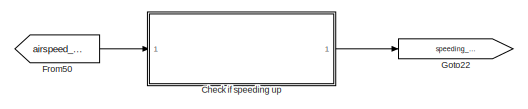
[diagram: root canvas - part 1/7, top left region]
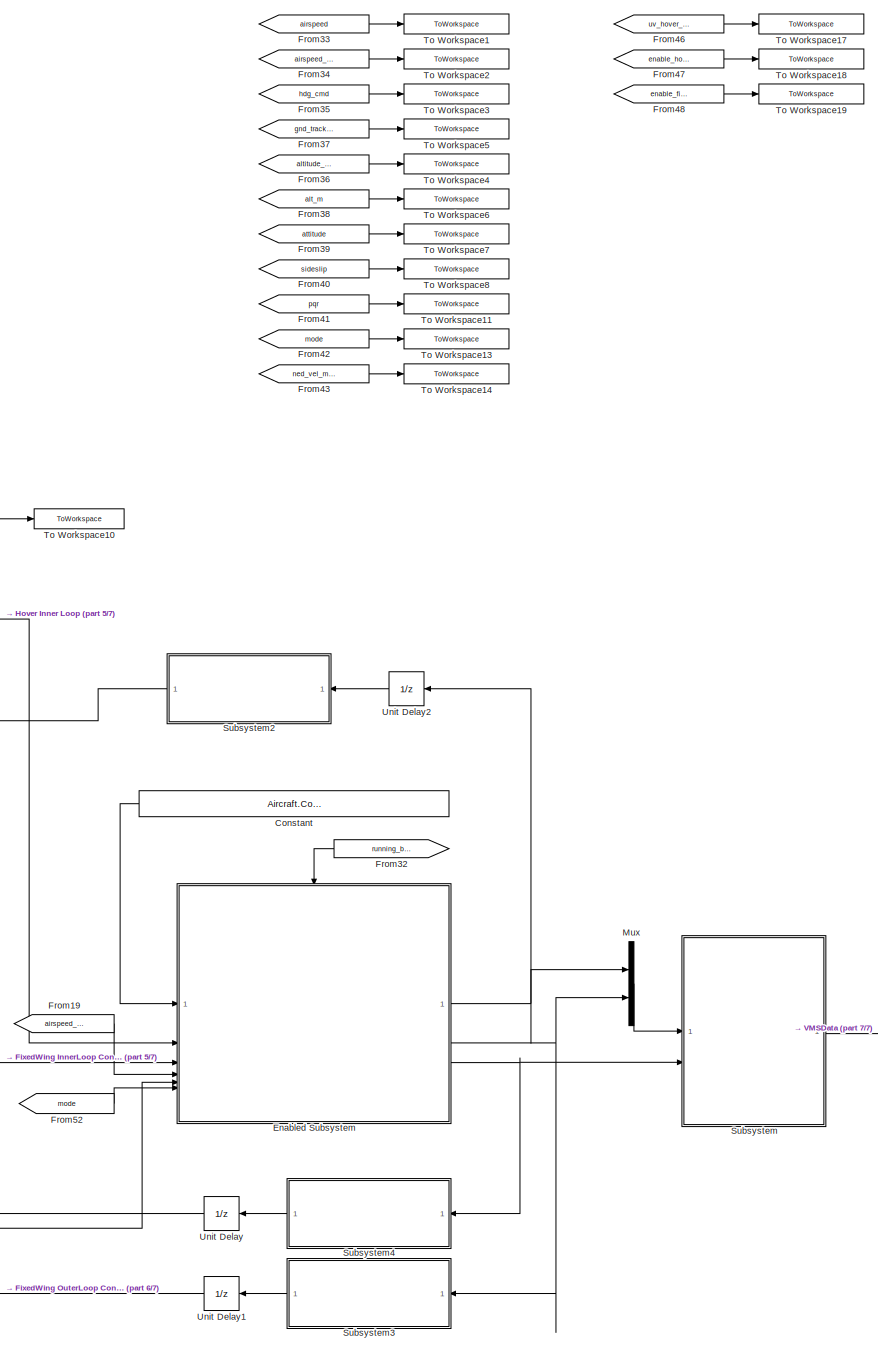
[diagram: root canvas - part 2/7, right side, full height]
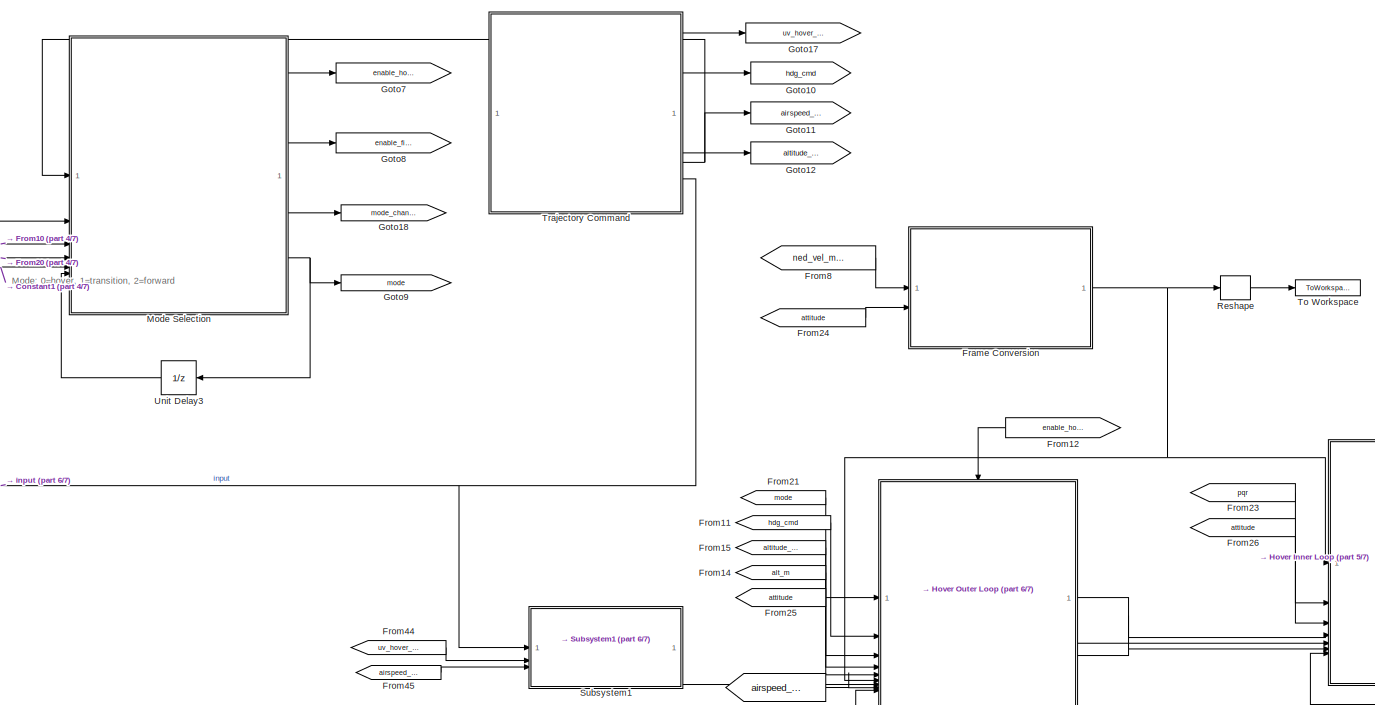
[diagram: root canvas - part 3/7, central region]
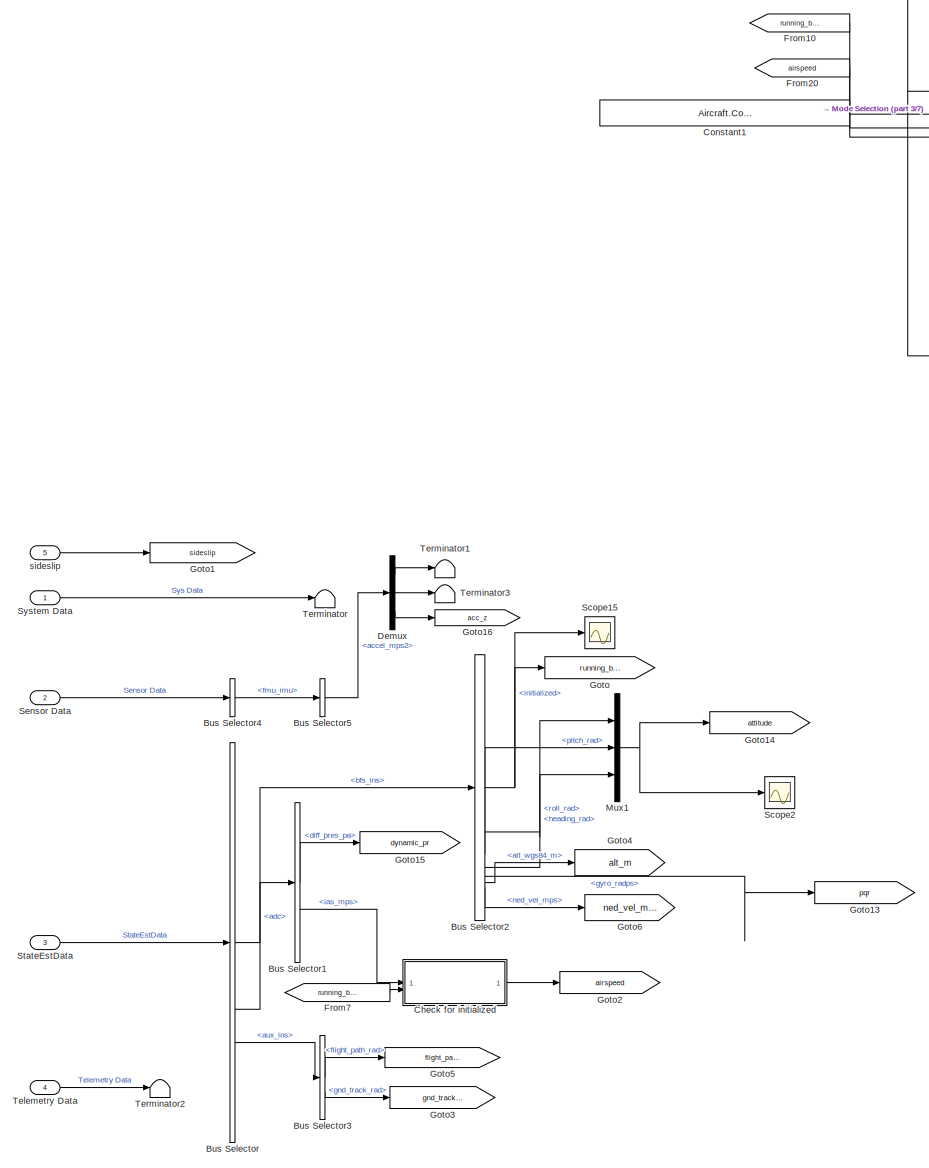
[diagram: root canvas - part 4/7, left side, full height]
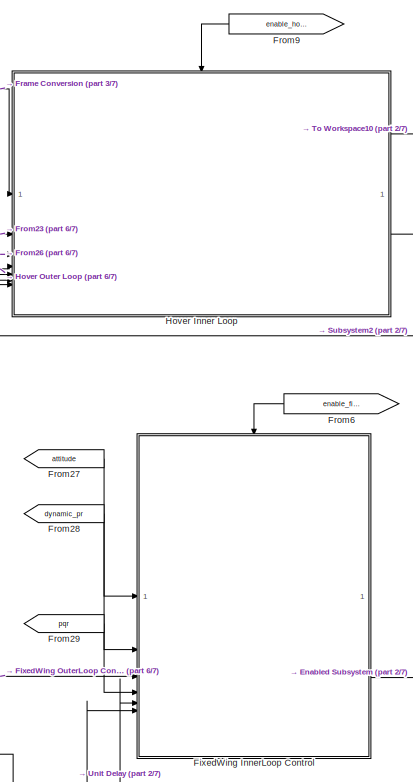
[diagram: root canvas - part 5/7, middle right region]
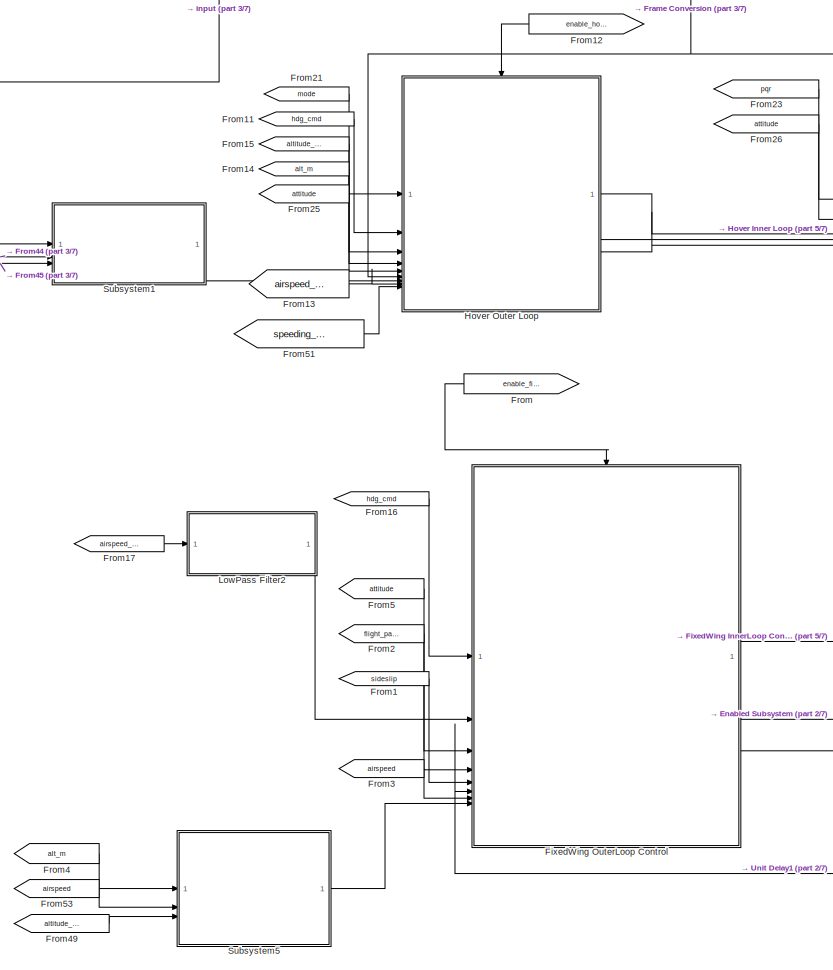
[diagram: root canvas - part 6/7, bottom center region]
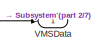
[diagram: root canvas - part 7/7, bottom right region]
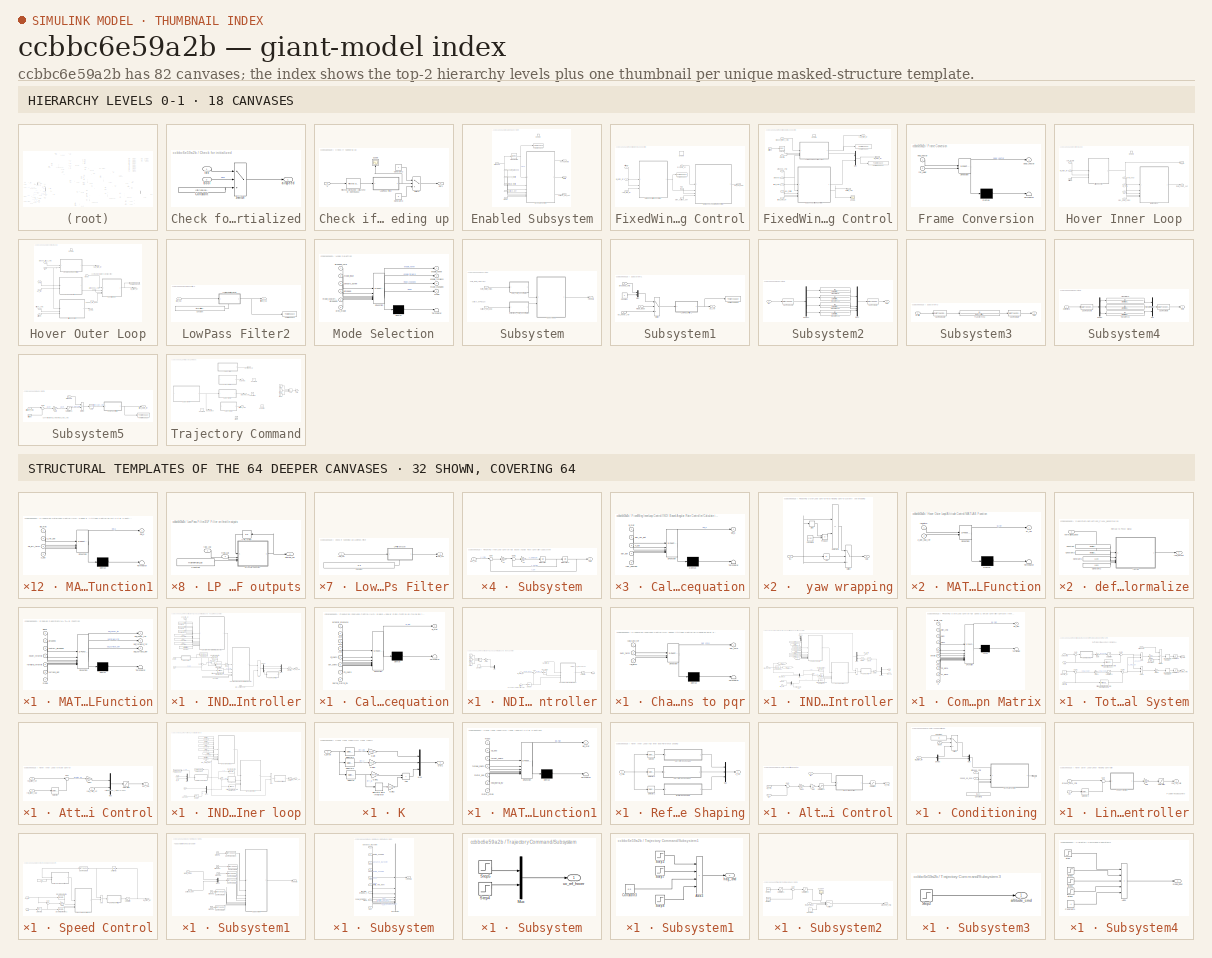
[diagram: thumbnail index - top-2 hierarchy levels (18 canvases) + 32 structural-template representatives of the remaining 64 canvases]
MODEL slx_ccbbc6e59a2b
KIND model
CONFIG AbsTol = auto
CONFIG EnableMultiTasking = off
CONFIG FixedStep = 0.001
CONFIG MaxStep = auto
CONFIG MinStep = auto
CONFIG RelTol = 1e-3
CONFIG SampleTimeConstraint = Unconstrained
CONFIG SolverName = FixedStepAuto
CONFIG StartTime = 0.0
CONFIG StopTime = 10.0
BLOCK [BusSelector] Bus Selector
  OutputSignals = bfs_ins,adc,aux_ins
BLOCK [BusSelector] Bus Selector1
  OutputSignals = diff_pres_pa,ias_mps
BLOCK [BusSelector] Bus Selector2
  OutputSignals = initialized,roll_rad,pitch_rad,heading_rad,gyro_radps,alt_wgs84_m,ned_vel_mps
BLOCK [BusSelector] Bus Selector3
  OutputSignals = flight_path_rad,gnd_track_rad
BLOCK [BusSelector] Bus Selector4
  OutputSignals = fmu_imu
BLOCK [BusSelector] Bus Selector5
  OutputSignals = accel_mps2
BLOCK [SubSystem] Check for initialized
BLOCK [Constant] Check for initialized/Constant
  OutDataTypeStr = single
  Value = InitCond.body_vel_mps(1)
BLOCK [Switch] Check for initialized/Switch
  Criteria = u2 > Threshold
  InputSameDT = off
  SaturateOnIntegerOverflow = off
BLOCK [Outport] Check for initialized/airspeed
BLOCK [Inport] Check for initialized/bool
  Port = 2
BLOCK [Inport] Check for initialized/ias
BLOCK [SubSystem] Check if speeding up
BLOCK [Constant] Check if speeding up/Constant2
  OutDataTypeStr = single
BLOCK [Constant] Check if speeding up/Constant3
  OutDataTypeStr = single
  Value = 0
BLOCK [Reference] Check if speeding up/Filtered Derivative (Discrete or Continuous)  REF=eeGeneralControl/Filtered Derivative
(Discrete or Continuous)
  LibrarySourceBlock = ee_sl_lib/General Control/Filtered Derivative\n(Discrete or Continuous)
  SourceBlock = eeGeneralControl/Filtered Derivative\n(Discrete or Continuous)
  SourceType = Filtered Derivative (Discrete or Continuous)
BLOCK [SubSystem] Check if speeding up/LowPass Filter
BLOCK [Constant] Check if speeding up/LowPass Filter/Constant
  OutDataTypeStr = single
  Value = 0.5
BLOCK [SubSystem] Check if speeding up/LowPass Filter/LP Filter on Accel
  NameLocation = top
  PortSchema = {"entries":[{"content":{"sides":[{"content":{"connectorIds":["In1"]},"type":"ConnectorPlacement.EquallySpacedRectSide","uuid":"20236834-aeb3-4c5b-bb2e-f84447e752b5"},{"content":{"connectorIds":["Out1"],"side":"RIGHT"},"type":"ConnectorPlacement.EquallySpacedRectSide","uuid":"d668f9a1-a3df-4207-8bf1-99fb838e59b2"},{"content":{"connectorIds":[],"side":"TOP"},"type":"ConnectorPlacement.EquallySpacedR...<+389ch>  <repeated x8 — deduplicated; at blocks: LP Filter on Accel, LP Filter on throttle outputs>
BLOCK [Constant] Check if speeding up/LowPass Filter/LP Filter on Accel/Constant
  OutDataTypeStr = single
  Value = frameRate_hz
BLOCK [SubSystem] Check if speeding up/LowPass Filter/LP Filter on Accel/MATLAB Function
  ErrorFcn = Stateflow.Translate.translate
  PermitHierarchicalResolution = ExplicitOnly
  SFBlockType = MATLAB Function
  TreatAsAtomicUnit = on
BLOCK [Demux] Check if speeding up/LowPass Filter/LP Filter on Accel/MATLAB Function/ Demux 
  Outputs = 1
BLOCK [S-Function] Check if speeding up/LowPass Filter/LP Filter on Accel/MATLAB Function/ SFunction 
  EnableBusSupport = on
  FunctionName = sf_sfun
  PortCounts = [4 2]
  SFcnIsStateOwnerBlock = off
  SFunctionDeploymentMode = off
  Tag = Stateflow S-Function 17
BLOCK [Terminator] Check if speeding up/LowPass Filter/LP Filter on Accel/MATLAB Function/ Terminator 
BLOCK [Outport] Check if speeding up/LowPass Filter/LP Filter on Accel/MATLAB Function/filtered_val
BLOCK [Inport] Check if speeding up/LowPass Filter/LP Filter on Accel/MATLAB Function/freq_cut
  Port = 3
BLOCK [Inport] Check if speeding up/LowPass Filter/LP Filter on Accel/MATLAB Function/prev_val
BLOCK [Inport] Check if speeding up/LowPass Filter/LP Filter on Accel/MATLAB Function/raw_val
  Port = 2
BLOCK [Inport] Check if speeding up/LowPass Filter/LP Filter on Accel/MATLAB Function/samp_freq
  Port = 4
BLOCK [UnitDelay] Check if speeding up/LowPass Filter/LP Filter on Accel/Unit Delay
  HasFrameUpgradeWarning = on
  NameLocation = top
  SampleTime = -1
BLOCK [Outport] Check if speeding up/LowPass Filter/LP Filter on Accel/filtered_val
BLOCK [Inport] Check if speeding up/LowPass Filter/LP Filter on Accel/freq_cut
  Port = 2
BLOCK [Inport] Check if speeding up/LowPass Filter/LP Filter on Accel/raw_val
BLOCK [Outport] Check if speeding up/LowPass Filter/filtered_val
BLOCK [Inport] Check if speeding up/LowPass Filter/raw_val
BLOCK [Outport] Check if speeding up/Out1
BLOCK [Scope] Check if speeding up/Scope
  Floating = off
  NameLocation = right
  NumInputPorts = 1
  ScopeSpecificationString = Simulink.scopes.TimeScopeBlockCfg('CurrentConfiguration', extmgr.ConfigurationSet(extmgr.Configuration('Core','General UI',true),extmgr.Configuration('Core','Source UI',true),extmgr.Configuration('Sources','WiredSimulink',true,'DataLoggingVariableName','ScopeData2'),extmgr.Configuration('Visuals','Time Domain',true,'SerializedDisplays',{struct('MinYLimReal','-1.78154','MaxYLimReal','3.5313','YLabe...<+1447ch>
BLOCK [Switch] Check if speeding up/Switch
  Criteria = u2 > Threshold
  InputSameDT = off
  SaturateOnIntegerOverflow = off
BLOCK [Inport] Check if speeding up/u
BLOCK [Constant] Constant
  NameLocation = top
  Value = Aircraft.Control.modes_v2.throttle_min_speed
BLOCK [Constant] Constant1
  Value = Aircraft.Control.modes.mode_shutoff_airspeeds
BLOCK [Demux] Demux
  Outputs = 3
BLOCK [SubSystem] Enabled Subsystem
  TreatAsAtomicUnit = on
BLOCK [EnablePort] Enabled Subsystem/Enable
BLOCK [SubSystem] Enabled Subsystem/MATLAB Function
  ErrorFcn = Stateflow.Translate.translate
  LibrarySourceBlock = simulink/User-Defined\nFunctions/MATLAB Function
  PermitHierarchicalResolution = ExplicitOnly
  SFBlockType = MATLAB Function
  TreatAsAtomicUnit = on
BLOCK [Demux] Enabled Subsystem/MATLAB Function/ Demux 
  Outputs = 1
BLOCK [S-Function] Enabled Subsystem/MATLAB Function/ SFunction 
  EnableBusSupport = on
  FunctionName = sf_sfun
  PortCounts = [7 4]
  SFcnIsStateOwnerBlock = off
  SFunctionDeploymentMode = off
  Tag = Stateflow S-Function 23
BLOCK [Terminator] Enabled Subsystem/MATLAB Function/ Terminator 
BLOCK [Outport] Enabled Subsystem/MATLAB Function/adj_forward_thr
  Port = 2
BLOCK [Outport] Enabled Subsystem/MATLAB Function/adj_hover_thr
BLOCK [Outport] Enabled Subsystem/MATLAB Function/adj_surface_def
  Port = 3
BLOCK [Inport] Enabled Subsystem/MATLAB Function/airspeed
  Port = 2
BLOCK [Inport] Enabled Subsystem/MATLAB Function/alpha
BLOCK [Inport] Enabled Subsystem/MATLAB Function/forward_throttle
  Port = 5
BLOCK [Inport] Enabled Subsystem/MATLAB Function/hover_throttle
  Port = 4
BLOCK [Inport] Enabled Subsystem/MATLAB Function/mode
  Port = 7
BLOCK [Inport] Enabled Subsystem/MATLAB Function/shutoff_airspeed
  Port = 3
BLOCK [Inport] Enabled Subsystem/MATLAB Function/surface_def
  Port = 6
BLOCK [Reference] Enabled Subsystem/Sigmoidal MF  REF=fuzblock/Membership   (lib defined in mdl_858b3b3e7478)
Functions/Sigmoidal MF
  SourceBlock = fuzblock/Membership \nFunctions/Sigmoidal MF
  SourceType = Sigmoidal membership function
BLOCK [ToWorkspace] Enabled Subsystem/To Workspace
  FixptAsFi = on
  MaxDataPoints = inf
  SampleTime = -1
  SaveFormat = Timeseries
  VariableName = hover_weight
BLOCK [Inport] Enabled Subsystem/airspeed
  Port = 4
BLOCK [Inport] Enabled Subsystem/forward_throttle
  Port = 5
BLOCK [Outport] Enabled Subsystem/hover_motors
BLOCK [Inport] Enabled Subsystem/hover_throttle
  Port = 2
BLOCK [Inport] Enabled Subsystem/mode
  Port = 6
BLOCK [Inport] Enabled Subsystem/shutoff_airspeed
BLOCK [Inport] Enabled Subsystem/surface_def
  Port = 3
BLOCK [Outport] Enabled Subsystem/surface_def_out
  Port = 3
BLOCK [Outport] Enabled Subsystem/throttle
  Port = 2
BLOCK [SubSystem] FixedWing InnerLoop Control
  TreatAsAtomicUnit = on
BLOCK [EnablePort] FixedWing InnerLoop Control/Enable
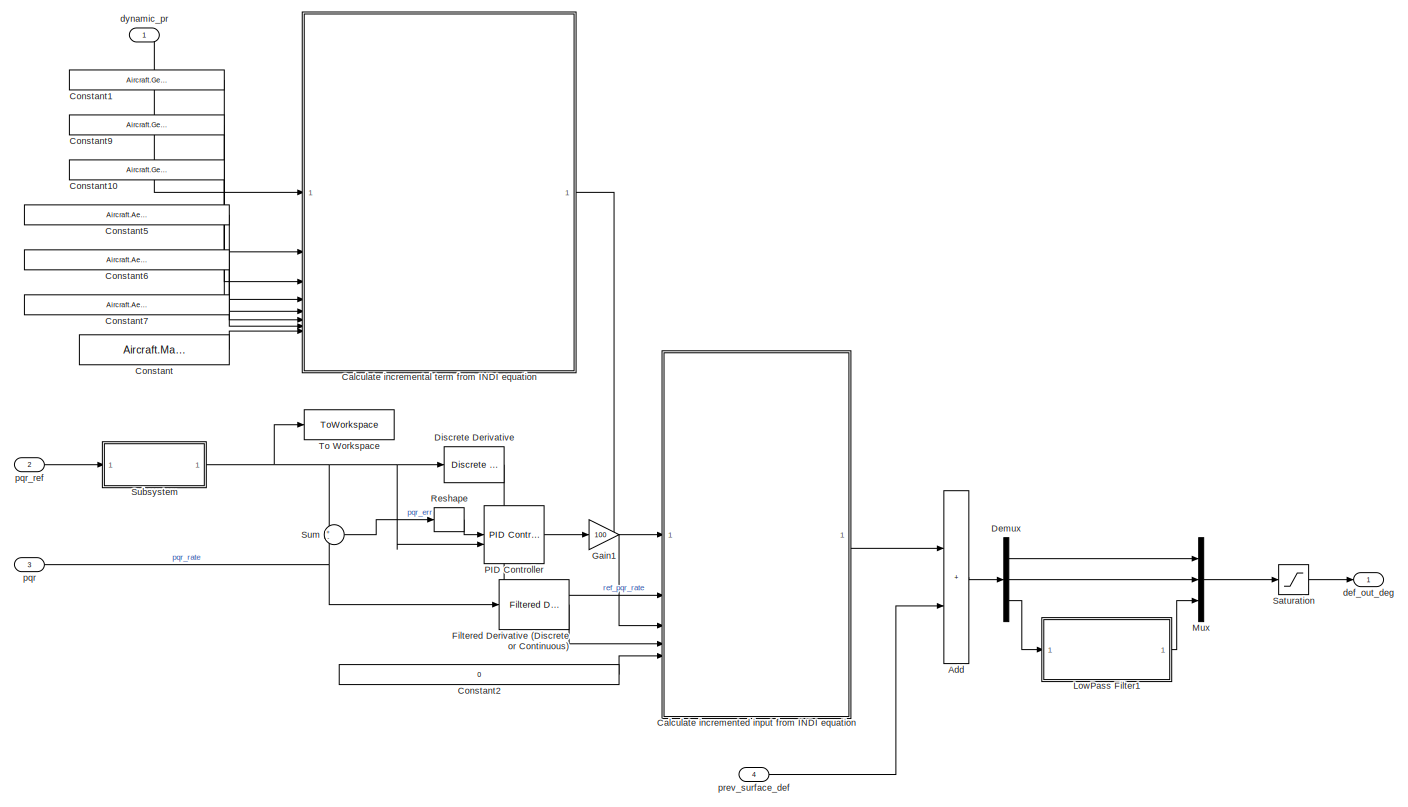
[diagram: FixedWing InnerLoop Control/INDI Based Angular Rate Controller - part 1/1, most of the canvas]
BLOCK [SubSystem] FixedWing InnerLoop Control/INDI Based Angular Rate Controller
BLOCK [Sum] FixedWing InnerLoop Control/INDI Based Angular Rate Controller/Add
  IconShape = rectangular
  OutDataTypeStr = single
BLOCK [SubSystem] FixedWing InnerLoop Control/INDI Based Angular Rate Controller/Calculate incremental term from INDI equation
  ErrorFcn = Stateflow.Translate.translate
  LibrarySourceBlock = simulink/User-Defined\nFunctions/MATLAB Function
  PermitHierarchicalResolution = ExplicitOnly
  SFBlockType = MATLAB Function
  TreatAsAtomicUnit = on
BLOCK [Demux] FixedWing InnerLoop Control/INDI Based Angular Rate Controller/Calculate incremental term from INDI equation/ Demux 
  Outputs = 1
BLOCK [S-Function] FixedWing InnerLoop Control/INDI Based Angular Rate Controller/Calculate incremental term from INDI equation/ SFunction 
  EnableBusSupport = on
  FunctionName = sf_sfun
  PortCounts = [8 2]
  SFcnIsStateOwnerBlock = off
  SFunctionDeploymentMode = off
  Tag = Stateflow S-Function 10
BLOCK [Terminator] FixedWing InnerLoop Control/INDI Based Angular Rate Controller/Calculate incremental term from INDI equation/ Terminator 
BLOCK [Outport] FixedWing InnerLoop Control/INDI Based Angular Rate Controller/Calculate incremental term from INDI equation/B_mat
BLOCK [Inport] FixedWing InnerLoop Control/INDI Based Angular Rate Controller/Calculate incremental term from INDI equation/Cl_coefs
  Port = 5
BLOCK [Inport] FixedWing InnerLoop Control/INDI Based Angular Rate Controller/Calculate incremental term from INDI equation/Cm_coefs
  Port = 6
BLOCK [Inport] FixedWing InnerLoop Control/INDI Based Angular Rate Controller/Calculate incremental term from INDI equation/Cn_coefs
  Port = 7
BLOCK [Inport] FixedWing InnerLoop Control/INDI Based Angular Rate Controller/Calculate incremental term from INDI equation/Sref
  Port = 2
BLOCK [Inport] FixedWing InnerLoop Control/INDI Based Angular Rate Controller/Calculate incremental term from INDI equation/bref
  Port = 3
BLOCK [Inport] FixedWing InnerLoop Control/INDI Based Angular Rate Controller/Calculate incremental term from INDI equation/cref
  Port = 4
BLOCK [Inport] FixedWing InnerLoop Control/INDI Based Angular Rate Controller/Calculate incremental term from INDI equation/dynamic_pressure
BLOCK [Inport] FixedWing InnerLoop Control/INDI Based Angular Rate Controller/Calculate incremental term from INDI equation/inertia_matrix_inv
  Port = 8
BLOCK [SubSystem] FixedWing InnerLoop Control/INDI Based Angular Rate Controller/Calculate incremented input from INDI equation
  ErrorFcn = Stateflow.Translate.translate
  LibrarySourceBlock = simulink/User-Defined\nFunctions/MATLAB Function
  PermitHierarchicalResolution = ExplicitOnly
  SFBlockType = MATLAB Function
  TreatAsAtomicUnit = on
BLOCK [Demux] FixedWing InnerLoop Control/INDI Based Angular Rate Controller/Calculate incremented input from INDI equation/ Demux 
  Outputs = 1
BLOCK [S-Function] FixedWing InnerLoop Control/INDI Based Angular Rate Controller/Calculate incremented input from INDI equation/ SFunction 
  EnableBusSupport = on
  FunctionName = sf_sfun
  PortCounts = [5 2]
  SFcnIsStateOwnerBlock = off
  SFunctionDeploymentMode = off
  Tag = Stateflow S-Function 3
BLOCK [Terminator] FixedWing InnerLoop Control/INDI Based Angular Rate Controller/Calculate incremented input from INDI equation/ Terminator 
BLOCK [Inport] FixedWing InnerLoop Control/INDI Based Angular Rate Controller/Calculate incremented input from INDI equation/B_mat
BLOCK [Inport] FixedWing InnerLoop Control/INDI Based Angular Rate Controller/Calculate incremented input from INDI equation/K_out
  Port = 3
BLOCK [Outport] FixedWing InnerLoop Control/INDI Based Angular Rate Controller/Calculate incremented input from INDI equation/del_u
BLOCK [Inport] FixedWing InnerLoop Control/INDI Based Angular Rate Controller/Calculate incremented input from INDI equation/pqr_dot
  Port = 4
BLOCK [Inport] FixedWing InnerLoop Control/INDI Based Angular Rate Controller/Calculate incremented input from INDI equation/pqr_ref_dot
  Port = 2
BLOCK [Inport] FixedWing InnerLoop Control/INDI Based Angular Rate Controller/Calculate incremented input from INDI equation/yaw_damper
  Port = 5
BLOCK [Constant] FixedWing InnerLoop Control/INDI Based Angular Rate Controller/Constant
  OutDataTypeStr = single
  Value = Aircraft.Mass.inertia_inv
BLOCK [Constant] FixedWing InnerLoop Control/INDI Based Angular Rate Controller/Constant1
  OutDataTypeStr = single
  Value = Aircraft.Geom.s_m2
BLOCK [Constant] FixedWing InnerLoop Control/INDI Based Angular Rate Controller/Constant10
  OutDataTypeStr = single
  Value = Aircraft.Geom.c_m
BLOCK [Constant] FixedWing InnerLoop Control/INDI Based Angular Rate Controller/Constant2
  OutDataTypeStr = single
  Value = 0
BLOCK [Constant] FixedWing InnerLoop Control/INDI Based Angular Rate Controller/Constant5
  OutDataTypeStr = single
  Value = Aircraft.Aero.Cl_coefs
BLOCK [Constant] FixedWing InnerLoop Control/INDI Based Angular Rate Controller/Constant6
  OutDataTypeStr = single
  Value = Aircraft.Aero.Cm_coefs
BLOCK [Constant] FixedWing InnerLoop Control/INDI Based Angular Rate Controller/Constant7
  OutDataTypeStr = single
  Value = Aircraft.Aero.Cn_coefs
BLOCK [Constant] FixedWing InnerLoop Control/INDI Based Angular Rate Controller/Constant9
  OutDataTypeStr = single
  Value = Aircraft.Geom.b_m
BLOCK [Demux] FixedWing InnerLoop Control/INDI Based Angular Rate Controller/Demux
  Outputs = 3
BLOCK [Reference] FixedWing InnerLoop Control/INDI Based Angular Rate Controller/Discrete Derivative  REF=simulink/Discrete/Discrete Derivative
  SourceBlock = simulink/Discrete/Discrete Derivative
  SourceType = Discrete Derivative
BLOCK [Reference] FixedWing InnerLoop Control/INDI Based Angular Rate Controller/Filtered Derivative (Discrete or Continuous)  REF=eeGeneralControl/Filtered Derivative
(Discrete or Continuous)
  LibrarySourceBlock = ee_sl_lib/General Control/Filtered Derivative\n(Discrete or Continuous)
  SourceBlock = eeGeneralControl/Filtered Derivative\n(Discrete or Continuous)
  SourceType = Filtered Derivative (Discrete or Continuous)
BLOCK [Gain] FixedWing InnerLoop Control/INDI Based Angular Rate Controller/Gain1
  Gain = 100
BLOCK [SubSystem] FixedWing InnerLoop Control/INDI Based Angular Rate Controller/LowPass Filter1
  NameLocation = top
  PortSchema = {"entries":[{"content":{"sides":[{"content":{"connectorIds":["Out1"]},"type":"ConnectorPlacement.EquallySpacedRectSide","uuid":"91cc3e13-2b14-472d-8884-d1975898cd34"},{"content":{"connectorIds":["In1"],"side":"RIGHT"},"type":"ConnectorPlacement.EquallySpacedRectSide","uuid":"ce6b3021-6e32-4737-8c8e-25014706d3dd"},{"content":{"side":"TOP"},"type":"ConnectorPlacement.EquallySpacedRectSide","uuid":"a...<+348ch>  <repeated x6 — deduplicated; at blocks: LowPass Filter1, LowPass Filter2>
BLOCK [Constant] FixedWing InnerLoop Control/INDI Based Angular Rate Controller/LowPass Filter1/Constant
BLOCK [SubSystem] FixedWing InnerLoop Control/INDI Based Angular Rate Controller/LowPass Filter1/LP Filter on throttle outputs
  NameLocation = top
BLOCK [Constant] FixedWing InnerLoop Control/INDI Based Angular Rate Controller/LowPass Filter1/LP Filter on throttle outputs/Constant
  OutDataTypeStr = single
  Value = frameRate_hz
BLOCK [SubSystem] FixedWing InnerLoop Control/INDI Based Angular Rate Controller/LowPass Filter1/LP Filter on throttle outputs/MATLAB Function
  ErrorFcn = Stateflow.Translate.translate
  PermitHierarchicalResolution = ExplicitOnly
  SFBlockType = MATLAB Function
  TreatAsAtomicUnit = on
BLOCK [Demux] FixedWing InnerLoop Control/INDI Based Angular Rate Controller/LowPass Filter1/LP Filter on throttle outputs/MATLAB Function/ Demux 
  Outputs = 1
BLOCK [S-Function] FixedWing InnerLoop Control/INDI Based Angular Rate Controller/LowPass Filter1/LP Filter on throttle outputs/MATLAB Function/ SFunction 
  EnableBusSupport = on
  FunctionName = sf_sfun
  PortCounts = [4 2]
  SFcnIsStateOwnerBlock = off
  SFunctionDeploymentMode = off
  Tag = Stateflow S-Function 13
BLOCK [Terminator] FixedWing InnerLoop Control/INDI Based Angular Rate Controller/LowPass Filter1/LP Filter on throttle outputs/MATLAB Function/ Terminator 
BLOCK [Outport] FixedWing InnerLoop Control/INDI Based Angular Rate Controller/LowPass Filter1/LP Filter on throttle outputs/MATLAB Function/filtered_val
BLOCK [Inport] FixedWing InnerLoop Control/INDI Based Angular Rate Controller/LowPass Filter1/LP Filter on throttle outputs/MATLAB Function/freq_cut
  Port = 3
BLOCK [Inport] FixedWing InnerLoop Control/INDI Based Angular Rate Controller/LowPass Filter1/LP Filter on throttle outputs/MATLAB Function/prev_val
BLOCK [Inport] FixedWing InnerLoop Control/INDI Based Angular Rate Controller/LowPass Filter1/LP Filter on throttle outputs/MATLAB Function/raw_val
  Port = 2
BLOCK [Inport] FixedWing InnerLoop Control/INDI Based Angular Rate Controller/LowPass Filter1/LP Filter on throttle outputs/MATLAB Function/samp_freq
  Port = 4
BLOCK [UnitDelay] FixedWing InnerLoop Control/INDI Based Angular Rate Controller/LowPass Filter1/LP Filter on throttle outputs/Unit Delay
  HasFrameUpgradeWarning = on
  NameLocation = top
  SampleTime = -1
BLOCK [Outport] FixedWing InnerLoop Control/INDI Based Angular Rate Controller/LowPass Filter1/LP Filter on throttle outputs/filtered_val
BLOCK [Inport] FixedWing InnerLoop Control/INDI Based Angular Rate Controller/LowPass Filter1/LP Filter on throttle outputs/freq_cut
  Port = 2
BLOCK [Inport] FixedWing InnerLoop Control/INDI Based Angular Rate Controller/LowPass Filter1/LP Filter on throttle outputs/raw_val
BLOCK [Outport] FixedWing InnerLoop Control/INDI Based Angular Rate Controller/LowPass Filter1/filtered_val
BLOCK [Inport] FixedWing InnerLoop Control/INDI Based Angular Rate Controller/LowPass Filter1/raw_val
BLOCK [Mux] FixedWing InnerLoop Control/INDI Based Angular Rate Controller/Mux
  DisplayOption = bar
  Inputs = 3
BLOCK [Reference] FixedWing InnerLoop Control/INDI Based Angular Rate Controller/PID Controller  REF=slpidlib/PID Controller
  LibrarySourceBlock = simulink/Continuous/PID Controller
  SourceBlock = slpidlib/PID Controller
  SourceType = PID 1dof
BLOCK [Reshape] FixedWing InnerLoop Control/INDI Based Angular Rate Controller/Reshape
BLOCK [Saturate] FixedWing InnerLoop Control/INDI Based Angular Rate Controller/Saturation
  LowerLimit = Aircraft.Surf.Limit.neg_deg
  OutDataTypeStr = single
  UpperLimit = Aircraft.Surf.Limit.pos_deg
BLOCK [SubSystem] FixedWing InnerLoop Control/INDI Based Angular Rate Controller/Subsystem
BLOCK [Integrator] FixedWing InnerLoop Control/INDI Based Angular Rate Controller/Subsystem/Integrator
BLOCK [Integrator] FixedWing InnerLoop Control/INDI Based Angular Rate Controller/Subsystem/Integrator1
BLOCK [Gain] FixedWing InnerLoop Control/INDI Based Angular Rate Controller/Subsystem/K1
  Gain = Aircraft.Control.Forward_v2.pqr_ref_k1_k2(1)
BLOCK [Gain] FixedWing InnerLoop Control/INDI Based Angular Rate Controller/Subsystem/K2
  Gain = Aircraft.Control.Forward_v2.pqr_ref_k1_k2(2)
BLOCK [Outport] FixedWing InnerLoop Control/INDI Based Angular Rate Controller/Subsystem/Out1
BLOCK [Sum] FixedWing InnerLoop Control/INDI Based Angular Rate Controller/Subsystem/Sum
  Inputs = |+-
BLOCK [Sum] FixedWing InnerLoop Control/INDI Based Angular Rate Controller/Subsystem/Sum1
  Inputs = |+-
BLOCK [Inport] FixedWing InnerLoop Control/INDI Based Angular Rate Controller/Subsystem/pqr_ref
BLOCK [Sum] FixedWing InnerLoop Control/INDI Based Angular Rate Controller/Sum
  Inputs = +-
BLOCK [ToWorkspace] FixedWing InnerLoop Control/INDI Based Angular Rate Controller/To Workspace
  FixptAsFi = on
  MaxDataPoints = inf
  SampleTime = -1
  SaveFormat = Timeseries
  VariableName = forward_pqr_ref
BLOCK [Outport] FixedWing InnerLoop Control/INDI Based Angular Rate Controller/def_out_deg
BLOCK [Inport] FixedWing InnerLoop Control/INDI Based Angular Rate Controller/dynamic_pr
BLOCK [Inport] FixedWing InnerLoop Control/INDI Based Angular Rate Controller/pqr
  Port = 3
BLOCK [Inport] FixedWing InnerLoop Control/INDI Based Angular Rate Controller/pqr_ref
  Port = 2
BLOCK [Inport] FixedWing InnerLoop Control/INDI Based Angular Rate Controller/prev_surface_def
  Port = 4
BLOCK [SubSystem] FixedWing InnerLoop Control/NDI based Attitude Controller
BLOCK [Sum] FixedWing InnerLoop Control/NDI based Attitude Controller/Add1
  IconShape = rectangular
  Inputs = +++
BLOCK [SubSystem] FixedWing InnerLoop Control/NDI based Attitude Controller/Changing euler angle rates to pqr
  ErrorFcn = Stateflow.Translate.translate
  LibrarySourceBlock = simulink/User-Defined\nFunctions/MATLAB Function
  PermitHierarchicalResolution = ExplicitOnly
  SFBlockType = MATLAB Function
  TreatAsAtomicUnit = on
BLOCK [Demux] FixedWing InnerLoop Control/NDI based Attitude Controller/Changing euler angle rates to pqr/ Demux 
  Outputs = 1
BLOCK [S-Function] FixedWing InnerLoop Control/NDI based Attitude Controller/Changing euler angle rates to pqr/ SFunction 
  EnableBusSupport = on
  FunctionName = sf_sfun
  PortCounts = [3 2]
  SFcnIsStateOwnerBlock = off
  SFunctionDeploymentMode = off
  Tag = Stateflow S-Function 2
BLOCK [Terminator] FixedWing InnerLoop Control/NDI based Attitude Controller/Changing euler angle rates to pqr/ Terminator 
BLOCK [Outport] FixedWing InnerLoop Control/NDI based Attitude Controller/Changing euler angle rates to pqr/pqr_cmd
BLOCK [Inport] FixedWing InnerLoop Control/NDI based Attitude Controller/Changing euler angle rates to pqr/roll_pitch
  Port = 3
BLOCK [Inport] FixedWing InnerLoop Control/NDI based Attitude Controller/Changing euler angle rates to pqr/sum_term
  Port = 2
BLOCK [Inport] FixedWing InnerLoop Control/NDI based Attitude Controller/Changing euler angle rates to pqr/yaw_rate_ref
BLOCK [Constant] FixedWing InnerLoop Control/NDI based Attitude Controller/Constant
  OutDataTypeStr = single
  Value = 0
BLOCK [Gain] FixedWing InnerLoop Control/NDI based Attitude Controller/Gain2
  Gain = 0.3
BLOCK [Mux] FixedWing InnerLoop Control/NDI based Attitude Controller/Mux
  DisplayOption = bar
  Inputs = 2
BLOCK [Reference] FixedWing InnerLoop Control/NDI based Attitude Controller/PID Controller  REF=slpidlib/PID Controller
  LibrarySourceBlock = simulink/Continuous/PID Controller
  SourceBlock = slpidlib/PID Controller
  SourceType = PID 1dof
BLOCK [Saturate] FixedWing InnerLoop Control/NDI based Attitude Controller/Saturation
  LowerLimit = -Aircraft.Control.Forward.max_pqr_ref
  UpperLimit = Aircraft.Control.Forward.max_pqr_ref
BLOCK [Selector] FixedWing InnerLoop Control/NDI based Attitude Controller/Selector
  IndexOptions = Index vector (dialog)
  Indices = [1 2]
  InputPortWidth = 3
  OutputSizes = 1
BLOCK [Step] FixedWing InnerLoop Control/NDI based Attitude Controller/Step
  OutDataTypeStr = single
  SampleTime = 0
  Time = 3
BLOCK [Step] FixedWing InnerLoop Control/NDI based Attitude Controller/Step1
  After = -1
  Before = 1
  OutDataTypeStr = single
  SampleTime = 0
  Time = 7
BLOCK [Step] FixedWing InnerLoop Control/NDI based Attitude Controller/Step2
  After = 0
  Before = -1
  OutDataTypeStr = single
  SampleTime = 0
  Time = 11
BLOCK [Sum] FixedWing InnerLoop Control/NDI based Attitude Controller/Sum
  AccumDataTypeStr = single
  Inputs = |+-
BLOCK [Inport] FixedWing InnerLoop Control/NDI based Attitude Controller/attitude
BLOCK [Outport] FixedWing InnerLoop Control/NDI based Attitude Controller/pqr_ref
BLOCK [Inport] FixedWing InnerLoop Control/NDI based Attitude Controller/roll_pitch_ref
  Port = 2
BLOCK [Inport] FixedWing InnerLoop Control/NDI based Attitude Controller/yaw_rate_ref
  Port = 3
BLOCK [ToWorkspace] FixedWing InnerLoop Control/To Workspace
  FixptAsFi = on
  MaxDataPoints = inf
  SampleTime = -1
  SaveFormat = Timeseries
  VariableName = forward_pqr_cmd
BLOCK [Inport] FixedWing InnerLoop Control/attitude
BLOCK [Outport] FixedWing InnerLoop Control/def_out_deg
BLOCK [Inport] FixedWing InnerLoop Control/dynamic_pr
  Port = 2
BLOCK [Inport] FixedWing InnerLoop Control/pqr
  Port = 4
BLOCK [Inport] FixedWing InnerLoop Control/prev_surface_def
  Port = 5
BLOCK [Inport] FixedWing InnerLoop Control/roll_pitch_ref
  Port = 3
BLOCK [Inport] FixedWing InnerLoop Control/yaw_rate_ref
  Port = 6
BLOCK [SubSystem] FixedWing OuterLoop Control
  TreatAsAtomicUnit = on
BLOCK [EnablePort] FixedWing OuterLoop Control/Enable
BLOCK [Inport] FixedWing OuterLoop Control/Ground_track_cmd
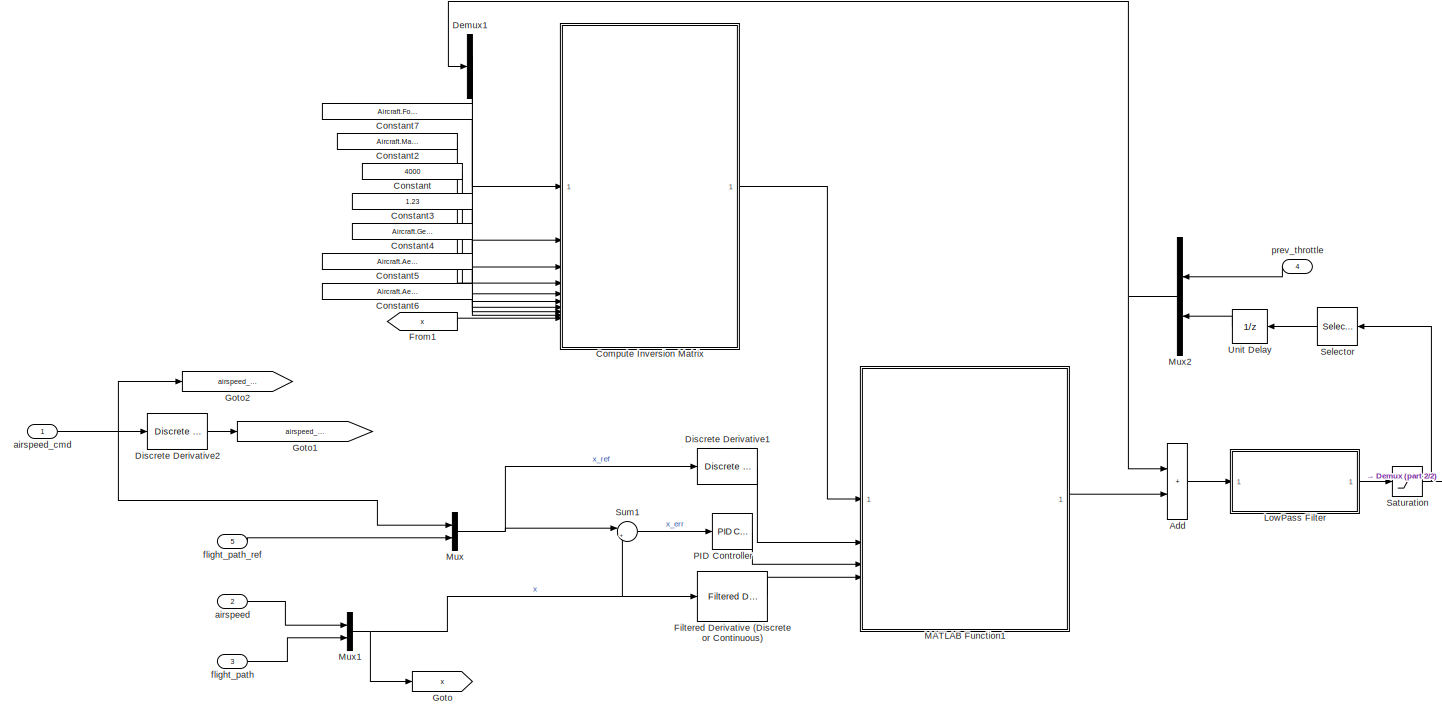
[diagram: FixedWing OuterLoop Control/INDI Speed & Altitude Controller - part 1/2, most of the canvas]
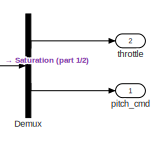
[diagram: FixedWing OuterLoop Control/INDI Speed & Altitude Controller - part 2/2, bottom right region]
BLOCK [SubSystem] FixedWing OuterLoop Control/INDI Speed & Altitude Controller
BLOCK [Sum] FixedWing OuterLoop Control/INDI Speed & Altitude Controller/Add
  IconShape = rectangular
  OutDataTypeStr = single
BLOCK [SubSystem] FixedWing OuterLoop Control/INDI Speed & Altitude Controller/Compute Inversion Matrix
  ErrorFcn = Stateflow.Translate.translate
  LibrarySourceBlock = simulink/User-Defined\nFunctions/MATLAB Function
  PermitHierarchicalResolution = ExplicitOnly
  SFBlockType = MATLAB Function
  TreatAsAtomicUnit = on
BLOCK [Demux] FixedWing OuterLoop Control/INDI Speed & Altitude Controller/Compute Inversion Matrix/ Demux 
  Outputs = 1
BLOCK [S-Function] FixedWing OuterLoop Control/INDI Speed & Altitude Controller/Compute Inversion Matrix/ SFunction 
  EnableBusSupport = on
  FunctionName = sf_sfun
  PortCounts = [10 2]
  SFcnIsStateOwnerBlock = off
  SFunctionDeploymentMode = off
  Tag = Stateflow S-Function 8
BLOCK [Terminator] FixedWing OuterLoop Control/INDI Speed & Altitude Controller/Compute Inversion Matrix/ Terminator 
BLOCK [Outport] FixedWing OuterLoop Control/INDI Speed & Altitude Controller/Compute Inversion Matrix/B0_mat
BLOCK [Inport] FixedWing OuterLoop Control/INDI Speed & Altitude Controller/Compute Inversion Matrix/CD_alpha
  Port = 8
BLOCK [Inport] FixedWing OuterLoop Control/INDI Speed & Altitude Controller/Compute Inversion Matrix/CL_alpha
  Port = 9
BLOCK [Inport] FixedWing OuterLoop Control/INDI Speed & Altitude Controller/Compute Inversion Matrix/Sref
  Port = 7
BLOCK [Inport] FixedWing OuterLoop Control/INDI Speed & Altitude Controller/Compute Inversion Matrix/density
  Port = 6
BLOCK [Inport] FixedWing OuterLoop Control/INDI Speed & Altitude Controller/Compute Inversion Matrix/diam
  Port = 3
BLOCK [Inport] FixedWing OuterLoop Control/INDI Speed & Altitude Controller/Compute Inversion Matrix/mass
  Port = 4
BLOCK [Inport] FixedWing OuterLoop Control/INDI Speed & Altitude Controller/Compute Inversion Matrix/pitch_cmd
  Port = 2
BLOCK [Inport] FixedWing OuterLoop Control/INDI Speed & Altitude Controller/Compute Inversion Matrix/rpm
  Port = 5
BLOCK [Inport] FixedWing OuterLoop Control/INDI Speed & Altitude Controller/Compute Inversion Matrix/throttle_cmd
BLOCK [Inport] FixedWing OuterLoop Control/INDI Speed & Altitude Controller/Compute Inversion Matrix/x
  Port = 10
BLOCK [Constant] FixedWing OuterLoop Control/INDI Speed & Altitude Controller/Constant
  OutDataTypeStr = single
  Value = 4000
BLOCK [Constant] FixedWing OuterLoop Control/INDI Speed & Altitude Controller/Constant2
  OutDataTypeStr = single
  Value = Aircraft.Mass.mass_kg
BLOCK [Constant] FixedWing OuterLoop Control/INDI Speed & Altitude Controller/Constant3
  OutDataTypeStr = single
  Value = 1.23
BLOCK [Constant] FixedWing OuterLoop Control/INDI Speed & Altitude Controller/Constant4
  OutDataTypeStr = single
  Value = Aircraft.Geom.s_m2
BLOCK [Constant] FixedWing OuterLoop Control/INDI Speed & Altitude Controller/Constant5
  OutDataTypeStr = single
  Value = Aircraft.Aero.CD_coefs(2)
BLOCK [Constant] FixedWing OuterLoop Control/INDI Speed & Altitude Controller/Constant6
  OutDataTypeStr = single
  Value = Aircraft.Aero.CL_coefs(2)
BLOCK [Constant] FixedWing OuterLoop Control/INDI Speed & Altitude Controller/Constant7
  OutDataTypeStr = single
  Value = Aircraft.ForwardProp.dia_in
BLOCK [Demux] FixedWing OuterLoop Control/INDI Speed & Altitude Controller/Demux
  Outputs = 2
BLOCK [Demux] FixedWing OuterLoop Control/INDI Speed & Altitude Controller/Demux1
  Outputs = 2
BLOCK [Reference] FixedWing OuterLoop Control/INDI Speed & Altitude Controller/Discrete Derivative1  REF=simulink/Discrete/Discrete Derivative
  SourceBlock = simulink/Discrete/Discrete Derivative
  SourceType = Discrete Derivative
BLOCK [Reference] FixedWing OuterLoop Control/INDI Speed & Altitude Controller/Discrete Derivative2  REF=simulink/Discrete/Discrete Derivative
  SourceBlock = simulink/Discrete/Discrete Derivative
  SourceType = Discrete Derivative
BLOCK [Reference] FixedWing OuterLoop Control/INDI Speed & Altitude Controller/Filtered Derivative (Discrete or Continuous)  REF=eeGeneralControl/Filtered Derivative
(Discrete or Continuous)
  LibrarySourceBlock = ee_sl_lib/General Control/Filtered Derivative\n(Discrete or Continuous)
  SourceBlock = eeGeneralControl/Filtered Derivative\n(Discrete or Continuous)
  SourceType = Filtered Derivative (Discrete or Continuous)
BLOCK [From] FixedWing OuterLoop Control/INDI Speed & Altitude Controller/From1
  GotoTag = x
BLOCK [Goto] FixedWing OuterLoop Control/INDI Speed & Altitude Controller/Goto
  GotoTag = x
BLOCK [Goto] FixedWing OuterLoop Control/INDI Speed & Altitude Controller/Goto1
  GotoTag = airspeed_cmd_dot
BLOCK [Goto] FixedWing OuterLoop Control/INDI Speed & Altitude Controller/Goto2
  GotoTag = airspeed_cmd
BLOCK [SubSystem] FixedWing OuterLoop Control/INDI Speed & Altitude Controller/LowPass Filter
BLOCK [Constant] FixedWing OuterLoop Control/INDI Speed & Altitude Controller/LowPass Filter/Constant
  OutDataTypeStr = single
  Value = [1.25, 0.75]
BLOCK [SubSystem] FixedWing OuterLoop Control/INDI Speed & Altitude Controller/LowPass Filter/LP Filter on Accel
  NameLocation = top
BLOCK [Constant] FixedWing OuterLoop Control/INDI Speed & Altitude Controller/LowPass Filter/LP Filter on Accel/Constant
  OutDataTypeStr = single
  Value = frameRate_hz
BLOCK [SubSystem] FixedWing OuterLoop Control/INDI Speed & Altitude Controller/LowPass Filter/LP Filter on Accel/MATLAB Function
  ErrorFcn = Stateflow.Translate.translate
  PermitHierarchicalResolution = ExplicitOnly
  SFBlockType = MATLAB Function
  TreatAsAtomicUnit = on
BLOCK [Demux] FixedWing OuterLoop Control/INDI Speed & Altitude Controller/LowPass Filter/LP Filter on Accel/MATLAB Function/ Demux 
  Outputs = 1
BLOCK [S-Function] FixedWing OuterLoop Control/INDI Speed & Altitude Controller/LowPass Filter/LP Filter on Accel/MATLAB Function/ SFunction 
  EnableBusSupport = on
  FunctionName = sf_sfun
  PortCounts = [4 2]
  SFcnIsStateOwnerBlock = off
  SFunctionDeploymentMode = off
  Tag = Stateflow S-Function 21
BLOCK [Terminator] FixedWing OuterLoop Control/INDI Speed & Altitude Controller/LowPass Filter/LP Filter on Accel/MATLAB Function/ Terminator 
BLOCK [Outport] FixedWing OuterLoop Control/INDI Speed & Altitude Controller/LowPass Filter/LP Filter on Accel/MATLAB Function/filtered_val
BLOCK [Inport] FixedWing OuterLoop Control/INDI Speed & Altitude Controller/LowPass Filter/LP Filter on Accel/MATLAB Function/freq_cut
  Port = 3
BLOCK [Inport] FixedWing OuterLoop Control/INDI Speed & Altitude Controller/LowPass Filter/LP Filter on Accel/MATLAB Function/prev_val
BLOCK [Inport] FixedWing OuterLoop Control/INDI Speed & Altitude Controller/LowPass Filter/LP Filter on Accel/MATLAB Function/raw_val
  Port = 2
BLOCK [Inport] FixedWing OuterLoop Control/INDI Speed & Altitude Controller/LowPass Filter/LP Filter on Accel/MATLAB Function/samp_freq
  Port = 4
BLOCK [UnitDelay] FixedWing OuterLoop Control/INDI Speed & Altitude Controller/LowPass Filter/LP Filter on Accel/Unit Delay
  HasFrameUpgradeWarning = on
  NameLocation = top
  SampleTime = -1
BLOCK [Outport] FixedWing OuterLoop Control/INDI Speed & Altitude Controller/LowPass Filter/LP Filter on Accel/filtered_val
BLOCK [Inport] FixedWing OuterLoop Control/INDI Speed & Altitude Controller/LowPass Filter/LP Filter on Accel/freq_cut
  Port = 2
BLOCK [Inport] FixedWing OuterLoop Control/INDI Speed & Altitude Controller/LowPass Filter/LP Filter on Accel/raw_val
BLOCK [Outport] FixedWing OuterLoop Control/INDI Speed & Altitude Controller/LowPass Filter/filtered_val
BLOCK [Inport] FixedWing OuterLoop Control/INDI Speed & Altitude Controller/LowPass Filter/raw_val
BLOCK [SubSystem] FixedWing OuterLoop Control/INDI Speed & Altitude Controller/MATLAB Function1
  ErrorFcn = Stateflow.Translate.translate
  LibrarySourceBlock = simulink/User-Defined\nFunctions/MATLAB Function
  PermitHierarchicalResolution = ExplicitOnly
  SFBlockType = MATLAB Function
  TreatAsAtomicUnit = on
BLOCK [Demux] FixedWing OuterLoop Control/INDI Speed & Altitude Controller/MATLAB Function1/ Demux 
  Outputs = 1
BLOCK [S-Function] FixedWing OuterLoop Control/INDI Speed & Altitude Controller/MATLAB Function1/ SFunction 
  EnableBusSupport = on
  FunctionName = sf_sfun
  PortCounts = [4 2]
  SFcnIsStateOwnerBlock = off
  SFunctionDeploymentMode = off
  Tag = Stateflow S-Function 12
BLOCK [Terminator] FixedWing OuterLoop Control/INDI Speed & Altitude Controller/MATLAB Function1/ Terminator 
BLOCK [Inport] FixedWing OuterLoop Control/INDI Speed & Altitude Controller/MATLAB Function1/B0_mat
BLOCK [Inport] FixedWing OuterLoop Control/INDI Speed & Altitude Controller/MATLAB Function1/Kp_err_term
  Port = 3
BLOCK [Outport] FixedWing OuterLoop Control/INDI Speed & Altitude Controller/MATLAB Function1/del_u
BLOCK [Inport] FixedWing OuterLoop Control/INDI Speed & Altitude Controller/MATLAB Function1/x_dot
  Port = 4
BLOCK [Inport] FixedWing OuterLoop Control/INDI Speed & Altitude Controller/MATLAB Function1/x_ref_dot
  Port = 2
BLOCK [Mux] FixedWing OuterLoop Control/INDI Speed & Altitude Controller/Mux
  DisplayOption = bar
  Inputs = 2
BLOCK [Mux] FixedWing OuterLoop Control/INDI Speed & Altitude Controller/Mux1
  DisplayOption = bar
  Inputs = 2
BLOCK [Mux] FixedWing OuterLoop Control/INDI Speed & Altitude Controller/Mux2
  DisplayOption = bar
  Inputs = 2
  NameLocation = top
BLOCK [Reference] FixedWing OuterLoop Control/INDI Speed & Altitude Controller/PID Controller  REF=slpidlib/PID Controller
  LibrarySourceBlock = simulink/Continuous/PID Controller
  SourceBlock = slpidlib/PID Controller
  SourceType = PID 1dof
BLOCK [Saturate] FixedWing OuterLoop Control/INDI Speed & Altitude Controller/Saturation
  LowerLimit = [0, -Aircraft.Control.Forward.max_pitch_rad]'
  UpperLimit = [1, Aircraft.Control.Forward.max_pitch_rad]'
BLOCK [Selector] FixedWing OuterLoop Control/INDI Speed & Altitude Controller/Selector
  IndexOptions = Index vector (dialog)
  Indices = 2
  InputPortWidth = 2
  NameLocation = top
  OutputSizes = 1
BLOCK [Sum] FixedWing OuterLoop Control/INDI Speed & Altitude Controller/Sum1
  Inputs = |+-
BLOCK [UnitDelay] FixedWing OuterLoop Control/INDI Speed & Altitude Controller/Unit Delay
  HasFrameUpgradeWarning = on
  NameLocation = top
  SampleTime = -1
BLOCK [Inport] FixedWing OuterLoop Control/INDI Speed & Altitude Controller/airspeed
  Port = 2
BLOCK [Inport] FixedWing OuterLoop Control/INDI Speed & Altitude Controller/airspeed_cmd
BLOCK [Inport] FixedWing OuterLoop Control/INDI Speed & Altitude Controller/flight_path
  Port = 3
BLOCK [Inport] FixedWing OuterLoop Control/INDI Speed & Altitude Controller/flight_path_ref
  Port = 5
BLOCK [Outport] FixedWing OuterLoop Control/INDI Speed & Altitude Controller/pitch_cmd
BLOCK [Inport] FixedWing OuterLoop Control/INDI Speed & Altitude Controller/prev_throttle
  NameLocation = top
  Port = 4
BLOCK [Outport] FixedWing OuterLoop Control/INDI Speed & Altitude Controller/throttle
  Port = 2
BLOCK [Mux] FixedWing OuterLoop Control/Mux
  DisplayOption = bar
  Inputs = 2
BLOCK [Scope] FixedWing OuterLoop Control/Scope
  Floating = off
  NumInputPorts = 1
  ScopeSpecificationString = Simulink.scopes.TimeScopeBlockCfg('CurrentConfiguration', extmgr.ConfigurationSet(extmgr.Configuration('Core','General UI',true),extmgr.Configuration('Core','Source UI',true),extmgr.Configuration('Sources','WiredSimulink',true,'DataLoggingVariableName','ScopeData4'),extmgr.Configuration('Visuals','Time Domain',true,'SerializedDisplays',{struct('MinYLimReal','0.30576','MaxYLimReal','1.07714','YLabe...<+1420ch>
BLOCK [Selector] FixedWing OuterLoop Control/Selector
  IndexOptions = Index vector (dialog)
  Indices = 3
  InputPortWidth = 3
  OutputSizes = 1
BLOCK [ToWorkspace] FixedWing OuterLoop Control/To Workspace
  FixptAsFi = on
  MaxDataPoints = inf
  SampleTime = -1
  SaveFormat = Timeseries
  VariableName = forward_yaw_ref_rate_cmd
BLOCK [ToWorkspace] FixedWing OuterLoop Control/To Workspace1
  FixptAsFi = on
  MaxDataPoints = inf
  SampleTime = -1
  SaveFormat = Timeseries
  VariableName = forward_attitude_cmd
BLOCK [SubSystem] FixedWing OuterLoop Control/Total Heading Control System
BLOCK [SubSystem] FixedWing OuterLoop Control/Total Heading Control System/ yaw wrapping
BLOCK [Abs] FixedWing OuterLoop Control/Total Heading Control System/ yaw wrapping/Abs
  SaturateOnIntegerOverflow = off
BLOCK [Constant] FixedWing OuterLoop Control/Total Heading Control System/ yaw wrapping/Constant1
  OutDataTypeStr = single
  Value = 2*pi
BLOCK [Inport] FixedWing OuterLoop Control/Total Heading Control System/ yaw wrapping/In1
BLOCK [Outport] FixedWing OuterLoop Control/Total Heading Control System/ yaw wrapping/Out1
BLOCK [Product] FixedWing OuterLoop Control/Total Heading Control System/ yaw wrapping/Product
BLOCK [Signum] FixedWing OuterLoop Control/Total Heading Control System/ yaw wrapping/Sign
BLOCK [Sum] FixedWing OuterLoop Control/Total Heading Control System/ yaw wrapping/Subtract1
  IconShape = rectangular
  Inputs = +-
BLOCK [Switch] FixedWing OuterLoop Control/Total Heading Control System/ yaw wrapping/Switch
  Criteria = u2 > Threshold
  InputSameDT = off
  SaturateOnIntegerOverflow = off
  Threshold = 3.1416
BLOCK [Sum] FixedWing OuterLoop Control/Total Heading Control System/Add
  IconShape = rectangular
BLOCK [Sum] FixedWing OuterLoop Control/Total Heading Control System/Add1
  IconShape = rectangular
  Inputs = +-
BLOCK [Constant] FixedWing OuterLoop Control/Total Heading Control System/Constant
  OutDataTypeStr = single
  Value = 9.81
BLOCK [DiscreteIntegrator] FixedWing OuterLoop Control/Total Heading Control System/Discrete-Time Integrator
  ICPrevOutput = DiscIntNeverNeededParam
  ICPrevScaledInput = DiscIntNeverNeededParam
  InitialConditionSetting = Auto
  SampleTime = -1
BLOCK [DiscreteIntegrator] FixedWing OuterLoop Control/Total Heading Control System/Discrete-Time Integrator1
  ICPrevOutput = DiscIntNeverNeededParam
  ICPrevScaledInput = DiscIntNeverNeededParam
  InitialConditionSetting = Auto
  SampleTime = -1
BLOCK [Product] FixedWing OuterLoop Control/Total Heading Control System/Divide
  Inputs = **/
BLOCK [Reference] FixedWing OuterLoop Control/Total Heading Control System/Filtered Derivative (Discrete or Continuous)  REF=eeGeneralControl/Filtered Derivative
(Discrete or Continuous)
  LibrarySourceBlock = ee_sl_lib/General Control/Filtered Derivative\n(Discrete or Continuous)
  SourceBlock = eeGeneralControl/Filtered Derivative\n(Discrete or Continuous)
  SourceType = Filtered Derivative (Discrete or Continuous)
BLOCK [Reference] FixedWing OuterLoop Control/Total Heading Control System/Filtered Derivative (Discrete or Continuous)1  REF=eeGeneralControl/Filtered Derivative
(Discrete or Continuous)
  LibrarySourceBlock = ee_sl_lib/General Control/Filtered Derivative\n(Discrete or Continuous)
  SourceBlock = eeGeneralControl/Filtered Derivative\n(Discrete or Continuous)
  SourceType = Filtered Derivative (Discrete or Continuous)
BLOCK [Gain] FixedWing OuterLoop Control/Total Heading Control System/Gain
  Gain = Aircraft.Control.Forward.thcs.error_gain
BLOCK [Gain] FixedWing OuterLoop Control/Total Heading Control System/Gain1
  Gain = Aircraft.Control.Forward.thcs.error_gain
BLOCK [Gain] FixedWing OuterLoop Control/Total Heading Control System/Gain2
  Gain = Aircraft.Control.Forward.thcs.cmd_gain
BLOCK [Gain] FixedWing OuterLoop Control/Total Heading Control System/Gain3
  Gain = Aircraft.Control.Forward.thcs.cmd_gain
BLOCK [Saturate] FixedWing OuterLoop Control/Total Heading Control System/Saturation
  LowerLimit = -Aircraft.Control.Forward.thcs.psi_dot_ref
  OutDataTypeStr = single
  UpperLimit = Aircraft.Control.Forward.thcs.psi_dot_ref
BLOCK [Saturate] FixedWing OuterLoop Control/Total Heading Control System/Saturation1
  LowerLimit = -Aircraft.Control.Forward.thcs.beta_dot_ref_limit
  OutDataTypeStr = single
  UpperLimit = Aircraft.Control.Forward.thcs.beta_dot_ref_limit
BLOCK [Saturate] FixedWing OuterLoop Control/Total Heading Control System/Saturation2
  LowerLimit = -Aircraft.Control.Forward.max_roll_rad
  OutDataTypeStr = single
  UpperLimit = Aircraft.Control.Forward.max_roll_rad
BLOCK [Saturate] FixedWing OuterLoop Control/Total Heading Control System/Saturation3
  LowerLimit = -Aircraft.Control.Forward.max_yaw_rate
  OutDataTypeStr = single
  UpperLimit = Aircraft.Control.Forward.max_yaw_rate
BLOCK [Sum] FixedWing OuterLoop Control/Total Heading Control System/Sum
  Inputs = |+-
BLOCK [Sum] FixedWing OuterLoop Control/Total Heading Control System/Sum1
  Inputs = |+-
BLOCK [Sum] FixedWing OuterLoop Control/Total Heading Control System/Sum2
  Inputs = |+-
BLOCK [Sum] FixedWing OuterLoop Control/Total Heading Control System/Sum3
  Inputs = |+-
BLOCK [Inport] FixedWing OuterLoop Control/Total Heading Control System/airspeed
  Port = 4
BLOCK [Outport] FixedWing OuterLoop Control/Total Heading Control System/roll_cmd
  Port = 2
BLOCK [Inport] FixedWing OuterLoop Control/Total Heading Control System/sideslip
  Port = 3
BLOCK [Constant] FixedWing OuterLoop Control/Total Heading Control System/sideslip_ref
  OutDataTypeStr = single
  Value = 0
BLOCK [Inport] FixedWing OuterLoop Control/Total Heading Control System/yaw
  Port = 2
BLOCK [Inport] FixedWing OuterLoop Control/Total Heading Control System/yaw_cmd
BLOCK [Outport] FixedWing OuterLoop Control/Total Heading Control System/yaw_rate_cmd
BLOCK [Inport] FixedWing OuterLoop Control/airspeed
  Port = 7
BLOCK [Inport] FixedWing OuterLoop Control/airspeed_cmd
  Port = 2
BLOCK [Inport] FixedWing OuterLoop Control/attitude
  Port = 3
BLOCK [Inport] FixedWing OuterLoop Control/flight_path
  Port = 4
BLOCK [Inport] FixedWing OuterLoop Control/flight_path_ref
  Port = 8
BLOCK [Inport] FixedWing OuterLoop Control/prev_throttle
  Port = 6
BLOCK [Outport] FixedWing OuterLoop Control/roll_pitch_ref
  NameLocation = top
BLOCK [Inport] FixedWing OuterLoop Control/sideslip
  Port = 5
BLOCK [Outport] FixedWing OuterLoop Control/throttle_cmd
  Port = 2
BLOCK [Outport] FixedWing OuterLoop Control/yaw_rate_ref
  Port = 3
BLOCK [SubSystem] Frame Conversion
  ErrorFcn = Stateflow.Translate.translate
  LibrarySourceBlock = simulink/User-Defined\nFunctions/MATLAB Function
  PermitHierarchicalResolution = ExplicitOnly
  SFBlockType = MATLAB Function
  TreatAsAtomicUnit = on
BLOCK [Demux] Frame Conversion/ Demux 
  Outputs = 1
BLOCK [S-Function] Frame Conversion/ SFunction 
  EnableBusSupport = on
  FunctionName = sf_sfun
  PortCounts = [2 2]
  SFcnIsStateOwnerBlock = off
  SFunctionDeploymentMode = off
  Tag = Stateflow S-Function 7
BLOCK [Terminator] Frame Conversion/ Terminator 
BLOCK [Outport] Frame Conversion/body_vector
BLOCK [Inport] Frame Conversion/ned_vector
BLOCK [Inport] Frame Conversion/rpy_euler
  Port = 2
BLOCK [From] From
  GotoTag = enable_fixedW
  NameLocation = top
BLOCK [From] From1
  GotoTag = sideslip
BLOCK [From] From10
  GotoTag = running_bool
BLOCK [From] From11
  GotoTag = hdg_cmd
BLOCK [From] From12
  GotoTag = enable_hover
  NameLocation = top
BLOCK [From] From13
  GotoTag = airspeed_cmd
BLOCK [From] From14
  GotoTag = alt_m
BLOCK [From] From15
  GotoTag = altitude_cmd
BLOCK [From] From16
  GotoTag = hdg_cmd
BLOCK [From] From17
  GotoTag = airspeed_cmd
BLOCK [From] From19
  GotoTag = airspeed_cmd
BLOCK [From] From2
  GotoTag = flight_path
BLOCK [From] From20
  GotoTag = airspeed
BLOCK [From] From21
  GotoTag = mode
BLOCK [From] From23
  GotoTag = pqr
BLOCK [From] From24
  GotoTag = attitude
BLOCK [From] From25
  GotoTag = attitude
BLOCK [From] From26
  GotoTag = attitude
BLOCK [From] From27
  GotoTag = attitude
BLOCK [From] From28
  GotoTag = dynamic_pr
BLOCK [From] From29
  GotoTag = pqr
BLOCK [From] From3
  GotoTag = airspeed
BLOCK [From] From32
  GotoTag = running_bool
  NameLocation = top
BLOCK [From] From33
  GotoTag = airspeed
BLOCK [From] From34
  GotoTag = airspeed_cmd
BLOCK [From] From35
  GotoTag = hdg_cmd
BLOCK [From] From36
  GotoTag = altitude_cmd
BLOCK [From] From37
  GotoTag = gnd_track_rad
BLOCK [From] From38
  GotoTag = alt_m
BLOCK [From] From39
  GotoTag = attitude
BLOCK [From] From4
  GotoTag = alt_m
BLOCK [From] From40
  GotoTag = sideslip
BLOCK [From] From41
  GotoTag = pqr
BLOCK [From] From42
  GotoTag = mode
BLOCK [From] From43
  GotoTag = ned_vel_mps
BLOCK [From] From44
  GotoTag = uv_hover_ref
BLOCK [From] From45
  GotoTag = airspeed_cmd
BLOCK [From] From46
  GotoTag = uv_hover_ref
BLOCK [From] From47
  GotoTag = enable_hover
BLOCK [From] From48
  GotoTag = enable_fixedW
BLOCK [From] From49
  GotoTag = altitude_cmd
BLOCK [From] From5
  GotoTag = attitude
BLOCK [From] From50
  GotoTag = airspeed_cmd
BLOCK [From] From51
  GotoTag = speeding_up_bool
BLOCK [From] From52
  GotoTag = mode
BLOCK [From] From53
  GotoTag = airspeed
BLOCK [From] From6
  GotoTag = enable_fixedW
  NameLocation = top
BLOCK [From] From7
  GotoTag = running_bool
BLOCK [From] From8
  GotoTag = ned_vel_mps
BLOCK [From] From9
  GotoTag = enable_hover
  NameLocation = top
BLOCK [Goto] Goto
  GotoTag = running_bool
BLOCK [Goto] Goto1
  GotoTag = sideslip
BLOCK [Goto] Goto10
  GotoTag = hdg_cmd
BLOCK [Goto] Goto11
  GotoTag = airspeed_cmd
BLOCK [Goto] Goto12
  GotoTag = altitude_cmd
BLOCK [Goto] Goto13
  GotoTag = pqr
BLOCK [Goto] Goto14
  GotoTag = attitude
BLOCK [Goto] Goto15
  GotoTag = dynamic_pr
BLOCK [Goto] Goto16
  GotoTag = acc_z
BLOCK [Goto] Goto17
  GotoTag = uv_hover_ref
BLOCK [Goto] Goto18
  GotoTag = mode_changed
BLOCK [Goto] Goto2
  GotoTag = airspeed
BLOCK [Goto] Goto22
  GotoTag = speeding_up_bool
BLOCK [Goto] Goto3
  GotoTag = gnd_track_rad
BLOCK [Goto] Goto4
  GotoTag = alt_m
BLOCK [Goto] Goto5
  GotoTag = flight_path
BLOCK [Goto] Goto6
  GotoTag = ned_vel_mps
BLOCK [Goto] Goto7
  GotoTag = enable_hover
BLOCK [Goto] Goto8
  GotoTag = enable_fixedW
BLOCK [Goto] Goto9
  GotoTag = mode
BLOCK [SubSystem] Hover Inner Loop
  TreatAsAtomicUnit = on
BLOCK [SubSystem] Hover Inner Loop/Attitude Control
BLOCK [Gain] Hover Inner Loop/Attitude Control/Gain1
  Gain = Aircraft.Control.Hover_v2.att_gain
BLOCK [Mux] Hover Inner Loop/Attitude Control/Mux
  DisplayOption = bar
  Inputs = 2
BLOCK [Saturate] Hover Inner Loop/Attitude Control/Saturation
  LowerLimit = -Aircraft.Control.Hover.pqr_limit
  UpperLimit = Aircraft.Control.Hover.pqr_limit
BLOCK [Selector] Hover Inner Loop/Attitude Control/Selector
  IndexOptions = Index vector (dialog)
  Indices = [1 2]
  InputPortWidth = 3
  OutputSizes = 1
BLOCK [Sum] Hover Inner Loop/Attitude Control/Sum
  AccumDataTypeStr = single
  Inputs = |+-
BLOCK [Outport] Hover Inner Loop/Attitude Control/pqr_ref1
BLOCK [Inport] Hover Inner Loop/Attitude Control/roll_pitch_ref
  Port = 2
BLOCK [Inport] Hover Inner Loop/Attitude Control/roll_pitch_yaw
  Port = 3
BLOCK [Inport] Hover Inner Loop/Attitude Control/yaw_rate_ref
BLOCK [EnablePort] Hover Inner Loop/Enable
BLOCK [SubSystem] Hover Inner Loop/INDI inner loop
BLOCK [Sum] Hover Inner Loop/INDI inner loop/Add
  IconShape = rectangular
BLOCK [Constant] Hover Inner Loop/INDI inner loop/Constant
  OutDataTypeStr = single
  Value = Aircraft.Mass.inertia_inv_4by4
BLOCK [Constant] Hover Inner Loop/INDI inner loop/Constant1
  OutDataTypeStr = single
  Value = Aircraft.Motor.pos_m
BLOCK [Constant] Hover Inner Loop/INDI inner loop/Constant2
  OutDataTypeStr = single
  Value = Aircraft.HoverRotor.poly_thrust
BLOCK [Constant] Hover Inner Loop/INDI inner loop/Constant3
  OutDataTypeStr = single
  Value = Aircraft.HoverRotor.poly_torque
BLOCK [Constant] Hover Inner Loop/INDI inner loop/Constant4
  Value = Aircraft.Mass.mass_kg
BLOCK [Constant] Hover Inner Loop/INDI inner loop/Constant5
  Value = Aircraft.Mass.cg_m
BLOCK [Reference] Hover Inner Loop/INDI inner loop/Discrete Derivative  REF=simulink/Discrete/Discrete Derivative
  SourceBlock = simulink/Discrete/Discrete Derivative
  SourceType = Discrete Derivative
BLOCK [Reference] Hover Inner Loop/INDI inner loop/Filtered Derivative (Discrete or Continuous)  REF=eeGeneralControl/Filtered Derivative
(Discrete or Continuous)
  LibrarySourceBlock = ee_sl_lib/General Control/Filtered Derivative\n(Discrete or Continuous)
  SourceBlock = eeGeneralControl/Filtered Derivative\n(Discrete or Continuous)
  SourceType = Filtered Derivative (Discrete or Continuous)
BLOCK [SubSystem] Hover Inner Loop/INDI inner loop/K
BLOCK [Sum] Hover Inner Loop/INDI inner loop/K/Add
  IconShape = rectangular
BLOCK [DiscreteIntegrator] Hover Inner Loop/INDI inner loop/K/Discrete-Time Integrator
  ICPrevOutput = DiscIntNeverNeededParam
  ICPrevScaledInput = DiscIntNeverNeededParam
  InitialConditionSetting = Auto
  SampleTime = -1
BLOCK [Gain] Hover Inner Loop/INDI inner loop/K/Gain
  Gain = Aircraft.Control.Hover_v2.pq_p_gain
  OutDataTypeStr = single
BLOCK [Gain] Hover Inner Loop/INDI inner loop/K/Gain1
  Gain = Aircraft.Control.Hover_v2.w_p_gain
BLOCK [Gain] Hover Inner Loop/INDI inner loop/K/Gain2
  Gain = Aircraft.Control.Hover_v2.w_i_gain
BLOCK [Gain] Hover Inner Loop/INDI inner loop/K/Gain3
  Gain = Aircraft.Control.Hover_v2.r_p_gain
BLOCK [Mux] Hover Inner Loop/INDI inner loop/K/Mux
  DisplayOption = bar
  Inputs = 3
BLOCK [Outport] Hover Inner Loop/INDI inner loop/K/Out1
BLOCK [Selector] Hover Inner Loop/INDI inner loop/K/Selector
  IndexOptions = Index vector (dialog)
  Indices = [4]
  InputPortWidth = 4
  OutputSizes = 1
BLOCK [Selector] Hover Inner Loop/INDI inner loop/K/Selector1
  IndexOptions = Index vector (dialog)
  Indices = [1 2]
  InputPortWidth = 4
  OutputSizes = 1
BLOCK [Selector] Hover Inner Loop/INDI inner loop/K/Selector2
  IndexOptions = Index vector (dialog)
  Indices = [3]
  InputPortWidth = 4
  OutputSizes = 1
BLOCK [Inport] Hover Inner Loop/INDI inner loop/K/x_error
BLOCK [SubSystem] Hover Inner Loop/INDI inner loop/LowPass Filter1
  NameLocation = top
BLOCK [Constant] Hover Inner Loop/INDI inner loop/LowPass Filter1/Constant
  Value = 0.5
BLOCK [SubSystem] Hover Inner Loop/INDI inner loop/LowPass Filter1/LP Filter on throttle outputs
  NameLocation = top
BLOCK [Constant] Hover Inner Loop/INDI inner loop/LowPass Filter1/LP Filter on throttle outputs/Constant
  OutDataTypeStr = single
  Value = frameRate_hz
BLOCK [SubSystem] Hover Inner Loop/INDI inner loop/LowPass Filter1/LP Filter on throttle outputs/MATLAB Function
  ErrorFcn = Stateflow.Translate.translate
  PermitHierarchicalResolution = ExplicitOnly
  SFBlockType = MATLAB Function
  TreatAsAtomicUnit = on
BLOCK [Demux] Hover Inner Loop/INDI inner loop/LowPass Filter1/LP Filter on throttle outputs/MATLAB Function/ Demux 
  Outputs = 1
BLOCK [S-Function] Hover Inner Loop/INDI inner loop/LowPass Filter1/LP Filter on throttle outputs/MATLAB Function/ SFunction 
  EnableBusSupport = on
  FunctionName = sf_sfun
  PortCounts = [4 2]
  SFcnIsStateOwnerBlock = off
  SFunctionDeploymentMode = off
  Tag = Stateflow S-Function 11
BLOCK [Terminator] Hover Inner Loop/INDI inner loop/LowPass Filter1/LP Filter on throttle outputs/MATLAB Function/ Terminator 
BLOCK [Outport] Hover Inner Loop/INDI inner loop/LowPass Filter1/LP Filter on throttle outputs/MATLAB Function/filtered_val
BLOCK [Inport] Hover Inner Loop/INDI inner loop/LowPass Filter1/LP Filter on throttle outputs/MATLAB Function/freq_cut
  Port = 3
BLOCK [Inport] Hover Inner Loop/INDI inner loop/LowPass Filter1/LP Filter on throttle outputs/MATLAB Function/prev_val
BLOCK [Inport] Hover Inner Loop/INDI inner loop/LowPass Filter1/LP Filter on throttle outputs/MATLAB Function/raw_val
  Port = 2
BLOCK [Inport] Hover Inner Loop/INDI inner loop/LowPass Filter1/LP Filter on throttle outputs/MATLAB Function/samp_freq
  Port = 4
BLOCK [UnitDelay] Hover Inner Loop/INDI inner loop/LowPass Filter1/LP Filter on throttle outputs/Unit Delay
  HasFrameUpgradeWarning = on
  NameLocation = top
  SampleTime = -1
BLOCK [Outport] Hover Inner Loop/INDI inner loop/LowPass Filter1/LP Filter on throttle outputs/filtered_val
BLOCK [Inport] Hover Inner Loop/INDI inner loop/LowPass Filter1/LP Filter on throttle outputs/freq_cut
  Port = 2
BLOCK [Inport] Hover Inner Loop/INDI inner loop/LowPass Filter1/LP Filter on throttle outputs/raw_val
BLOCK [Outport] Hover Inner Loop/INDI inner loop/LowPass Filter1/filtered_val
BLOCK [Inport] Hover Inner Loop/INDI inner loop/LowPass Filter1/raw_val
BLOCK [SubSystem] Hover Inner Loop/INDI inner loop/MATLAB Function
  ErrorFcn = Stateflow.Translate.translate
  LibrarySourceBlock = simulink/User-Defined\nFunctions/MATLAB Function
  PermitHierarchicalResolution = ExplicitOnly
  SFBlockType = MATLAB Function
  TreatAsAtomicUnit = on
BLOCK [Demux] Hover Inner Loop/INDI inner loop/MATLAB Function/ Demux 
  Outputs = 1
BLOCK [S-Function] Hover Inner Loop/INDI inner loop/MATLAB Function/ SFunction 
  EnableBusSupport = on
  FunctionName = sf_sfun
  PortCounts = [4 2]
  SFcnIsStateOwnerBlock = off
  SFunctionDeploymentMode = off
  Tag = Stateflow S-Function 5
BLOCK [Terminator] Hover Inner Loop/INDI inner loop/MATLAB Function/ Terminator 
BLOCK [Inport] Hover Inner Loop/INDI inner loop/MATLAB Function/B0_mat
BLOCK [Inport] Hover Inner Loop/INDI inner loop/MATLAB Function/Kp_term
  Port = 3
BLOCK [Outport] Hover Inner Loop/INDI inner loop/MATLAB Function/motor_cmds
BLOCK [Inport] Hover Inner Loop/INDI inner loop/MATLAB Function/x_rate
  Port = 4
BLOCK [Inport] Hover Inner Loop/INDI inner loop/MATLAB Function/x_ref_rate
  Port = 2
BLOCK [SubSystem] Hover Inner Loop/INDI inner loop/MATLAB Function1
  ErrorFcn = Stateflow.Translate.translate
  LibrarySourceBlock = simulink/User-Defined\nFunctions/MATLAB Function
  PermitHierarchicalResolution = ExplicitOnly
  SFBlockType = MATLAB Function
  TreatAsAtomicUnit = on
BLOCK [Demux] Hover Inner Loop/INDI inner loop/MATLAB Function1/ Demux 
  Outputs = 1
BLOCK [S-Function] Hover Inner Loop/INDI inner loop/MATLAB Function1/ SFunction 
  EnableBusSupport = on
  FunctionName = sf_sfun
  PortCounts = [7 2]
  SFcnIsStateOwnerBlock = off
  SFunctionDeploymentMode = off
  Tag = Stateflow S-Function 6
BLOCK [Terminator] Hover Inner Loop/INDI inner loop/MATLAB Function1/ Terminator 
BLOCK [Outport] Hover Inner Loop/INDI inner loop/MATLAB Function1/B0_mat
BLOCK [Inport] Hover Inner Loop/INDI inner loop/MATLAB Function1/cg_pos
  Port = 2
BLOCK [Inport] Hover Inner Loop/INDI inner loop/MATLAB Function1/mass
BLOCK [Inport] Hover Inner Loop/INDI inner loop/MATLAB Function1/motor_cmds
  Port = 7
BLOCK [Inport] Hover Inner Loop/INDI inner loop/MATLAB Function1/motor_pos
  Port = 5
BLOCK [Inport] Hover Inner Loop/INDI inner loop/MATLAB Function1/new_inertia_inv
  Port = 6
BLOCK [Inport] Hover Inner Loop/INDI inner loop/MATLAB Function1/thrust_coefs
  Port = 3
BLOCK [Inport] Hover Inner Loop/INDI inner loop/MATLAB Function1/torque_coefs
  Port = 4
BLOCK [Mux] Hover Inner Loop/INDI inner loop/Mux
  DisplayOption = bar
  Inputs = 2
BLOCK [Mux] Hover Inner Loop/INDI inner loop/Mux1
  DisplayOption = bar
  Inputs = 2
BLOCK [SubSystem] Hover Inner Loop/INDI inner loop/Reference Shaping
BLOCK [Mux] Hover Inner Loop/INDI inner loop/Reference Shaping/Mux
  DisplayOption = bar
  Inputs = 3
BLOCK [Selector] Hover Inner Loop/INDI inner loop/Reference Shaping/Selector
  IndexOptions = Index vector (dialog)
  Indices = [1 2]
  InputPortWidth = 4
  OutputSizes = 1
BLOCK [Selector] Hover Inner Loop/INDI inner loop/Reference Shaping/Selector1
  IndexOptions = Index vector (dialog)
  Indices = [3]
  InputPortWidth = 4
  OutputSizes = 1
BLOCK [Selector] Hover Inner Loop/INDI inner loop/Reference Shaping/Selector2
  IndexOptions = Index vector (dialog)
  Indices = [4]
  InputPortWidth = 4
  OutputSizes = 1
BLOCK [SubSystem] Hover Inner Loop/INDI inner loop/Reference Shaping/pqr reference shape
BLOCK [Inport] Hover Inner Loop/INDI inner loop/Reference Shaping/pqr reference shape/In1
BLOCK [Integrator] Hover Inner Loop/INDI inner loop/Reference Shaping/pqr reference shape/Integrator
BLOCK [Integrator] Hover Inner Loop/INDI inner loop/Reference Shaping/pqr reference shape/Integrator1
BLOCK [Gain] Hover Inner Loop/INDI inner loop/Reference Shaping/pqr reference shape/K1
  Gain = Aircraft.Control.Hover_v2.pqr_ref_k1_k2(1)
BLOCK [Gain] Hover Inner Loop/INDI inner loop/Reference Shaping/pqr reference shape/K2
  Gain = Aircraft.Control.Hover_v2.pqr_ref_k1_k2(2)
BLOCK [Sum] Hover Inner Loop/INDI inner loop/Reference Shaping/pqr reference shape/Sum1
  Inputs = |+-
BLOCK [Sum] Hover Inner Loop/INDI inner loop/Reference Shaping/pqr reference shape/Sum2
  Inputs = |+-
BLOCK [Outport] Hover Inner Loop/INDI inner loop/Reference Shaping/pqr reference shape/x_ref
BLOCK [SubSystem] Hover Inner Loop/INDI inner loop/Reference Shaping/pqr reference shape1
BLOCK [Inport] Hover Inner Loop/INDI inner loop/Reference Shaping/pqr reference shape1/In1
BLOCK [Integrator] Hover Inner Loop/INDI inner loop/Reference Shaping/pqr reference shape1/Integrator
BLOCK [Integrator] Hover Inner Loop/INDI inner loop/Reference Shaping/pqr reference shape1/Integrator1
BLOCK [Gain] Hover Inner Loop/INDI inner loop/Reference Shaping/pqr reference shape1/K1
  Gain = Aircraft.Control.Hover_v2.r_ref_k1_k2(1)
BLOCK [Gain] Hover Inner Loop/INDI inner loop/Reference Shaping/pqr reference shape1/K2
  Gain = Aircraft.Control.Hover_v2.r_ref_k1_k2(2)
BLOCK [Sum] Hover Inner Loop/INDI inner loop/Reference Shaping/pqr reference shape1/Sum1
  Inputs = |+-
BLOCK [Sum] Hover Inner Loop/INDI inner loop/Reference Shaping/pqr reference shape1/Sum2
  Inputs = |+-
BLOCK [Outport] Hover Inner Loop/INDI inner loop/Reference Shaping/pqr reference shape1/x_ref
BLOCK [SubSystem] Hover Inner Loop/INDI inner loop/Reference Shaping/w reference shape
BLOCK [Inport] Hover Inner Loop/INDI inner loop/Reference Shaping/w reference shape/In1
BLOCK [Integrator] Hover Inner Loop/INDI inner loop/Reference Shaping/w reference shape/Integrator
BLOCK [Integrator] Hover Inner Loop/INDI inner loop/Reference Shaping/w reference shape/Integrator1
BLOCK [Gain] Hover Inner Loop/INDI inner loop/Reference Shaping/w reference shape/K1
  Gain = Aircraft.Control.Hover_v2.w_ref_k1_k2(1)
BLOCK [Gain] Hover Inner Loop/INDI inner loop/Reference Shaping/w reference shape/K2
  Gain = Aircraft.Control.Hover_v2.w_ref_k1_k2(2)
BLOCK [Sum] Hover Inner Loop/INDI inner loop/Reference Shaping/w reference shape/Sum1
  Inputs = |+-
BLOCK [Sum] Hover Inner Loop/INDI inner loop/Reference Shaping/w reference shape/Sum2
  Inputs = |+-
BLOCK [Outport] Hover Inner Loop/INDI inner loop/Reference Shaping/w reference shape/x_ref
BLOCK [Inport] Hover Inner Loop/INDI inner loop/Reference Shaping/x_cmd
BLOCK [Outport] Hover Inner Loop/INDI inner loop/Reference Shaping/x_ref
BLOCK [Saturate] Hover Inner Loop/INDI inner loop/Saturation
  LowerLimit = 0.2
  UpperLimit = 1
BLOCK [Selector] Hover Inner Loop/INDI inner loop/Selector
  IndexOptions = Index vector (dialog)
  Indices = 3
  InputPortWidth = 3
  OutputSizes = 1
BLOCK [Sum] Hover Inner Loop/INDI inner loop/Sum
  Inputs = |+-
  OutDataTypeStr = single
BLOCK [ToWorkspace] Hover Inner Loop/INDI inner loop/To Workspace
  FixptAsFi = on
  MaxDataPoints = inf
  NameLocation = top
  SampleTime = -1
  SaveFormat = Timeseries
  VariableName = hover_pqrw_ref
BLOCK [ToWorkspace] Hover Inner Loop/INDI inner loop/To Workspace1
  FixptAsFi = on
  MaxDataPoints = inf
  NameLocation = top
  SampleTime = -1
  SaveFormat = Timeseries
  VariableName = hover_pqrw_cmd
BLOCK [Outport] Hover Inner Loop/INDI inner loop/motor_cmds_out
BLOCK [Inport] Hover Inner Loop/INDI inner loop/pqr
  Port = 4
BLOCK [Inport] Hover Inner Loop/INDI inner loop/pqr_ref
BLOCK [Inport] Hover Inner Loop/INDI inner loop/prev_motor_cmds
  Port = 5
BLOCK [Inport] Hover Inner Loop/INDI inner loop/uvw_body
  Port = 2
BLOCK [Inport] Hover Inner Loop/INDI inner loop/w_ref
  Port = 3
BLOCK [Inport] Hover Inner Loop/attitude
  Port = 3
BLOCK [Outport] Hover Inner Loop/motor_cmds_out
  Port = 2
BLOCK [Inport] Hover Inner Loop/pqr
  Port = 2
BLOCK [Outport] Hover Inner Loop/pqr_ref
BLOCK [Inport] Hover Inner Loop/prev_motor_cmds
  Port = 7
BLOCK [Inport] Hover Inner Loop/roll_pitch_ref
  Port = 4
BLOCK [Inport] Hover Inner Loop/uvw_body
BLOCK [Inport] Hover Inner Loop/w_cmd
  Port = 6
BLOCK [Inport] Hover Inner Loop/yaw_ref_rate
  Port = 5
BLOCK [SubSystem] Hover Outer Loop
  TreatAsAtomicUnit = on
BLOCK [SubSystem] Hover Outer Loop/Altitude Control
BLOCK [Gain] Hover Outer Loop/Altitude Control/Gain
  Gain = -1
BLOCK [Gain] Hover Outer Loop/Altitude Control/Gain1
  Gain = Aircraft.Control.Hover_v2.alt_gain
BLOCK [SubSystem] Hover Outer Loop/Altitude Control/MATLAB Function
  ErrorFcn = Stateflow.Translate.translate
  LibrarySourceBlock = simulink/User-Defined\nFunctions/MATLAB Function
  PermitHierarchicalResolution = ExplicitOnly
  SFBlockType = MATLAB Function
  TreatAsAtomicUnit = on
BLOCK [Demux] Hover Outer Loop/Altitude Control/MATLAB Function/ Demux 
  Outputs = 1
BLOCK [S-Function] Hover Outer Loop/Altitude Control/MATLAB Function/ SFunction 
  EnableBusSupport = on
  FunctionName = sf_sfun
  PortCounts = [2 2]
  SFcnIsStateOwnerBlock = off
  SFunctionDeploymentMode = off
  Tag = Stateflow S-Function 16
BLOCK [Terminator] Hover Outer Loop/Altitude Control/MATLAB Function/ Terminator 
BLOCK [Inport] Hover Outer Loop/Altitude Control/MATLAB Function/roll_pitch
BLOCK [Outport] Hover Outer Loop/Altitude Control/MATLAB Function/w_ref
BLOCK [Inport] Hover Outer Loop/Altitude Control/MATLAB Function/z_dot_nav_ref
  Port = 2
BLOCK [Saturate] Hover Outer Loop/Altitude Control/Saturation
  LowerLimit = Aircraft.Control.Hover.body_vert_limits(2)
  UpperLimit = Aircraft.Control.Hover.body_vert_limits(1)
BLOCK [Saturate] Hover Outer Loop/Altitude Control/Saturation1
  LowerLimit = Aircraft.Control.Hover.nav_vert_limits(2)
  UpperLimit = Aircraft.Control.Hover.nav_vert_limits(1)
BLOCK [Sum] Hover Outer Loop/Altitude Control/Sum
  Inputs = |+-
BLOCK [Inport] Hover Outer Loop/Altitude Control/alt
  Port = 3
BLOCK [Inport] Hover Outer Loop/Altitude Control/alt_cmd
  Port = 2
BLOCK [Inport] Hover Outer Loop/Altitude Control/rpy
BLOCK [Outport] Hover Outer Loop/Altitude Control/w_cmd
BLOCK [Inport] Hover Outer Loop/Altitude_cmd
  Port = 3
BLOCK [SubSystem] Hover Outer Loop/Conditioning
BLOCK [Constant] Hover Outer Loop/Conditioning/Constant
  OutDataTypeStr = single
  Value = 0
BLOCK [Constant] Hover Outer Loop/Conditioning/Constant1
  NameLocation = right
  OutDataTypeStr = single
  Value = [6, 12]
BLOCK [Demux] Hover Outer Loop/Conditioning/Demux
  Outputs = 2
BLOCK [SubSystem] Hover Outer Loop/Conditioning/MATLAB Function
  ErrorFcn = Stateflow.Translate.translate
  LibrarySourceBlock = simulink/User-Defined\nFunctions/MATLAB Function
  PermitHierarchicalResolution = ExplicitOnly
  SFBlockType = MATLAB Function
  TreatAsAtomicUnit = on
BLOCK [Demux] Hover Outer Loop/Conditioning/MATLAB Function/ Demux 
  Outputs = 1
BLOCK [S-Function] Hover Outer Loop/Conditioning/MATLAB Function/ SFunction 
  EnableBusSupport = on
  FunctionName = sf_sfun
  PortCounts = [4 2]
  SFcnIsStateOwnerBlock = off
  SFunctionDeploymentMode = off
  Tag = Stateflow S-Function 19
BLOCK [Terminator] Hover Outer Loop/Conditioning/MATLAB Function/ Terminator 
BLOCK [Inport] Hover Outer Loop/Conditioning/MATLAB Function/airspeed_cmd
  Port = 2
BLOCK [Inport] Hover Outer Loop/Conditioning/MATLAB Function/airspeed_cutoffs
  Port = 4
BLOCK [Inport] Hover Outer Loop/Conditioning/MATLAB Function/speed_up_bool
  Port = 3
BLOCK [Inport] Hover Outer Loop/Conditioning/MATLAB Function/u
BLOCK [Outport] Hover Outer Loop/Conditioning/MATLAB Function/y
BLOCK [Mux] Hover Outer Loop/Conditioning/Mux
  DisplayOption = bar
  Inputs = 2
BLOCK [Switch] Hover Outer Loop/Conditioning/Switch
  Criteria = u2 > Threshold
  InputSameDT = off
  SaturateOnIntegerOverflow = off
BLOCK [Inport] Hover Outer Loop/Conditioning/airspeed_cmd
  Port = 3
BLOCK [Inport] Hover Outer Loop/Conditioning/mode
BLOCK [Inport] Hover Outer Loop/Conditioning/roll_pitch_ref
  Port = 2
BLOCK [Inport] Hover Outer Loop/Conditioning/speed_up_bool
  Port = 4
BLOCK [Outport] Hover Outer Loop/Conditioning/y
BLOCK [EnablePort] Hover Outer Loop/Enable
BLOCK [Inport] Hover Outer Loop/Ground_track_cmd
  Port = 2
BLOCK [SubSystem] Hover Outer Loop/Linear Heading Controller
BLOCK [Gain] Hover Outer Loop/Linear Heading Controller/Gain
  Gain = Aircraft.Control.Hover_v2.heading_gain
BLOCK [Inport] Hover Outer Loop/Linear Heading Controller/Ground_track_cmd
BLOCK [SubSystem] Hover Outer Loop/Linear Heading Controller/Loop Protection
BLOCK [Abs] Hover Outer Loop/Linear Heading Controller/Loop Protection/Abs
  SaturateOnIntegerOverflow = off
BLOCK [Constant] Hover Outer Loop/Linear Heading Controller/Loop Protection/Constant
  OutDataTypeStr = single
  Value = 2*pi
BLOCK [Inport] Hover Outer Loop/Linear Heading Controller/Loop Protection/In1
BLOCK [Outport] Hover Outer Loop/Linear Heading Controller/Loop Protection/Out1
BLOCK [Product] Hover Outer Loop/Linear Heading Controller/Loop Protection/Product
BLOCK [Signum] Hover Outer Loop/Linear Heading Controller/Loop Protection/Sign
BLOCK [Sum] Hover Outer Loop/Linear Heading Controller/Loop Protection/Subtract1
  IconShape = rectangular
  Inputs = +-
BLOCK [Switch] Hover Outer Loop/Linear Heading Controller/Loop Protection/Switch
  Criteria = u2 > Threshold
  InputSameDT = off
  SaturateOnIntegerOverflow = off
  Threshold = 3.1416
BLOCK [Saturate] Hover Outer Loop/Linear Heading Controller/Saturation
  LowerLimit = -Aircraft.Control.Hover_v2.yaw_rate_ref_limit
  OutDataTypeStr = single
  UpperLimit = Aircraft.Control.Hover_v2.yaw_rate_ref_limit
BLOCK [Selector] Hover Outer Loop/Linear Heading Controller/Selector2
  IndexOptions = Index vector (dialog)
  Indices = 3
  InputPortWidth = 3
  OutputSizes = 1
BLOCK [Sum] Hover Outer Loop/Linear Heading Controller/Sum
  Inputs = |+-
BLOCK [Inport] Hover Outer Loop/Linear Heading Controller/rpy
  Port = 2
BLOCK [Outport] Hover Outer Loop/Linear Heading Controller/yaw_ref_rate
BLOCK [SubSystem] Hover Outer Loop/Speed Control
BLOCK [Sum] Hover Outer Loop/Speed Control/Add
  IconShape = rectangular
BLOCK [DataTypeConversion] Hover Outer Loop/Speed Control/Cast To Single
  NameLocation = top
  OutDataTypeStr = single
  RndMeth = Floor
  SaturateOnIntegerOverflow = off
BLOCK [Reference] Hover Outer Loop/Speed Control/Discrete Derivative  REF=simulink/Discrete/Discrete Derivative
  SourceBlock = simulink/Discrete/Discrete Derivative
  SourceType = Discrete Derivative
BLOCK [Reference] Hover Outer Loop/Speed Control/Discrete Derivative1  REF=simulink/Discrete/Discrete Derivative
  SourceBlock = simulink/Discrete/Discrete Derivative
  SourceType = Discrete Derivative
BLOCK [Gain] Hover Outer Loop/Speed Control/Gain
  Gain = Aircraft.Control.Hover_v2.uv_p_gain
BLOCK [SubSystem] Hover Outer Loop/Speed Control/LowPass Filter2
  NameLocation = top
BLOCK [Constant] Hover Outer Loop/Speed Control/LowPass Filter2/Constant
  Value = Aircraft.Control.Hover_v2.roll_pitch_ref_LP_filter_CTOFF
BLOCK [SubSystem] Hover Outer Loop/Speed Control/LowPass Filter2/LP Filter on throttle outputs
  NameLocation = top
BLOCK [Constant] Hover Outer Loop/Speed Control/LowPass Filter2/LP Filter on throttle outputs/Constant
  OutDataTypeStr = single
  Value = frameRate_hz
BLOCK [SubSystem] Hover Outer Loop/Speed Control/LowPass Filter2/LP Filter on throttle outputs/MATLAB Function
  ErrorFcn = Stateflow.Translate.translate
  PermitHierarchicalResolution = ExplicitOnly
  SFBlockType = MATLAB Function
  TreatAsAtomicUnit = on
BLOCK [Demux] Hover Outer Loop/Speed Control/LowPass Filter2/LP Filter on throttle outputs/MATLAB Function/ Demux 
  Outputs = 1
BLOCK [S-Function] Hover Outer Loop/Speed Control/LowPass Filter2/LP Filter on throttle outputs/MATLAB Function/ SFunction 
  EnableBusSupport = on
  FunctionName = sf_sfun
  PortCounts = [4 2]
  SFcnIsStateOwnerBlock = off
  SFunctionDeploymentMode = off
  Tag = Stateflow S-Function 20
BLOCK [Terminator] Hover Outer Loop/Speed Control/LowPass Filter2/LP Filter on throttle outputs/MATLAB Function/ Terminator 
BLOCK [Outport] Hover Outer Loop/Speed Control/LowPass Filter2/LP Filter on throttle outputs/MATLAB Function/filtered_val
BLOCK [Inport] Hover Outer Loop/Speed Control/LowPass Filter2/LP Filter on throttle outputs/MATLAB Function/freq_cut
  Port = 3
BLOCK [Inport] Hover Outer Loop/Speed Control/LowPass Filter2/LP Filter on throttle outputs/MATLAB Function/prev_val
BLOCK [Inport] Hover Outer Loop/Speed Control/LowPass Filter2/LP Filter on throttle outputs/MATLAB Function/raw_val
  Port = 2
BLOCK [Inport] Hover Outer Loop/Speed Control/LowPass Filter2/LP Filter on throttle outputs/MATLAB Function/samp_freq
  Port = 4
BLOCK [UnitDelay] Hover Outer Loop/Speed Control/LowPass Filter2/LP Filter on throttle outputs/Unit Delay
  HasFrameUpgradeWarning = on
  NameLocation = top
  SampleTime = -1
BLOCK [Outport] Hover Outer Loop/Speed Control/LowPass Filter2/LP Filter on throttle outputs/filtered_val
BLOCK [Inport] Hover Outer Loop/Speed Control/LowPass Filter2/LP Filter on throttle outputs/freq_cut
  Port = 2
BLOCK [Inport] Hover Outer Loop/Speed Control/LowPass Filter2/LP Filter on throttle outputs/raw_val
BLOCK [Outport] Hover Outer Loop/Speed Control/LowPass Filter2/filtered_val
BLOCK [Inport] Hover Outer Loop/Speed Control/LowPass Filter2/raw_val
BLOCK [SubSystem] Hover Outer Loop/Speed Control/MATLAB Function
  ErrorFcn = Stateflow.Translate.translate
  LibrarySourceBlock = simulink/User-Defined\nFunctions/MATLAB Function
  PermitHierarchicalResolution = ExplicitOnly
  SFBlockType = MATLAB Function
  TreatAsAtomicUnit = on
BLOCK [Demux] Hover Outer Loop/Speed Control/MATLAB Function/ Demux 
  Outputs = 1
BLOCK [S-Function] Hover Outer Loop/Speed Control/MATLAB Function/ SFunction 
  EnableBusSupport = on
  FunctionName = sf_sfun
  PortCounts = [2 2]
  SFcnIsStateOwnerBlock = off
  SFunctionDeploymentMode = off
  Tag = Stateflow S-Function 14
BLOCK [Terminator] Hover Outer Loop/Speed Control/MATLAB Function/ Terminator 
BLOCK [Outport] Hover Outer Loop/Speed Control/MATLAB Function/B0_mat
BLOCK [Inport] Hover Outer Loop/Speed Control/MATLAB Function/g
  Port = 2
BLOCK [Inport] Hover Outer Loop/Speed Control/MATLAB Function/roll_pitch
BLOCK [SubSystem] Hover Outer Loop/Speed Control/MATLAB Function1
  ErrorFcn = Stateflow.Translate.translate
  LibrarySourceBlock = simulink/User-Defined\nFunctions/MATLAB Function
  PermitHierarchicalResolution = ExplicitOnly
  SFBlockType = MATLAB Function
  TreatAsAtomicUnit = on
BLOCK [Demux] Hover Outer Loop/Speed Control/MATLAB Function1/ Demux 
  Outputs = 1
BLOCK [S-Function] Hover Outer Loop/Speed Control/MATLAB Function1/ SFunction 
  EnableBusSupport = on
  FunctionName = sf_sfun
  PortCounts = [4 2]
  SFcnIsStateOwnerBlock = off
  SFunctionDeploymentMode = off
  Tag = Stateflow S-Function 15
BLOCK [Terminator] Hover Outer Loop/Speed Control/MATLAB Function1/ Terminator 
BLOCK [Inport] Hover Outer Loop/Speed Control/MATLAB Function1/B0_mat
BLOCK [Outport] Hover Outer Loop/Speed Control/MATLAB Function1/del_u
BLOCK [Inport] Hover Outer Loop/Speed Control/MATLAB Function1/error_term
  Port = 3
BLOCK [Inport] Hover Outer Loop/Speed Control/MATLAB Function1/x_rate
  Port = 4
BLOCK [Inport] Hover Outer Loop/Speed Control/MATLAB Function1/y_ref_rate
  Port = 2
BLOCK [Saturate] Hover Outer Loop/Speed Control/Saturation
  LowerLimit = -Aircraft.Control.Hover.roll_pitch_ref_limits'
  UpperLimit = Aircraft.Control.Hover.roll_pitch_ref_limits'
BLOCK [Selector] Hover Outer Loop/Speed Control/Selector1
  IndexOptions = Index vector (dialog)
  Indices = [1 2]
  InputPortWidth = 3
  OutputSizes = 1
BLOCK [Sum] Hover Outer Loop/Speed Control/Sum
  Inputs = |+-
BLOCK [UnitDelay] Hover Outer Loop/Speed Control/Unit Delay
  HasFrameUpgradeWarning = on
  NameLocation = top
  SampleTime = -1
BLOCK [Constant] Hover Outer Loop/Speed Control/g
  OutDataTypeStr = single
  Value = 9.81
BLOCK [Outport] Hover Outer Loop/Speed Control/roll_pitch_ref
BLOCK [Inport] Hover Outer Loop/Speed Control/uv_ref
  Port = 2
BLOCK [Inport] Hover Outer Loop/Speed Control/uvw
BLOCK [ToWorkspace] Hover Outer Loop/To Workspace9
  FixptAsFi = on
  MaxDataPoints = inf
  SampleTime = -1
  SaveFormat = Timeseries
  VariableName = hover_attitude_cmd
BLOCK [Inport] Hover Outer Loop/airscpeed_cmd
  Port = 8
BLOCK [Inport] Hover Outer Loop/altitude
  Port = 4
BLOCK [Inport] Hover Outer Loop/mode
BLOCK [Outport] Hover Outer Loop/roll_pitch_ref
BLOCK [Inport] Hover Outer Loop/rpy
  Port = 5
BLOCK [Inport] Hover Outer Loop/speed_up_bool
  Port = 9
BLOCK [Inport] Hover Outer Loop/uv_ref
  Port = 7
BLOCK [Inport] Hover Outer Loop/uvw
  Port = 6
BLOCK [Outport] Hover Outer Loop/w_cmd
  Port = 3
BLOCK [Outport] Hover Outer Loop/yaw_rate_ref
  Port = 2
BLOCK [SubSystem] LowPass Filter2
  NameLocation = top
BLOCK [Constant] LowPass Filter2/Constant
  Value = Aircraft.Control.Forward_v2.airspeed_ref_LP_filter_CTOFF
BLOCK [SubSystem] LowPass Filter2/LP Filter on throttle outputs
  NameLocation = top
BLOCK [Constant] LowPass Filter2/LP Filter on throttle outputs/Constant
  OutDataTypeStr = single
  Value = frameRate_hz
BLOCK [SubSystem] LowPass Filter2/LP Filter on throttle outputs/MATLAB Function
  ErrorFcn = Stateflow.Translate.translate
  PermitHierarchicalResolution = ExplicitOnly
  SFBlockType = MATLAB Function
  TreatAsAtomicUnit = on
BLOCK [Demux] LowPass Filter2/LP Filter on throttle outputs/MATLAB Function/ Demux 
  Outputs = 1
BLOCK [S-Function] LowPass Filter2/LP Filter on throttle outputs/MATLAB Function/ SFunction 
  EnableBusSupport = on
  FunctionName = sf_sfun
  PortCounts = [4 2]
  SFcnIsStateOwnerBlock = off
  SFunctionDeploymentMode = off
  Tag = Stateflow S-Function 4
BLOCK [Terminator] LowPass Filter2/LP Filter on throttle outputs/MATLAB Function/ Terminator 
BLOCK [Outport] LowPass Filter2/LP Filter on throttle outputs/MATLAB Function/filtered_val
BLOCK [Inport] LowPass Filter2/LP Filter on throttle outputs/MATLAB Function/freq_cut
  Port = 3
BLOCK [Inport] LowPass Filter2/LP Filter on throttle outputs/MATLAB Function/prev_val
BLOCK [Inport] LowPass Filter2/LP Filter on throttle outputs/MATLAB Function/raw_val
  Port = 2
BLOCK [Inport] LowPass Filter2/LP Filter on throttle outputs/MATLAB Function/samp_freq
  Port = 4
BLOCK [UnitDelay] LowPass Filter2/LP Filter on throttle outputs/Unit Delay
  HasFrameUpgradeWarning = on
  NameLocation = top
  SampleTime = -1
BLOCK [Outport] LowPass Filter2/LP Filter on throttle outputs/filtered_val
BLOCK [Inport] LowPass Filter2/LP Filter on throttle outputs/freq_cut
  Port = 2
BLOCK [Inport] LowPass Filter2/LP Filter on throttle outputs/raw_val
BLOCK [ToWorkspace] LowPass Filter2/To Workspace
  FixptAsFi = on
  MaxDataPoints = inf
  SampleTime = -1
  SaveFormat = Timeseries
  VariableName = airspeed_ref
BLOCK [Outport] LowPass Filter2/filtered_val
BLOCK [Inport] LowPass Filter2/raw_val
BLOCK [SubSystem] Mode Selection
  ErrorFcn = Stateflow.Translate.translate
  LibrarySourceBlock = simulink/User-Defined\nFunctions/MATLAB Function
  PermitHierarchicalResolution = ExplicitOnly
  SFBlockType = MATLAB Function
  TreatAsAtomicUnit = on
BLOCK [Demux] Mode Selection/ Demux 
  Outputs = 1
BLOCK [S-Function] Mode Selection/ SFunction 
  EnableBusSupport = on
  FunctionName = sf_sfun
  PortCounts = [6 5]
  SFcnIsStateOwnerBlock = off
  SFunctionDeploymentMode = off
  Tag = Stateflow S-Function 22
BLOCK [Terminator] Mode Selection/ Terminator 
BLOCK [Inport] Mode Selection/airspeed
  Port = 4
BLOCK [Inport] Mode Selection/airspeed_cmd
BLOCK [Outport] Mode Selection/enable_forward
  Port = 2
BLOCK [Outport] Mode Selection/enable_hover
BLOCK [Outport] Mode Selection/mode
  Port = 4
BLOCK [Outport] Mode Selection/mode_changed
  Port = 3
BLOCK [Inport] Mode Selection/mode_input
  Port = 2
BLOCK [Inport] Mode Selection/mode_shutoff_airspeeds
  Port = 5
BLOCK [Inport] Mode Selection/prev_mode
  Port = 6
BLOCK [Inport] Mode Selection/sensors_active
  Port = 3
BLOCK [Mux] Mux
  DisplayOption = bar
  Inputs = 2
BLOCK [Mux] Mux1
  DisplayOption = bar
  Inputs = 3
BLOCK [Reshape] Reshape
BLOCK [Scope] Scope15
  Floating = off
  NumInputPorts = 1
  ScopeSpecificationString = Simulink.scopes.TimeScopeBlockCfg('CurrentConfiguration', extmgr.ConfigurationSet(extmgr.Configuration('Core','General UI',true),extmgr.Configuration('Core','Source UI',true),extmgr.Configuration('Sources','WiredSimulink',true,'DataLoggingVariableName','ScopeData5'),extmgr.Configuration('Visuals','Time Domain',true,'SerializedDisplays',{struct('MinYLimReal','-0.125','MaxYLimReal','1.125','YLabelRe...<+1360ch>
BLOCK [Scope] Scope2
  Floating = off
  NumInputPorts = 1
  ScopeSpecificationString = Simulink.scopes.TimeScopeBlockCfg('CurrentConfiguration', extmgr.ConfigurationSet(extmgr.Configuration('Core','General UI',true),extmgr.Configuration('Core','Source UI',true),extmgr.Configuration('Sources','WiredSimulink',true,'DataLoggingVariableName','ScopeData2'),extmgr.Configuration('Visuals','Time Domain',true,'SerializedDisplays',{struct('MinYLimReal','-1.33578','MaxYLimReal','3.34025','YLab...<+1465ch>
BLOCK [Inport] Sensor Data
  BusOutputAsStruct = on
  OutDataTypeStr = Bus: SensorData
  Port = 2
  SampleTime = framePeriod_s
BLOCK [Inport] StateEstData
  BusOutputAsStruct = on
  OutDataTypeStr = Bus: StateEstData
  Port = 3
BLOCK [SubSystem] Subsystem
BLOCK [SubSystem] Subsystem/Subsystem1
BLOCK [DataTypeConversion] Subsystem/Subsystem1/Cast To Boolean
  OutDataTypeStr = boolean
  RndMeth = Floor
  SaturateOnIntegerOverflow = off
BLOCK [DataTypeConversion] Subsystem/Subsystem1/Cast To Single
  OutDataTypeStr = int8
  RndMeth = Floor
  SaturateOnIntegerOverflow = off
BLOCK [DataTypeConversion] Subsystem/Subsystem1/Cast To Single1
  OutDataTypeStr = int16
  RndMeth = Floor
  SaturateOnIntegerOverflow = off
BLOCK [DataTypeConversion] Subsystem/Subsystem1/Cast To Single2
  OutDataTypeStr = int16
  RndMeth = Floor
  SaturateOnIntegerOverflow = off
BLOCK [DataTypeConversion] Subsystem/Subsystem1/Cast To Single3
  OutDataTypeStr = single
  RndMeth = Floor
  SaturateOnIntegerOverflow = off
BLOCK [DataTypeConversion] Subsystem/Subsystem1/Cast To Single4
  OutDataTypeStr = single
  RndMeth = Floor
  SaturateOnIntegerOverflow = off
BLOCK [Ground] Subsystem/Subsystem1/Ground
BLOCK [Ground] Subsystem/Subsystem1/Ground1
BLOCK [Ground] Subsystem/Subsystem1/Ground2
BLOCK [Ground] Subsystem/Subsystem1/Ground3
BLOCK [Ground] Subsystem/Subsystem1/Ground4
BLOCK [Inport] Subsystem/Subsystem1/Motor_Cmds
BLOCK [Mux] Subsystem/Subsystem1/Mux2
  DisplayOption = bar
  Inputs = 2
BLOCK [SubSystem] Subsystem/Subsystem1/Subsystem
BLOCK [BusCreator] Subsystem/Subsystem1/Subsystem/Bus Creator
  DisplayOption = bar
  InheritFromInputs = off
  Inputs = 9
  NonVirtualBus = on
  OutDataTypeStr = Bus: VmsData
BLOCK [Inport] Subsystem/Subsystem1/Subsystem/advance_waypoint
BLOCK [Inport] Subsystem/Subsystem1/Subsystem/aux
  Port = 9
BLOCK [Inport] Subsystem/Subsystem1/Subsystem/flight_time_remaining_s
  Port = 7
BLOCK [Inport] Subsystem/Subsystem1/Subsystem/mode
  Port = 3
BLOCK [Inport] Subsystem/Subsystem1/Subsystem/motors_enabled
  Port = 2
BLOCK [Inport] Subsystem/Subsystem1/Subsystem/power_remaining_prcnt
  Port = 8
BLOCK [Inport] Subsystem/Subsystem1/Subsystem/pwm
  Port = 5
BLOCK [Inport] Subsystem/Subsystem1/Subsystem/sbus
  Port = 4
BLOCK [Inport] Subsystem/Subsystem1/Subsystem/throttle_cmd_prcnt
  Port = 6
BLOCK [Outport] Subsystem/Subsystem1/Subsystem/vmsdata
BLOCK [Inport] Subsystem/Subsystem1/Surface_def
  Port = 2
BLOCK [Outport] Subsystem/Subsystem1/vmsdata
BLOCK [SubSystem] Subsystem/deflections_PWM_denormalize
BLOCK [Constant] Subsystem/deflections_PWM_denormalize/Constant
  OutDataTypeStr = single
  Value = Aircraft.Surf.Limit.neg_deg(1)
BLOCK [Constant] Subsystem/deflections_PWM_denormalize/Constant1
  OutDataTypeStr = single
  Value = 1100
BLOCK [Constant] Subsystem/deflections_PWM_denormalize/Constant2
  OutDataTypeStr = single
  Value = 1950
BLOCK [Constant] Subsystem/deflections_PWM_denormalize/Constant3
  OutDataTypeStr = single
  Value = Aircraft.Surf.Limit.pos_deg(1)
BLOCK [Inport] Subsystem/deflections_PWM_denormalize/normalized_input
BLOCK [Outport] Subsystem/deflections_PWM_denormalize/raw_output
BLOCK [SubSystem] Subsystem/deflections_PWM_denormalize/remap
  ErrorFcn = Stateflow.Translate.translate
  PermitHierarchicalResolution = ExplicitOnly
  SFBlockType = MATLAB Function
  TreatAsAtomicUnit = on
BLOCK [Demux] Subsystem/deflections_PWM_denormalize/remap/ Demux 
  Outputs = 1
BLOCK [S-Function] Subsystem/deflections_PWM_denormalize/remap/ SFunction 
  EnableBusSupport = on
  FunctionName = sf_sfun
  PortCounts = [5 2]
  SFcnIsStateOwnerBlock = off
  SFunctionDeploymentMode = off
  Tag = Stateflow S-Function 1
BLOCK [Terminator] Subsystem/deflections_PWM_denormalize/remap/ Terminator 
BLOCK [Inport] Subsystem/deflections_PWM_denormalize/remap/in_max
  Port = 3
BLOCK [Inport] Subsystem/deflections_PWM_denormalize/remap/in_min
  Port = 2
BLOCK [Inport] Subsystem/deflections_PWM_denormalize/remap/norm_in
BLOCK [Inport] Subsystem/deflections_PWM_denormalize/remap/out_max
  Port = 5
BLOCK [Inport] Subsystem/deflections_PWM_denormalize/remap/out_min
  Port = 4
BLOCK [Outport] Subsystem/deflections_PWM_denormalize/remap/raw_out
BLOCK [SubSystem] Subsystem/motor_PWM_denormalize
BLOCK [Constant] Subsystem/motor_PWM_denormalize/Constant
  OutDataTypeStr = single
  Value = 0
BLOCK [Constant] Subsystem/motor_PWM_denormalize/Constant1
  OutDataTypeStr = single
  Value = 1100
BLOCK [Constant] Subsystem/motor_PWM_denormalize/Constant2
  OutDataTypeStr = single
  Value = 1950
BLOCK [Constant] Subsystem/motor_PWM_denormalize/Constant3
  OutDataTypeStr = single
BLOCK [Inport] Subsystem/motor_PWM_denormalize/normalized_input
BLOCK [Outport] Subsystem/motor_PWM_denormalize/raw_output
BLOCK [SubSystem] Subsystem/motor_PWM_denormalize/remap
  ErrorFcn = Stateflow.Translate.translate
  PermitHierarchicalResolution = ExplicitOnly
  SFBlockType = MATLAB Function
  TreatAsAtomicUnit = on
BLOCK [Demux] Subsystem/motor_PWM_denormalize/remap/ Demux 
  Outputs = 1
BLOCK [S-Function] Subsystem/motor_PWM_denormalize/remap/ SFunction 
  EnableBusSupport = on
  FunctionName = sf_sfun
  PortCounts = [5 2]
  SFcnIsStateOwnerBlock = off
  SFunctionDeploymentMode = off
  Tag = Stateflow S-Function 18
BLOCK [Terminator] Subsystem/motor_PWM_denormalize/remap/ Terminator 
BLOCK [Inport] Subsystem/motor_PWM_denormalize/remap/in_max
  Port = 3
BLOCK [Inport] Subsystem/motor_PWM_denormalize/remap/in_min
  Port = 2
BLOCK [Inport] Subsystem/motor_PWM_denormalize/remap/norm_in
BLOCK [Inport] Subsystem/motor_PWM_denormalize/remap/out_max
  Port = 5
BLOCK [Inport] Subsystem/motor_PWM_denormalize/remap/out_min
  Port = 4
BLOCK [Outport] Subsystem/motor_PWM_denormalize/remap/raw_out
BLOCK [Inport] Subsystem/norm_motor_cmds
BLOCK [Inport] Subsystem/surface_def_deg
  Port = 2
BLOCK [Outport] Subsystem/vmsdata
BLOCK [SubSystem] Subsystem1
BLOCK [Constant] Subsystem1/Constant
  OutDataTypeStr = single
  Value = 0
BLOCK [SubSystem] Subsystem1/LowPass Filter1
  NameLocation = top
BLOCK [Constant] Subsystem1/LowPass Filter1/Constant
  Value = Aircraft.Control.Hover.u_ref_LP_filter_CTOFF
BLOCK [SubSystem] Subsystem1/LowPass Filter1/LP Filter on throttle outputs
  NameLocation = top
BLOCK [Constant] Subsystem1/LowPass Filter1/LP Filter on throttle outputs/Constant
  OutDataTypeStr = single
  Value = frameRate_hz
BLOCK [SubSystem] Subsystem1/LowPass Filter1/LP Filter on throttle outputs/MATLAB Function
  ErrorFcn = Stateflow.Translate.translate
  PermitHierarchicalResolution = ExplicitOnly
  SFBlockType = MATLAB Function
  TreatAsAtomicUnit = on
BLOCK [Demux] Subsystem1/LowPass Filter1/LP Filter on throttle outputs/MATLAB Function/ Demux 
  Outputs = 1
BLOCK [S-Function] Subsystem1/LowPass Filter1/LP Filter on throttle outputs/MATLAB Function/ SFunction 
  EnableBusSupport = on
  FunctionName = sf_sfun
  PortCounts = [4 2]
  SFcnIsStateOwnerBlock = off
  SFunctionDeploymentMode = off
  Tag = Stateflow S-Function 9
BLOCK [Terminator] Subsystem1/LowPass Filter1/LP Filter on throttle outputs/MATLAB Function/ Terminator 
BLOCK [Outport] Subsystem1/LowPass Filter1/LP Filter on throttle outputs/MATLAB Function/filtered_val
BLOCK [Inport] Subsystem1/LowPass Filter1/LP Filter on throttle outputs/MATLAB Function/freq_cut
  Port = 3
BLOCK [Inport] Subsystem1/LowPass Filter1/LP Filter on throttle outputs/MATLAB Function/prev_val
BLOCK [Inport] Subsystem1/LowPass Filter1/LP Filter on throttle outputs/MATLAB Function/raw_val
  Port = 2
BLOCK [Inport] Subsystem1/LowPass Filter1/LP Filter on throttle outputs/MATLAB Function/samp_freq
  Port = 4
BLOCK [UnitDelay] Subsystem1/LowPass Filter1/LP Filter on throttle outputs/Unit Delay
  HasFrameUpgradeWarning = on
  NameLocation = top
  SampleTime = -1
BLOCK [Outport] Subsystem1/LowPass Filter1/LP Filter on throttle outputs/filtered_val
BLOCK [Inport] Subsystem1/LowPass Filter1/LP Filter on throttle outputs/freq_cut
  Port = 2
BLOCK [Inport] Subsystem1/LowPass Filter1/LP Filter on throttle outputs/raw_val
BLOCK [Outport] Subsystem1/LowPass Filter1/filtered_val
BLOCK [Inport] Subsystem1/LowPass Filter1/raw_val
BLOCK [Mux] Subsystem1/Mux
  DisplayOption = bar
  Inputs = 2
BLOCK [Switch] Subsystem1/Switch
  Criteria = u2 > Threshold
  InputSameDT = off
  SaturateOnIntegerOverflow = off
BLOCK [ToWorkspace] Subsystem1/To Workspace
  FixptAsFi = on
  MaxDataPoints = inf
  SampleTime = -1
  SaveFormat = Timeseries
  VariableName = uv_ref
BLOCK [Inport] Subsystem1/airspeed_cmd
  Port = 3
BLOCK [Inport] Subsystem1/mode_input
BLOCK [Inport] Subsystem1/uv_hover_ref
  Port = 2
BLOCK [Outport] Subsystem1/uv_ref
BLOCK [SubSystem] Subsystem2
  NameLocation = top
BLOCK [DataTypeConversion] Subsystem2/Cast To Double
  OutDataTypeStr = double
  RndMeth = Floor
  SaturateOnIntegerOverflow = off
BLOCK [DataTypeConversion] Subsystem2/Cast To Single
  OutDataTypeStr = single
  RndMeth = Floor
  SaturateOnIntegerOverflow = off
BLOCK [Demux] Subsystem2/Demux1
BLOCK [Inport] Subsystem2/In1
BLOCK [Mux] Subsystem2/Mux2
  DisplayOption = bar
BLOCK [Outport] Subsystem2/Out1
BLOCK [TransferFcn] Subsystem2/Transfer Fcn
  Denominator = [1/Aircraft.Motor.bandwidth 1]
BLOCK [TransferFcn] Subsystem2/Transfer Fcn1
  Denominator = [1/Aircraft.Motor.bandwidth 1]
BLOCK [TransferFcn] Subsystem2/Transfer Fcn2
  Denominator = [1/Aircraft.Motor.bandwidth 1]
BLOCK [TransferFcn] Subsystem2/Transfer Fcn3
  Denominator = [1/Aircraft.Motor.bandwidth 1]
BLOCK [SubSystem] Subsystem3
  NameLocation = top
BLOCK [DataTypeConversion] Subsystem3/Cast To Double
  OutDataTypeStr = double
  RndMeth = Floor
  SaturateOnIntegerOverflow = off
BLOCK [DataTypeConversion] Subsystem3/Cast To Single
  OutDataTypeStr = single
  RndMeth = Floor
  SaturateOnIntegerOverflow = off
BLOCK [Outport] Subsystem3/Out1
BLOCK [TransferFcn] Subsystem3/Transfer Fcn2
  Denominator = [1/Aircraft.Motor.bandwidth 1]
BLOCK [Inport] Subsystem3/throttle
BLOCK [SubSystem] Subsystem4
  NameLocation = top
BLOCK [DataTypeConversion] Subsystem4/Cast To Double
  OutDataTypeStr = double
  RndMeth = Floor
  SaturateOnIntegerOverflow = off
BLOCK [DataTypeConversion] Subsystem4/Cast To Single
  OutDataTypeStr = single
  RndMeth = Floor
  SaturateOnIntegerOverflow = off
BLOCK [Demux] Subsystem4/Demux
  Outputs = 3
BLOCK [Mux] Subsystem4/Mux
  DisplayOption = bar
  Inputs = 3
BLOCK [Outport] Subsystem4/Out1
BLOCK [TransferFcn] Subsystem4/Transfer Fcn
  Denominator = [Aircraft.Surf.time_constant 1]
BLOCK [TransferFcn] Subsystem4/Transfer Fcn1
  Denominator = [Aircraft.Surf.time_constant 1]
BLOCK [TransferFcn] Subsystem4/Transfer Fcn2
  Denominator = [Aircraft.Surf.time_constant 1]
BLOCK [Inport] Subsystem4/deflections
BLOCK [SubSystem] Subsystem5
BLOCK [Trigonometry] Subsystem5/Asin
  Operator = asin
BLOCK [Product] Subsystem5/Divide
  Inputs = /*
BLOCK [Gain] Subsystem5/Gain
  Gain = Aircraft.Control.Forward_v2.altitude_P
BLOCK [SubSystem] Subsystem5/LowPass Filter1
  NameLocation = top
BLOCK [Constant] Subsystem5/LowPass Filter1/Constant
  Value = 0.1
BLOCK [SubSystem] Subsystem5/LowPass Filter1/LP Filter on throttle outputs
  NameLocation = top
BLOCK [Constant] Subsystem5/LowPass Filter1/LP Filter on throttle outputs/Constant
  OutDataTypeStr = single
  Value = frameRate_hz
BLOCK [SubSystem] Subsystem5/LowPass Filter1/LP Filter on throttle outputs/MATLAB Function
  ErrorFcn = Stateflow.Translate.translate
  PermitHierarchicalResolution = ExplicitOnly
  SFBlockType = MATLAB Function
  TreatAsAtomicUnit = on
BLOCK [Demux] Subsystem5/LowPass Filter1/LP Filter on throttle outputs/MATLAB Function/ Demux 
  Outputs = 1
BLOCK [S-Function] Subsystem5/LowPass Filter1/LP Filter on throttle outputs/MATLAB Function/ SFunction 
  EnableBusSupport = on
  FunctionName = sf_sfun
  PortCounts = [4 2]
  SFcnIsStateOwnerBlock = off
  SFunctionDeploymentMode = off
  Tag = Stateflow S-Function 24
BLOCK [Terminator] Subsystem5/LowPass Filter1/LP Filter on throttle outputs/MATLAB Function/ Terminator 
BLOCK [Outport] Subsystem5/LowPass Filter1/LP Filter on throttle outputs/MATLAB Function/filtered_val
BLOCK [Inport] Subsystem5/LowPass Filter1/LP Filter on throttle outputs/MATLAB Function/freq_cut
  Port = 3
BLOCK [Inport] Subsystem5/LowPass Filter1/LP Filter on throttle outputs/MATLAB Function/prev_val
BLOCK [Inport] Subsystem5/LowPass Filter1/LP Filter on throttle outputs/MATLAB Function/raw_val
  Port = 2
BLOCK [Inport] Subsystem5/LowPass Filter1/LP Filter on throttle outputs/MATLAB Function/samp_freq
  Port = 4
BLOCK [UnitDelay] Subsystem5/LowPass Filter1/LP Filter on throttle outputs/Unit Delay
  HasFrameUpgradeWarning = on
  NameLocation = top
  SampleTime = -1
BLOCK [Outport] Subsystem5/LowPass Filter1/LP Filter on throttle outputs/filtered_val
BLOCK [Inport] Subsystem5/LowPass Filter1/LP Filter on throttle outputs/freq_cut
  Port = 2
BLOCK [Inport] Subsystem5/LowPass Filter1/LP Filter on throttle outputs/raw_val
BLOCK [Outport] Subsystem5/LowPass Filter1/filtered_val
BLOCK [Inport] Subsystem5/LowPass Filter1/raw_val
BLOCK [Saturate] Subsystem5/Saturation1
  LowerLimit = -4
  UpperLimit = 4
BLOCK [Sum] Subsystem5/Sum
  Inputs = |+-
BLOCK [ToWorkspace] Subsystem5/To Workspace
  FixptAsFi = on
  MaxDataPoints = inf
  SampleTime = -1
  SaveFormat = Timeseries
  VariableName = flight_path_ref
BLOCK [Inport] Subsystem5/airspeed
  Port = 2
BLOCK [Inport] Subsystem5/altitude
BLOCK [Inport] Subsystem5/altitude_cmd
  Port = 3
BLOCK [Outport] Subsystem5/flight_path_ref
BLOCK [Inport] System Data
  BusOutputAsStruct = on
  OutDataTypeStr = Bus: SysData
  SampleTime = framePeriod_s
BLOCK [Inport] Telemetry Data
  BusOutputAsStruct = on
  OutDataTypeStr = Bus: TelemData
  Port = 4
  SampleTime = framePeriod_s
BLOCK [Terminator] Terminator
BLOCK [Terminator] Terminator1
BLOCK [Terminator] Terminator2
BLOCK [Terminator] Terminator3
BLOCK [ToWorkspace] To Workspace
  FixptAsFi = on
  MaxDataPoints = inf
  SampleTime = -1
  Save2DSignal = 2-D array (concatenate along first dimension)
  VariableName = uvw
BLOCK [ToWorkspace] To Workspace1
  FixptAsFi = on
  MaxDataPoints = inf
  SampleTime = -1
  SaveFormat = Timeseries
  VariableName = airspeed
BLOCK [ToWorkspace] To Workspace10
  FixptAsFi = on
  MaxDataPoints = inf
  SampleTime = -1
  SaveFormat = Timeseries
  VariableName = hover_pqr_ref
BLOCK [ToWorkspace] To Workspace11
  FixptAsFi = on
  MaxDataPoints = inf
  SampleTime = -1
  SaveFormat = Timeseries
  VariableName = pqr
BLOCK [ToWorkspace] To Workspace13
  FixptAsFi = on
  MaxDataPoints = inf
  SampleTime = -1
  SaveFormat = Timeseries
  VariableName = mode
BLOCK [ToWorkspace] To Workspace14
  FixptAsFi = on
  MaxDataPoints = inf
  SampleTime = -1
  SaveFormat = Timeseries
  VariableName = ned_velocity
BLOCK [ToWorkspace] To Workspace17
  FixptAsFi = on
  MaxDataPoints = inf
  SampleTime = -1
  SaveFormat = Timeseries
  VariableName = uv_hover_cmd
BLOCK [ToWorkspace] To Workspace18
  FixptAsFi = on
  MaxDataPoints = inf
  SampleTime = -1
  SaveFormat = Timeseries
  VariableName = enable_hover
BLOCK [ToWorkspace] To Workspace19
  FixptAsFi = on
  MaxDataPoints = inf
  SampleTime = -1
  SaveFormat = Timeseries
  VariableName = enable_fixedW
BLOCK [ToWorkspace] To Workspace2
  FixptAsFi = on
  MaxDataPoints = inf
  SampleTime = -1
  SaveFormat = Timeseries
  VariableName = airspeed_cmd
BLOCK [ToWorkspace] To Workspace3
  FixptAsFi = on
  MaxDataPoints = inf
  SampleTime = -1
  SaveFormat = Timeseries
  VariableName = hdg_cmd
BLOCK [ToWorkspace] To Workspace4
  FixptAsFi = on
  MaxDataPoints = inf
  SampleTime = -1
  SaveFormat = Timeseries
  VariableName = altitude_cmd
BLOCK [ToWorkspace] To Workspace5
  FixptAsFi = on
  MaxDataPoints = inf
  SampleTime = -1
  SaveFormat = Timeseries
  VariableName = gnd_track
BLOCK [ToWorkspace] To Workspace6
  FixptAsFi = on
  MaxDataPoints = inf
  SampleTime = -1
  SaveFormat = Timeseries
  VariableName = altitude
BLOCK [ToWorkspace] To Workspace7
  FixptAsFi = on
  MaxDataPoints = inf
  SampleTime = -1
  SaveFormat = Timeseries
  VariableName = attitude
BLOCK [ToWorkspace] To Workspace8
  FixptAsFi = on
  MaxDataPoints = inf
  SampleTime = -1
  SaveFormat = Timeseries
  VariableName = sideslip
BLOCK [SubSystem] Trajectory Command
BLOCK [Sum] Trajectory Command/Add
  IconShape = rectangular
  Inputs = +++
BLOCK [Constant] Trajectory Command/Constant
  OutDataTypeStr = single
  Value = 100
BLOCK [Constant] Trajectory Command/Constant1
  OutDataTypeStr = single
  Value = 22
BLOCK [Constant] Trajectory Command/Constant2
  OutDataTypeStr = single
  Value = 2
BLOCK [Constant] Trajectory Command/Constant3
  OutDataTypeStr = single
  Value = 0
BLOCK [Gain] Trajectory Command/Gain
BLOCK [Step] Trajectory Command/Step
  OutDataTypeStr = single
  SampleTime = 0
  Time = 6
BLOCK [Step] Trajectory Command/Step1
  After = -1
  Before = 1
  OutDataTypeStr = single
  SampleTime = 0
  Time = 12
BLOCK [Step] Trajectory Command/Step2
  After = 0
  Before = -1
  OutDataTypeStr = single
  SampleTime = 0
  Time = 18
BLOCK [Step] Trajectory Command/Step3
  After = 90
  Before = 100
  OutDataTypeStr = single
  SampleTime = 0
  Time = 3
BLOCK [SubSystem] Trajectory Command/Subsystem
BLOCK [Mux] Trajectory Command/Subsystem/Mux
  DisplayOption = bar
  Inputs = 2
BLOCK [Step] Trajectory Command/Subsystem/Step4
  After = 3
  OutDataTypeStr = single
  SampleTime = 0
  Time = 73
BLOCK [Step] Trajectory Command/Subsystem/Step5
  After = 0
  OutDataTypeStr = single
  SampleTime = 0
  Time = 27
BLOCK [Outport] Trajectory Command/Subsystem/uv_ref_hover
BLOCK [SubSystem] Trajectory Command/Subsystem1
BLOCK [Sum] Trajectory Command/Subsystem1/Add3
  IconShape = rectangular
  Inputs = ++++
BLOCK [Constant] Trajectory Command/Subsystem1/Constant3
  OutDataTypeStr = single
  Value = 0.3
BLOCK [Step] Trajectory Command/Subsystem1/Step3
  After = -0.8
  OutDataTypeStr = single
  SampleTime = 0
  Time = 2
BLOCK [Step] Trajectory Command/Subsystem1/Step7
  After = 0.5
  Before = -0.8
  OutDataTypeStr = single
  SampleTime = 0
  Time = 18
BLOCK [Step] Trajectory Command/Subsystem1/Step8
  After = 2.75
  Before = 0.5
  OutDataTypeStr = single
  SampleTime = 0
  Time = 30
BLOCK [Outport] Trajectory Command/Subsystem1/hdg_cmd
BLOCK [SubSystem] Trajectory Command/Subsystem2
BLOCK [Constant] Trajectory Command/Subsystem2/Constant
  OutDataTypeStr = single
  Value = 0
BLOCK [Reference] Trajectory Command/Subsystem2/Ramp1  REF=simulink/Sources/Ramp
  SourceBlock = simulink/Sources/Ramp
  SourceType = Ramp
BLOCK [Reference] Trajectory Command/Subsystem2/Ramp2  REF=simulink/Sources/Ramp
  SourceBlock = simulink/Sources/Ramp
  SourceType = Ramp
BLOCK [Saturate] Trajectory Command/Subsystem2/Saturation1
  LowerLimit = 0
  OutDataTypeStr = single
  UpperLimit = 22
BLOCK [Saturate] Trajectory Command/Subsystem2/Saturation2
  LowerLimit = 0
  OutDataTypeStr = single
  UpperLimit = 22
BLOCK [Scope] Trajectory Command/Subsystem2/Scope4
  Floating = off
  NameLocation = right
  NumInputPorts = 1
  ScopeSpecificationString = Simulink.scopes.TimeScopeBlockCfg('CurrentConfiguration', extmgr.ConfigurationSet(extmgr.Configuration('Core','General UI',true),extmgr.Configuration('Core','Source UI',true),extmgr.Configuration('Sources','WiredSimulink',true,'DataLoggingVariableName','ScopeData4'),extmgr.Configuration('Visuals','Time Domain',true,'SerializedDisplays',{struct('MinYLimReal','-2.75','MaxYLimReal','24.75','YLabelRea...<+1383ch>
BLOCK [Sum] Trajectory Command/Subsystem2/Sum
  Inputs = |++
BLOCK [Switch] Trajectory Command/Subsystem2/Switch
  Criteria = u2 > Threshold
  InputSameDT = off
  SaturateOnIntegerOverflow = off
BLOCK [Outport] Trajectory Command/Subsystem2/airspeed_cmd
BLOCK [Inport] Trajectory Command/Subsystem2/mode_input
BLOCK [SubSystem] Trajectory Command/Subsystem3
BLOCK [Step] Trajectory Command/Subsystem3/Step2
  After = 90
  Before = 100
  OutDataTypeStr = single
  SampleTime = 0
  Time = 48
BLOCK [Outport] Trajectory Command/Subsystem3/altitude_cmd
BLOCK [SubSystem] Trajectory Command/Subsystem4
BLOCK [Sum] Trajectory Command/Subsystem4/Add1
  IconShape = rectangular
  Inputs = +++++
BLOCK [Constant] Trajectory Command/Subsystem4/Constant1
  Value = -4
BLOCK [Step] Trajectory Command/Subsystem4/Step
  SampleTime = 0
  Time = 7
BLOCK [Step] Trajectory Command/Subsystem4/Step1
  After = 2
  Before = 1
  SampleTime = 0
  Time = 18
BLOCK [Step] Trajectory Command/Subsystem4/Step2
  Before = 2
  SampleTime = 0
  Time = 52
BLOCK [Step] Trajectory Command/Subsystem4/Step3
  After = 0
  Before = 1
  SampleTime = 0
  Time = 70
BLOCK [Outport] Trajectory Command/Subsystem4/mode_input
BLOCK [Outport] Trajectory Command/airspeed_cmd
  Port = 3
BLOCK [Outport] Trajectory Command/altitude_cmd
  Port = 4
BLOCK [Outport] Trajectory Command/hdg_cmd
  Port = 2
BLOCK [Outport] Trajectory Command/mode_input
  Port = 5
BLOCK [Outport] Trajectory Command/uv_ref_hover
BLOCK [UnitDelay] Unit Delay
  HasFrameUpgradeWarning = on
  NameLocation = top
  SampleTime = -1
BLOCK [UnitDelay] Unit Delay1
  HasFrameUpgradeWarning = on
  NameLocation = top
  SampleTime = -1
BLOCK [UnitDelay] Unit Delay2
  HasFrameUpgradeWarning = on
  NameLocation = top
  SampleTime = -1
BLOCK [UnitDelay] Unit Delay3
  HasFrameUpgradeWarning = on
  NameLocation = top
  SampleTime = -1
BLOCK [Outport] VMSData
  OutDataTypeStr = Bus: VmsData
BLOCK [Inport] sideslip
  OutDataTypeStr = single
  Port = 5
ANNOTATION (root): Mode: 0=hover, 1=transition, 2=forward
ANNOTATION FixedWing InnerLoop Control/NDI based Attitude Controller: Limiting the pqr_ref to 2.5/-2.5 radps
ANNOTATION FixedWing InnerLoop Control/NDI based Attitude Controller: Regular PD controller on attitude error
ANNOTATION FixedWing OuterLoop Control/Total Heading Control System: Ref:: Total Control Heading System (DrJDL)
ANNOTATION Hover Inner Loop/Attitude Control: Limiting the pqr_ref to 2/-2 radps
ANNOTATION Hover Outer Loop: Just maintain 0 roll, pitch during transition
ANNOTATION Hover Outer Loop/Linear Heading Controller: P-gain for Heading Control
ANNOTATION Subsystem: norm_motor_cmds = [0,1]
ANNOTATION Subsystem: surface_def = [-30, 30]
ANNOTATION Subsystem/Subsystem1: TODO: set all of remaining signals later
ANNOTATION Subsystem/deflections_PWM_denormalize: Remap to PWM signal
ANNOTATION Subsystem/motor_PWM_denormalize: Remap to PWM signal
ANNOTATION Subsystem5: Converting from Alt_cmd to Flight_path_cmd
LINE Bus Selector1:1 -> Goto15:1
LINE Bus Selector1:2 -> Check for initialized:1
NET Bus Selector2:1 -> Goto:1, Scope15:1
LINE Bus Selector2:2 -> Mux1:1
LINE Bus Selector2:3 -> Mux1:2
LINE Bus Selector2:4 -> Mux1:3
LINE Bus Selector2:5 -> Goto13:1
LINE Bus Selector2:6 -> Goto4:1
LINE Bus Selector2:7 -> Goto6:1
LINE Bus Selector3:1 -> Goto5:1
LINE Bus Selector3:2 -> Goto3:1
LINE Bus Selector4:1 -> Bus Selector5:1
LINE Bus Selector5:1 -> Demux:1
LINE Bus Selector:1 -> Bus Selector2:1
LINE Bus Selector:2 -> Bus Selector1:1
LINE Bus Selector:3 -> Bus Selector3:1
LINE Check for initialized/Constant:1 -> Check for initialized/Switch:3
LINE Check for initialized/Switch:1 -> Check for initialized/airspeed:1
LINE Check for initialized/bool:1 -> Check for initialized/Switch:2
LINE Check for initialized/ias:1 -> Check for initialized/Switch:1
LINE Check for initialized:1 -> Goto2:1
LINE Check if speeding up/Constant2:1 -> Check if speeding up/Switch:1
LINE Check if speeding up/Constant3:1 -> Check if speeding up/Switch:3
LINE Check if speeding up/Filtered Derivative (Discrete or Continuous):1 -> Check if speeding up/LowPass Filter:1
LINE Check if speeding up/LowPass Filter/Constant:1 -> Check if speeding up/LowPass Filter/LP Filter on Accel:2
LINE Check if speeding up/LowPass Filter/LP Filter on Accel/Constant:1 -> Check if speeding up/LowPass Filter/LP Filter on Accel/MATLAB Function:4
NET Check if speeding up/LowPass Filter/LP Filter on Accel/MATLAB Function:1 -> Check if speeding up/LowPass Filter/LP Filter on Accel/Unit Delay:1, Check if speeding up/LowPass Filter/LP Filter on Accel/filtered_val:1
LINE Check if speeding up/LowPass Filter/LP Filter on Accel/Unit Delay:1 -> Check if speeding up/LowPass Filter/LP Filter on Accel/MATLAB Function:1
LINE Check if speeding up/LowPass Filter/LP Filter on Accel/freq_cut:1 -> Check if speeding up/LowPass Filter/LP Filter on Accel/MATLAB Function:3
LINE Check if speeding up/LowPass Filter/LP Filter on Accel/raw_val:1 -> Check if speeding up/LowPass Filter/LP Filter on Accel/MATLAB Function:2
LINE Check if speeding up/LowPass Filter/LP Filter on Accel:1 -> Check if speeding up/LowPass Filter/filtered_val:1
LINE Check if speeding up/LowPass Filter/raw_val:1 -> Check if speeding up/LowPass Filter/LP Filter on Accel:1
NET Check if speeding up/LowPass Filter:1 -> Check if speeding up/Scope:1, Check if speeding up/Switch:2
LINE Check if speeding up/Switch:1 -> Check if speeding up/Out1:1
LINE Check if speeding up/u:1 -> Check if speeding up/Filtered Derivative (Discrete or Continuous):1
LINE Check if speeding up:1 -> Goto22:1
LINE Constant1:1 -> Mode Selection:5
LINE Constant:1 -> Enabled Subsystem:1
LINE Demux:1 -> Terminator1:1
LINE Demux:2 -> Terminator3:1
LINE Demux:3 -> Goto16:1
LINE Enabled Subsystem/MATLAB Function:1 -> Enabled Subsystem/hover_motors:1
LINE Enabled Subsystem/MATLAB Function:2 -> Enabled Subsystem/throttle:1
LINE Enabled Subsystem/MATLAB Function:3 -> Enabled Subsystem/surface_def_out:1
NET Enabled Subsystem/Sigmoidal MF:1 -> Enabled Subsystem/MATLAB Function:1, Enabled Subsystem/To Workspace:1
NET Enabled Subsystem/airspeed:1 -> Enabled Subsystem/MATLAB Function:2, Enabled Subsystem/Sigmoidal MF:1
LINE Enabled Subsystem/forward_throttle:1 -> Enabled Subsystem/MATLAB Function:5
LINE Enabled Subsystem/hover_throttle:1 -> Enabled Subsystem/MATLAB Function:4
LINE Enabled Subsystem/mode:1 -> Enabled Subsystem/MATLAB Function:7
LINE Enabled Subsystem/shutoff_airspeed:1 -> Enabled Subsystem/MATLAB Function:3
LINE Enabled Subsystem/surface_def:1 -> Enabled Subsystem/MATLAB Function:6
NET Enabled Subsystem:1 -> Mux:1, Unit Delay2:1
NET Enabled Subsystem:2 -> Mux:2, Subsystem3:1
NET Enabled Subsystem:3 -> Subsystem4:1, Subsystem:2
LINE FixedWing InnerLoop Control/INDI Based Angular Rate Controller/Add:1 -> FixedWing InnerLoop Control/INDI Based Angular Rate Controller/Demux:1
LINE FixedWing InnerLoop Control/INDI Based Angular Rate Controller/Calculate incremental term from INDI equation:1 -> FixedWing InnerLoop Control/INDI Based Angular Rate Controller/Calculate incremented input from INDI equation:1
LINE FixedWing InnerLoop Control/INDI Based Angular Rate Controller/Calculate incremented input from INDI equation:1 -> FixedWing InnerLoop Control/INDI Based Angular Rate Controller/Add:1
LINE FixedWing InnerLoop Control/INDI Based Angular Rate Controller/Constant10:1 -> FixedWing InnerLoop Control/INDI Based Angular Rate Controller/Calculate incremental term from INDI equation:4
LINE FixedWing InnerLoop Control/INDI Based Angular Rate Controller/Constant1:1 -> FixedWing InnerLoop Control/INDI Based Angular Rate Controller/Calculate incremental term from INDI equation:2
LINE FixedWing InnerLoop Control/INDI Based Angular Rate Controller/Constant2:1 -> FixedWing InnerLoop Control/INDI Based Angular Rate Controller/Calculate incremented input from INDI equation:5
LINE FixedWing InnerLoop Control/INDI Based Angular Rate Controller/Constant5:1 -> FixedWing InnerLoop Control/INDI Based Angular Rate Controller/Calculate incremental term from INDI equation:5
LINE FixedWing InnerLoop Control/INDI Based Angular Rate Controller/Constant6:1 -> FixedWing InnerLoop Control/INDI Based Angular Rate Controller/Calculate incremental term from INDI equation:6
LINE FixedWing InnerLoop Control/INDI Based Angular Rate Controller/Constant7:1 -> FixedWing InnerLoop Control/INDI Based Angular Rate Controller/Calculate incremental term from INDI equation:7
LINE FixedWing InnerLoop Control/INDI Based Angular Rate Controller/Constant9:1 -> FixedWing InnerLoop Control/INDI Based Angular Rate Controller/Calculate incremental term from INDI equation:3
LINE FixedWing InnerLoop Control/INDI Based Angular Rate Controller/Constant:1 -> FixedWing InnerLoop Control/INDI Based Angular Rate Controller/Calculate incremental term from INDI equation:8
LINE FixedWing InnerLoop Control/INDI Based Angular Rate Controller/Demux:1 -> FixedWing InnerLoop Control/INDI Based Angular Rate Controller/Mux:1
LINE FixedWing InnerLoop Control/INDI Based Angular Rate Controller/Demux:2 -> FixedWing InnerLoop Control/INDI Based Angular Rate Controller/Mux:2
LINE FixedWing InnerLoop Control/INDI Based Angular Rate Controller/Demux:3 -> FixedWing InnerLoop Control/INDI Based Angular Rate Controller/LowPass Filter1:1
LINE FixedWing InnerLoop Control/INDI Based Angular Rate Controller/Discrete Derivative:1 -> FixedWing InnerLoop Control/INDI Based Angular Rate Controller/Calculate incremented input from INDI equation:2
LINE FixedWing InnerLoop Control/INDI Based Angular Rate Controller/Filtered Derivative (Discrete or Continuous):1 -> FixedWing InnerLoop Control/INDI Based Angular Rate Controller/Calculate incremented input from INDI equation:4
LINE FixedWing InnerLoop Control/INDI Based Angular Rate Controller/Gain1:1 -> FixedWing InnerLoop Control/INDI Based Angular Rate Controller/Calculate incremented input from INDI equation:3
LINE FixedWing InnerLoop Control/INDI Based Angular Rate Controller/LowPass Filter1/Constant:1 -> FixedWing InnerLoop Control/INDI Based Angular Rate Controller/LowPass Filter1/LP Filter on throttle outputs:2
LINE FixedWing InnerLoop Control/INDI Based Angular Rate Controller/LowPass Filter1/LP Filter on throttle outputs/Constant:1 -> FixedWing InnerLoop Control/INDI Based Angular Rate Controller/LowPass Filter1/LP Filter on throttle outputs/MATLAB Function:4
NET FixedWing InnerLoop Control/INDI Based Angular Rate Controller/LowPass Filter1/LP Filter on throttle outputs/MATLAB Function:1 -> FixedWing InnerLoop Control/INDI Based Angular Rate Controller/LowPass Filter1/LP Filter on throttle outputs/Unit Delay:1, FixedWing InnerLoop Control/INDI Based Angular Rate Controller/LowPass Filter1/LP Filter on throttle outputs/filtered_val:1
LINE FixedWing InnerLoop Control/INDI Based Angular Rate Controller/LowPass Filter1/LP Filter on throttle outputs/Unit Delay:1 -> FixedWing InnerLoop Control/INDI Based Angular Rate Controller/LowPass Filter1/LP Filter on throttle outputs/MATLAB Function:1
LINE FixedWing InnerLoop Control/INDI Based Angular Rate Controller/LowPass Filter1/LP Filter on throttle outputs/freq_cut:1 -> FixedWing InnerLoop Control/INDI Based Angular Rate Controller/LowPass Filter1/LP Filter on throttle outputs/MATLAB Function:3
LINE FixedWing InnerLoop Control/INDI Based Angular Rate Controller/LowPass Filter1/LP Filter on throttle outputs/raw_val:1 -> FixedWing InnerLoop Control/INDI Based Angular Rate Controller/LowPass Filter1/LP Filter on throttle outputs/MATLAB Function:2
LINE FixedWing InnerLoop Control/INDI Based Angular Rate Controller/LowPass Filter1/LP Filter on throttle outputs:1 -> FixedWing InnerLoop Control/INDI Based Angular Rate Controller/LowPass Filter1/filtered_val:1
LINE FixedWing InnerLoop Control/INDI Based Angular Rate Controller/LowPass Filter1/raw_val:1 -> FixedWing InnerLoop Control/INDI Based Angular Rate Controller/LowPass Filter1/LP Filter on throttle outputs:1
LINE FixedWing InnerLoop Control/INDI Based Angular Rate Controller/LowPass Filter1:1 -> FixedWing InnerLoop Control/INDI Based Angular Rate Controller/Mux:3
LINE FixedWing InnerLoop Control/INDI Based Angular Rate Controller/Mux:1 -> FixedWing InnerLoop Control/INDI Based Angular Rate Controller/Saturation:1
LINE FixedWing InnerLoop Control/INDI Based Angular Rate Controller/PID Controller:1 -> FixedWing InnerLoop Control/INDI Based Angular Rate Controller/Gain1:1
LINE FixedWing InnerLoop Control/INDI Based Angular Rate Controller/Reshape:1 -> FixedWing InnerLoop Control/INDI Based Angular Rate Controller/PID Controller:1
LINE FixedWing InnerLoop Control/INDI Based Angular Rate Controller/Saturation:1 -> FixedWing InnerLoop Control/INDI Based Angular Rate Controller/def_out_deg:1
NET FixedWing InnerLoop Control/INDI Based Angular Rate Controller/Subsystem/Integrator1:1 -> FixedWing InnerLoop Control/INDI Based Angular Rate Controller/Subsystem/Out1:1, FixedWing InnerLoop Control/INDI Based Angular Rate Controller/Subsystem/Sum:2
NET FixedWing InnerLoop Control/INDI Based Angular Rate Controller/Subsystem/Integrator:1 -> FixedWing InnerLoop Control/INDI Based Angular Rate Controller/Subsystem/Integrator1:1, FixedWing InnerLoop Control/INDI Based Angular Rate Controller/Subsystem/Sum1:2
LINE FixedWing InnerLoop Control/INDI Based Angular Rate Controller/Subsystem/K1:1 -> FixedWing InnerLoop Control/INDI Based Angular Rate Controller/Subsystem/Sum1:1
LINE FixedWing InnerLoop Control/INDI Based Angular Rate Controller/Subsystem/K2:1 -> FixedWing InnerLoop Control/INDI Based Angular Rate Controller/Subsystem/Integrator:1
LINE FixedWing InnerLoop Control/INDI Based Angular Rate Controller/Subsystem/Sum1:1 -> FixedWing InnerLoop Control/INDI Based Angular Rate Controller/Subsystem/K2:1
LINE FixedWing InnerLoop Control/INDI Based Angular Rate Controller/Subsystem/Sum:1 -> FixedWing InnerLoop Control/INDI Based Angular Rate Controller/Subsystem/K1:1
LINE FixedWing InnerLoop Control/INDI Based Angular Rate Controller/Subsystem/pqr_ref:1 -> FixedWing InnerLoop Control/INDI Based Angular Rate Controller/Subsystem/Sum:1
NET FixedWing InnerLoop Control/INDI Based Angular Rate Controller/Subsystem:1 -> FixedWing InnerLoop Control/INDI Based Angular Rate Controller/Discrete Derivative:1, FixedWing InnerLoop Control/INDI Based Angular Rate Controller/PID Controller:2, FixedWing InnerLoop Control/INDI Based Angular Rate Controller/Sum:1, FixedWing InnerLoop Control/INDI Based Angular Rate Controller/To Workspace:1
LINE FixedWing InnerLoop Control/INDI Based Angular Rate Controller/Sum:1 -> FixedWing InnerLoop Control/INDI Based Angular Rate Controller/Reshape:1
LINE FixedWing InnerLoop Control/INDI Based Angular Rate Controller/dynamic_pr:1 -> FixedWing InnerLoop Control/INDI Based Angular Rate Controller/Calculate incremental term from INDI equation:1
NET FixedWing InnerLoop Control/INDI Based Angular Rate Controller/pqr:1 -> FixedWing InnerLoop Control/INDI Based Angular Rate Controller/Filtered Derivative (Discrete or Continuous):1, FixedWing InnerLoop Control/INDI Based Angular Rate Controller/Sum:2
LINE FixedWing InnerLoop Control/INDI Based Angular Rate Controller/pqr_ref:1 -> FixedWing InnerLoop Control/INDI Based Angular Rate Controller/Subsystem:1
LINE FixedWing InnerLoop Control/INDI Based Angular Rate Controller/prev_surface_def:1 -> FixedWing InnerLoop Control/INDI Based Angular Rate Controller/Add:2
LINE FixedWing InnerLoop Control/INDI Based Angular Rate Controller:1 -> FixedWing InnerLoop Control/def_out_deg:1
LINE FixedWing InnerLoop Control/NDI based Attitude Controller/Add1:1 -> FixedWing InnerLoop Control/NDI based Attitude Controller/Gain2:1
LINE FixedWing InnerLoop Control/NDI based Attitude Controller/Changing euler angle rates to pqr:1 -> FixedWing InnerLoop Control/NDI based Attitude Controller/Saturation:1
LINE FixedWing InnerLoop Control/NDI based Attitude Controller/Constant:1 -> FixedWing InnerLoop Control/NDI based Attitude Controller/Mux:1
LINE FixedWing InnerLoop Control/NDI based Attitude Controller/Gain2:1 -> FixedWing InnerLoop Control/NDI based Attitude Controller/Mux:2
LINE FixedWing InnerLoop Control/NDI based Attitude Controller/PID Controller:1 -> FixedWing InnerLoop Control/NDI based Attitude Controller/Changing euler angle rates to pqr:2
LINE FixedWing InnerLoop Control/NDI based Attitude Controller/Saturation:1 -> FixedWing InnerLoop Control/NDI based Attitude Controller/pqr_ref:1
NET FixedWing InnerLoop Control/NDI based Attitude Controller/Selector:1 -> FixedWing InnerLoop Control/NDI based Attitude Controller/Changing euler angle rates to pqr:3, FixedWing InnerLoop Control/NDI based Attitude Controller/Sum:2
LINE FixedWing InnerLoop Control/NDI based Attitude Controller/Step1:1 -> FixedWing InnerLoop Control/NDI based Attitude Controller/Add1:2
LINE FixedWing InnerLoop Control/NDI based Attitude Controller/Step2:1 -> FixedWing InnerLoop Control/NDI based Attitude Controller/Add1:3
LINE FixedWing InnerLoop Control/NDI based Attitude Controller/Step:1 -> FixedWing InnerLoop Control/NDI based Attitude Controller/Add1:1
LINE FixedWing InnerLoop Control/NDI based Attitude Controller/Sum:1 -> FixedWing InnerLoop Control/NDI based Attitude Controller/PID Controller:1
LINE FixedWing InnerLoop Control/NDI based Attitude Controller/attitude:1 -> FixedWing InnerLoop Control/NDI based Attitude Controller/Selector:1
LINE FixedWing InnerLoop Control/NDI based Attitude Controller/roll_pitch_ref:1 -> FixedWing InnerLoop Control/NDI based Attitude Controller/Sum:1
LINE FixedWing InnerLoop Control/NDI based Attitude Controller/yaw_rate_ref:1 -> FixedWing InnerLoop Control/NDI based Attitude Controller/Changing euler angle rates to pqr:1
NET FixedWing InnerLoop Control/NDI based Attitude Controller:1 -> FixedWing InnerLoop Control/INDI Based Angular Rate Controller:2, FixedWing InnerLoop Control/To Workspace:1
LINE FixedWing InnerLoop Control/attitude:1 -> FixedWing InnerLoop Control/NDI based Attitude Controller:1
LINE FixedWing InnerLoop Control/dynamic_pr:1 -> FixedWing InnerLoop Control/INDI Based Angular Rate Controller:1
LINE FixedWing InnerLoop Control/pqr:1 -> FixedWing InnerLoop Control/INDI Based Angular Rate Controller:3
LINE FixedWing InnerLoop Control/prev_surface_def:1 -> FixedWing InnerLoop Control/INDI Based Angular Rate Controller:4
LINE FixedWing InnerLoop Control/roll_pitch_ref:1 -> FixedWing InnerLoop Control/NDI based Attitude Controller:2
LINE FixedWing InnerLoop Control/yaw_rate_ref:1 -> FixedWing InnerLoop Control/NDI based Attitude Controller:3
LINE FixedWing InnerLoop Control:1 -> Enabled Subsystem:3
LINE FixedWing OuterLoop Control/Ground_track_cmd:1 -> FixedWing OuterLoop Control/Total Heading Control System:1
LINE FixedWing OuterLoop Control/INDI Speed & Altitude Controller/Add:1 -> FixedWing OuterLoop Control/INDI Speed & Altitude Controller/LowPass Filter:1
LINE FixedWing OuterLoop Control/INDI Speed & Altitude Controller/Compute Inversion Matrix:1 -> FixedWing OuterLoop Control/INDI Speed & Altitude Controller/MATLAB Function1:1
LINE FixedWing OuterLoop Control/INDI Speed & Altitude Controller/Constant2:1 -> FixedWing OuterLoop Control/INDI Speed & Altitude Controller/Compute Inversion Matrix:4
LINE FixedWing OuterLoop Control/INDI Speed & Altitude Controller/Constant3:1 -> FixedWing OuterLoop Control/INDI Speed & Altitude Controller/Compute Inversion Matrix:6
LINE FixedWing OuterLoop Control/INDI Speed & Altitude Controller/Constant4:1 -> FixedWing OuterLoop Control/INDI Speed & Altitude Controller/Compute Inversion Matrix:7
LINE FixedWing OuterLoop Control/INDI Speed & Altitude Controller/Constant5:1 -> FixedWing OuterLoop Control/INDI Speed & Altitude Controller/Compute Inversion Matrix:8
LINE FixedWing OuterLoop Control/INDI Speed & Altitude Controller/Constant6:1 -> FixedWing OuterLoop Control/INDI Speed & Altitude Controller/Compute Inversion Matrix:9
LINE FixedWing OuterLoop Control/INDI Speed & Altitude Controller/Constant7:1 -> FixedWing OuterLoop Control/INDI Speed & Altitude Controller/Compute Inversion Matrix:3
LINE FixedWing OuterLoop Control/INDI Speed & Altitude Controller/Constant:1 -> FixedWing OuterLoop Control/INDI Speed & Altitude Controller/Compute Inversion Matrix:5
LINE FixedWing OuterLoop Control/INDI Speed & Altitude Controller/Demux1:1 -> FixedWing OuterLoop Control/INDI Speed & Altitude Controller/Compute Inversion Matrix:1
LINE FixedWing OuterLoop Control/INDI Speed & Altitude Controller/Demux1:2 -> FixedWing OuterLoop Control/INDI Speed & Altitude Controller/Compute Inversion Matrix:2
LINE FixedWing OuterLoop Control/INDI Speed & Altitude Controller/Demux:1 -> FixedWing OuterLoop Control/INDI Speed & Altitude Controller/throttle:1
LINE FixedWing OuterLoop Control/INDI Speed & Altitude Controller/Demux:2 -> FixedWing OuterLoop Control/INDI Speed & Altitude Controller/pitch_cmd:1
LINE FixedWing OuterLoop Control/INDI Speed & Altitude Controller/Discrete Derivative1:1 -> FixedWing OuterLoop Control/INDI Speed & Altitude Controller/MATLAB Function1:2
LINE FixedWing OuterLoop Control/INDI Speed & Altitude Controller/Discrete Derivative2:1 -> FixedWing OuterLoop Control/INDI Speed & Altitude Controller/Goto1:1
LINE FixedWing OuterLoop Control/INDI Speed & Altitude Controller/Filtered Derivative (Discrete or Continuous):1 -> FixedWing OuterLoop Control/INDI Speed & Altitude Controller/MATLAB Function1:4
LINE FixedWing OuterLoop Control/INDI Speed & Altitude Controller/From1:1 -> FixedWing OuterLoop Control/INDI Speed & Altitude Controller/Compute Inversion Matrix:10
LINE FixedWing OuterLoop Control/INDI Speed & Altitude Controller/LowPass Filter/Constant:1 -> FixedWing OuterLoop Control/INDI Speed & Altitude Controller/LowPass Filter/LP Filter on Accel:2
LINE FixedWing OuterLoop Control/INDI Speed & Altitude Controller/LowPass Filter/LP Filter on Accel/Constant:1 -> FixedWing OuterLoop Control/INDI Speed & Altitude Controller/LowPass Filter/LP Filter on Accel/MATLAB Function:4
NET FixedWing OuterLoop Control/INDI Speed & Altitude Controller/LowPass Filter/LP Filter on Accel/MATLAB Function:1 -> FixedWing OuterLoop Control/INDI Speed & Altitude Controller/LowPass Filter/LP Filter on Accel/Unit Delay:1, FixedWing OuterLoop Control/INDI Speed & Altitude Controller/LowPass Filter/LP Filter on Accel/filtered_val:1
LINE FixedWing OuterLoop Control/INDI Speed & Altitude Controller/LowPass Filter/LP Filter on Accel/Unit Delay:1 -> FixedWing OuterLoop Control/INDI Speed & Altitude Controller/LowPass Filter/LP Filter on Accel/MATLAB Function:1
LINE FixedWing OuterLoop Control/INDI Speed & Altitude Controller/LowPass Filter/LP Filter on Accel/freq_cut:1 -> FixedWing OuterLoop Control/INDI Speed & Altitude Controller/LowPass Filter/LP Filter on Accel/MATLAB Function:3
LINE FixedWing OuterLoop Control/INDI Speed & Altitude Controller/LowPass Filter/LP Filter on Accel/raw_val:1 -> FixedWing OuterLoop Control/INDI Speed & Altitude Controller/LowPass Filter/LP Filter on Accel/MATLAB Function:2
LINE FixedWing OuterLoop Control/INDI Speed & Altitude Controller/LowPass Filter/LP Filter on Accel:1 -> FixedWing OuterLoop Control/INDI Speed & Altitude Controller/LowPass Filter/filtered_val:1
LINE FixedWing OuterLoop Control/INDI Speed & Altitude Controller/LowPass Filter/raw_val:1 -> FixedWing OuterLoop Control/INDI Speed & Altitude Controller/LowPass Filter/LP Filter on Accel:1
LINE FixedWing OuterLoop Control/INDI Speed & Altitude Controller/LowPass Filter:1 -> FixedWing OuterLoop Control/INDI Speed & Altitude Controller/Saturation:1
LINE FixedWing OuterLoop Control/INDI Speed & Altitude Controller/MATLAB Function1:1 -> FixedWing OuterLoop Control/INDI Speed & Altitude Controller/Add:2
NET FixedWing OuterLoop Control/INDI Speed & Altitude Controller/Mux1:1 -> FixedWing OuterLoop Control/INDI Speed & Altitude Controller/Filtered Derivative (Discrete or Continuous):1, FixedWing OuterLoop Control/INDI Speed & Altitude Controller/Goto:1, FixedWing OuterLoop Control/INDI Speed & Altitude Controller/Sum1:2
NET FixedWing OuterLoop Control/INDI Speed & Altitude Controller/Mux2:1 -> FixedWing OuterLoop Control/INDI Speed & Altitude Controller/Add:1, FixedWing OuterLoop Control/INDI Speed & Altitude Controller/Demux1:1
NET FixedWing OuterLoop Control/INDI Speed & Altitude Controller/Mux:1 -> FixedWing OuterLoop Control/INDI Speed & Altitude Controller/Discrete Derivative1:1, FixedWing OuterLoop Control/INDI Speed & Altitude Controller/Sum1:1
LINE FixedWing OuterLoop Control/INDI Speed & Altitude Controller/PID Controller:1 -> FixedWing OuterLoop Control/INDI Speed & Altitude Controller/MATLAB Function1:3
NET FixedWing OuterLoop Control/INDI Speed & Altitude Controller/Saturation:1 -> FixedWing OuterLoop Control/INDI Speed & Altitude Controller/Demux:1, FixedWing OuterLoop Control/INDI Speed & Altitude Controller/Selector:1
LINE FixedWing OuterLoop Control/INDI Speed & Altitude Controller/Selector:1 -> FixedWing OuterLoop Control/INDI Speed & Altitude Controller/Unit Delay:1
LINE FixedWing OuterLoop Control/INDI Speed & Altitude Controller/Sum1:1 -> FixedWing OuterLoop Control/INDI Speed & Altitude Controller/PID Controller:1
LINE FixedWing OuterLoop Control/INDI Speed & Altitude Controller/Unit Delay:1 -> FixedWing OuterLoop Control/INDI Speed & Altitude Controller/Mux2:2
LINE FixedWing OuterLoop Control/INDI Speed & Altitude Controller/airspeed:1 -> FixedWing OuterLoop Control/INDI Speed & Altitude Controller/Mux1:1
NET FixedWing OuterLoop Control/INDI Speed & Altitude Controller/airspeed_cmd:1 -> FixedWing OuterLoop Control/INDI Speed & Altitude Controller/Discrete Derivative2:1, FixedWing OuterLoop Control/INDI Speed & Altitude Controller/Goto2:1, FixedWing OuterLoop Control/INDI Speed & Altitude Controller/Mux:1
LINE FixedWing OuterLoop Control/INDI Speed & Altitude Controller/flight_path:1 -> FixedWing OuterLoop Control/INDI Speed & Altitude Controller/Mux1:2
LINE FixedWing OuterLoop Control/INDI Speed & Altitude Controller/flight_path_ref:1 -> FixedWing OuterLoop Control/INDI Speed & Altitude Controller/Mux:2
LINE FixedWing OuterLoop Control/INDI Speed & Altitude Controller/prev_throttle:1 -> FixedWing OuterLoop Control/INDI Speed & Altitude Controller/Mux2:1
LINE FixedWing OuterLoop Control/INDI Speed & Altitude Controller:1 -> FixedWing OuterLoop Control/Mux:2
NET FixedWing OuterLoop Control/INDI Speed & Altitude Controller:2 -> FixedWing OuterLoop Control/Scope:1, FixedWing OuterLoop Control/throttle_cmd:1
NET FixedWing OuterLoop Control/Mux:1 -> FixedWing OuterLoop Control/To Workspace1:1, FixedWing OuterLoop Control/roll_pitch_ref:1
LINE FixedWing OuterLoop Control/Selector:1 -> FixedWing OuterLoop Control/Total Heading Control System:2
LINE FixedWing OuterLoop Control/Total Heading Control System/ yaw wrapping/Abs:1 -> FixedWing OuterLoop Control/Total Heading Control System/ yaw wrapping/Switch:2
LINE FixedWing OuterLoop Control/Total Heading Control System/ yaw wrapping/Constant1:1 -> FixedWing OuterLoop Control/Total Heading Control System/ yaw wrapping/Product:2
NET FixedWing OuterLoop Control/Total Heading Control System/ yaw wrapping/In1:1 -> FixedWing OuterLoop Control/Total Heading Control System/ yaw wrapping/Abs:1, FixedWing OuterLoop Control/Total Heading Control System/ yaw wrapping/Sign:1, FixedWing OuterLoop Control/Total Heading Control System/ yaw wrapping/Subtract1:1, FixedWing OuterLoop Control/Total Heading Control System/ yaw wrapping/Switch:3
LINE FixedWing OuterLoop Control/Total Heading Control System/ yaw wrapping/Product:1 -> FixedWing OuterLoop Control/Total Heading Control System/ yaw wrapping/Subtract1:2
LINE FixedWing OuterLoop Control/Total Heading Control System/ yaw wrapping/Sign:1 -> FixedWing OuterLoop Control/Total Heading Control System/ yaw wrapping/Product:1
LINE FixedWing OuterLoop Control/Total Heading Control System/ yaw wrapping/Subtract1:1 -> FixedWing OuterLoop Control/Total Heading Control System/ yaw wrapping/Switch:1
LINE FixedWing OuterLoop Control/Total Heading Control System/ yaw wrapping/Switch:1 -> FixedWing OuterLoop Control/Total Heading Control System/ yaw wrapping/Out1:1
LINE FixedWing OuterLoop Control/Total Heading Control System/ yaw wrapping:1 -> FixedWing OuterLoop Control/Total Heading Control System/Gain:1
LINE FixedWing OuterLoop Control/Total Heading Control System/Add1:1 -> FixedWing OuterLoop Control/Total Heading Control System/Gain2:1
LINE FixedWing OuterLoop Control/Total Heading Control System/Add:1 -> FixedWing OuterLoop Control/Total Heading Control System/Gain3:1
LINE FixedWing OuterLoop Control/Total Heading Control System/Constant:1 -> FixedWing OuterLoop Control/Total Heading Control System/Divide:3
LINE FixedWing OuterLoop Control/Total Heading Control System/Discrete-Time Integrator1:1 -> FixedWing OuterLoop Control/Total Heading Control System/Saturation3:1
LINE FixedWing OuterLoop Control/Total Heading Control System/Discrete-Time Integrator:1 -> FixedWing OuterLoop Control/Total Heading Control System/Saturation2:1
LINE FixedWing OuterLoop Control/Total Heading Control System/Divide:1 -> FixedWing OuterLoop Control/Total Heading Control System/Discrete-Time Integrator:1
LINE FixedWing OuterLoop Control/Total Heading Control System/Filtered Derivative (Discrete or Continuous)1:1 -> FixedWing OuterLoop Control/Total Heading Control System/Sum3:2
LINE FixedWing OuterLoop Control/Total Heading Control System/Filtered Derivative (Discrete or Continuous):1 -> FixedWing OuterLoop Control/Total Heading Control System/Sum2:2
LINE FixedWing OuterLoop Control/Total Heading Control System/Gain1:1 -> FixedWing OuterLoop Control/Total Heading Control System/Saturation1:1
LINE FixedWing OuterLoop Control/Total Heading Control System/Gain2:1 -> FixedWing OuterLoop Control/Total Heading Control System/Discrete-Time Integrator1:1
LINE FixedWing OuterLoop Control/Total Heading Control System/Gain3:1 -> FixedWing OuterLoop Control/Total Heading Control System/Divide:2
LINE FixedWing OuterLoop Control/Total Heading Control System/Gain:1 -> FixedWing OuterLoop Control/Total Heading Control System/Saturation:1
LINE FixedWing OuterLoop Control/Total Heading Control System/Saturation1:1 -> FixedWing OuterLoop Control/Total Heading Control System/Sum3:1
LINE FixedWing OuterLoop Control/Total Heading Control System/Saturation2:1 -> FixedWing OuterLoop Control/Total Heading Control System/roll_cmd:1
LINE FixedWing OuterLoop Control/Total Heading Control System/Saturation3:1 -> FixedWing OuterLoop Control/Total Heading Control System/yaw_rate_cmd:1
LINE FixedWing OuterLoop Control/Total Heading Control System/Saturation:1 -> FixedWing OuterLoop Control/Total Heading Control System/Sum2:1
LINE FixedWing OuterLoop Control/Total Heading Control System/Sum1:1 -> FixedWing OuterLoop Control/Total Heading Control System/Gain1:1
NET FixedWing OuterLoop Control/Total Heading Control System/Sum2:1 -> FixedWing OuterLoop Control/Total Heading Control System/Add1:1, FixedWing OuterLoop Control/Total Heading Control System/Add:1
NET FixedWing OuterLoop Control/Total Heading Control System/Sum3:1 -> FixedWing OuterLoop Control/Total Heading Control System/Add1:2, FixedWing OuterLoop Control/Total Heading Control System/Add:2
LINE FixedWing OuterLoop Control/Total Heading Control System/Sum:1 -> FixedWing OuterLoop Control/Total Heading Control System/ yaw wrapping:1
LINE FixedWing OuterLoop Control/Total Heading Control System/airspeed:1 -> FixedWing OuterLoop Control/Total Heading Control System/Divide:1
NET FixedWing OuterLoop Control/Total Heading Control System/sideslip:1 -> FixedWing OuterLoop Control/Total Heading Control System/Filtered Derivative (Discrete or Continuous)1:1, FixedWing OuterLoop Control/Total Heading Control System/Sum1:2
LINE FixedWing OuterLoop Control/Total Heading Control System/sideslip_ref:1 -> FixedWing OuterLoop Control/Total Heading Control System/Sum1:1
NET FixedWing OuterLoop Control/Total Heading Control System/yaw:1 -> FixedWing OuterLoop Control/Total Heading Control System/Filtered Derivative (Discrete or Continuous):1, FixedWing OuterLoop Control/Total Heading Control System/Sum:2
LINE FixedWing OuterLoop Control/Total Heading Control System/yaw_cmd:1 -> FixedWing OuterLoop Control/Total Heading Control System/Sum:1
NET FixedWing OuterLoop Control/Total Heading Control System:1 -> FixedWing OuterLoop Control/To Workspace:1, FixedWing OuterLoop Control/yaw_rate_ref:1
LINE FixedWing OuterLoop Control/Total Heading Control System:2 -> FixedWing OuterLoop Control/Mux:1
NET FixedWing OuterLoop Control/airspeed:1 -> FixedWing OuterLoop Control/INDI Speed & Altitude Controller:2, FixedWing OuterLoop Control/Total Heading Control System:4
LINE FixedWing OuterLoop Control/airspeed_cmd:1 -> FixedWing OuterLoop Control/INDI Speed & Altitude Controller:1
LINE FixedWing OuterLoop Control/attitude:1 -> FixedWing OuterLoop Control/Selector:1
LINE FixedWing OuterLoop Control/flight_path:1 -> FixedWing OuterLoop Control/INDI Speed & Altitude Controller:3
LINE FixedWing OuterLoop Control/flight_path_ref:1 -> FixedWing OuterLoop Control/INDI Speed & Altitude Controller:5
LINE FixedWing OuterLoop Control/prev_throttle:1 -> FixedWing OuterLoop Control/INDI Speed & Altitude Controller:4
LINE FixedWing OuterLoop Control/sideslip:1 -> FixedWing OuterLoop Control/Total Heading Control System:3
LINE FixedWing OuterLoop Control:1 -> FixedWing InnerLoop Control:3
LINE FixedWing OuterLoop Control:2 -> Enabled Subsystem:5
LINE FixedWing OuterLoop Control:3 -> FixedWing InnerLoop Control:6
NET Frame Conversion:1 -> Hover Inner Loop:1, Hover Outer Loop:6, Reshape:1
LINE From10:1 -> Mode Selection:3
LINE From11:1 -> Hover Outer Loop:2
LINE From12:1 -> Hover Outer Loop:enable
LINE From13:1 -> Hover Outer Loop:8
LINE From14:1 -> Hover Outer Loop:4
LINE From15:1 -> Hover Outer Loop:3
LINE From16:1 -> FixedWing OuterLoop Control:1
LINE From17:1 -> LowPass Filter2:1
LINE From19:1 -> Enabled Subsystem:4
LINE From1:1 -> FixedWing OuterLoop Control:5
LINE From20:1 -> Mode Selection:4
LINE From21:1 -> Hover Outer Loop:1
LINE From23:1 -> Hover Inner Loop:2
LINE From24:1 -> Frame Conversion:2
LINE From25:1 -> Hover Outer Loop:5
LINE From26:1 -> Hover Inner Loop:3
LINE From27:1 -> FixedWing InnerLoop Control:1
LINE From28:1 -> FixedWing InnerLoop Control:2
LINE From29:1 -> FixedWing InnerLoop Control:4
LINE From2:1 -> FixedWing OuterLoop Control:4
LINE From32:1 -> Enabled Subsystem:enable
LINE From33:1 -> To Workspace1:1
LINE From34:1 -> To Workspace2:1
LINE From35:1 -> To Workspace3:1
LINE From36:1 -> To Workspace4:1
LINE From37:1 -> To Workspace5:1
LINE From38:1 -> To Workspace6:1
LINE From39:1 -> To Workspace7:1
LINE From3:1 -> FixedWing OuterLoop Control:7
LINE From40:1 -> To Workspace8:1
LINE From41:1 -> To Workspace11:1
LINE From42:1 -> To Workspace13:1
LINE From43:1 -> To Workspace14:1
LINE From44:1 -> Subsystem1:2
LINE From45:1 -> Subsystem1:3
LINE From46:1 -> To Workspace17:1
LINE From47:1 -> To Workspace18:1
LINE From48:1 -> To Workspace19:1
LINE From49:1 -> Subsystem5:3
LINE From4:1 -> Subsystem5:1
LINE From50:1 -> Check if speeding up:1
LINE From51:1 -> Hover Outer Loop:9
LINE From52:1 -> Enabled Subsystem:6
LINE From53:1 -> Subsystem5:2
LINE From5:1 -> FixedWing OuterLoop Control:3
LINE From6:1 -> FixedWing InnerLoop Control:enable
LINE From7:1 -> Check for initialized:2
LINE From8:1 -> Frame Conversion:1
LINE From9:1 -> Hover Inner Loop:enable
LINE From:1 -> FixedWing OuterLoop Control:enable
LINE Hover Inner Loop/Attitude Control/Gain1:1 -> Hover Inner Loop/Attitude Control/Mux:1
LINE Hover Inner Loop/Attitude Control/Mux:1 -> Hover Inner Loop/Attitude Control/Saturation:1
LINE Hover Inner Loop/Attitude Control/Saturation:1 -> Hover Inner Loop/Attitude Control/pqr_ref1:1
LINE Hover Inner Loop/Attitude Control/Selector:1 -> Hover Inner Loop/Attitude Control/Sum:2
LINE Hover Inner Loop/Attitude Control/Sum:1 -> Hover Inner Loop/Attitude Control/Gain1:1
LINE Hover Inner Loop/Attitude Control/roll_pitch_ref:1 -> Hover Inner Loop/Attitude Control/Sum:1
LINE Hover Inner Loop/Attitude Control/roll_pitch_yaw:1 -> Hover Inner Loop/Attitude Control/Selector:1
LINE Hover Inner Loop/Attitude Control/yaw_rate_ref:1 -> Hover Inner Loop/Attitude Control/Mux:2
NET Hover Inner Loop/Attitude Control:1 -> Hover Inner Loop/INDI inner loop:1, Hover Inner Loop/pqr_ref:1
LINE Hover Inner Loop/INDI inner loop/Add:1 -> Hover Inner Loop/INDI inner loop/LowPass Filter1:1
LINE Hover Inner Loop/INDI inner loop/Constant1:1 -> Hover Inner Loop/INDI inner loop/MATLAB Function1:5
LINE Hover Inner Loop/INDI inner loop/Constant2:1 -> Hover Inner Loop/INDI inner loop/MATLAB Function1:3
LINE Hover Inner Loop/INDI inner loop/Constant3:1 -> Hover Inner Loop/INDI inner loop/MATLAB Function1:4
LINE Hover Inner Loop/INDI inner loop/Constant4:1 -> Hover Inner Loop/INDI inner loop/MATLAB Function1:1
LINE Hover Inner Loop/INDI inner loop/Constant5:1 -> Hover Inner Loop/INDI inner loop/MATLAB Function1:2
LINE Hover Inner Loop/INDI inner loop/Constant:1 -> Hover Inner Loop/INDI inner loop/MATLAB Function1:6
LINE Hover Inner Loop/INDI inner loop/Discrete Derivative:1 -> Hover Inner Loop/INDI inner loop/MATLAB Function:2
LINE Hover Inner Loop/INDI inner loop/Filtered Derivative (Discrete or Continuous):1 -> Hover Inner Loop/INDI inner loop/MATLAB Function:4
LINE Hover Inner Loop/INDI inner loop/K/Add:1 -> Hover Inner Loop/INDI inner loop/K/Mux:3
LINE Hover Inner Loop/INDI inner loop/K/Discrete-Time Integrator:1 -> Hover Inner Loop/INDI inner loop/K/Gain2:1
LINE Hover Inner Loop/INDI inner loop/K/Gain1:1 -> Hover Inner Loop/INDI inner loop/K/Add:1
LINE Hover Inner Loop/INDI inner loop/K/Gain2:1 -> Hover Inner Loop/INDI inner loop/K/Add:2
LINE Hover Inner Loop/INDI inner loop/K/Gain3:1 -> Hover Inner Loop/INDI inner loop/K/Mux:2
LINE Hover Inner Loop/INDI inner loop/K/Gain:1 -> Hover Inner Loop/INDI inner loop/K/Mux:1
LINE Hover Inner Loop/INDI inner loop/K/Mux:1 -> Hover Inner Loop/INDI inner loop/K/Out1:1
LINE Hover Inner Loop/INDI inner loop/K/Selector1:1 -> Hover Inner Loop/INDI inner loop/K/Gain:1
LINE Hover Inner Loop/INDI inner loop/K/Selector2:1 -> Hover Inner Loop/INDI inner loop/K/Gain3:1
NET Hover Inner Loop/INDI inner loop/K/Selector:1 -> Hover Inner Loop/INDI inner loop/K/Discrete-Time Integrator:1, Hover Inner Loop/INDI inner loop/K/Gain1:1
NET Hover Inner Loop/INDI inner loop/K/x_error:1 -> Hover Inner Loop/INDI inner loop/K/Selector1:1, Hover Inner Loop/INDI inner loop/K/Selector2:1, Hover Inner Loop/INDI inner loop/K/Selector:1
LINE Hover Inner Loop/INDI inner loop/K:1 -> Hover Inner Loop/INDI inner loop/MATLAB Function:3
LINE Hover Inner Loop/INDI inner loop/LowPass Filter1/Constant:1 -> Hover Inner Loop/INDI inner loop/LowPass Filter1/LP Filter on throttle outputs:2
LINE Hover Inner Loop/INDI inner loop/LowPass Filter1/LP Filter on throttle outputs/Constant:1 -> Hover Inner Loop/INDI inner loop/LowPass Filter1/LP Filter on throttle outputs/MATLAB Function:4
NET Hover Inner Loop/INDI inner loop/LowPass Filter1/LP Filter on throttle outputs/MATLAB Function:1 -> Hover Inner Loop/INDI inner loop/LowPass Filter1/LP Filter on throttle outputs/Unit Delay:1, Hover Inner Loop/INDI inner loop/LowPass Filter1/LP Filter on throttle outputs/filtered_val:1
LINE Hover Inner Loop/INDI inner loop/LowPass Filter1/LP Filter on throttle outputs/Unit Delay:1 -> Hover Inner Loop/INDI inner loop/LowPass Filter1/LP Filter on throttle outputs/MATLAB Function:1
LINE Hover Inner Loop/INDI inner loop/LowPass Filter1/LP Filter on throttle outputs/freq_cut:1 -> Hover Inner Loop/INDI inner loop/LowPass Filter1/LP Filter on throttle outputs/MATLAB Function:3
LINE Hover Inner Loop/INDI inner loop/LowPass Filter1/LP Filter on throttle outputs/raw_val:1 -> Hover Inner Loop/INDI inner loop/LowPass Filter1/LP Filter on throttle outputs/MATLAB Function:2
LINE Hover Inner Loop/INDI inner loop/LowPass Filter1/LP Filter on throttle outputs:1 -> Hover Inner Loop/INDI inner loop/LowPass Filter1/filtered_val:1
LINE Hover Inner Loop/INDI inner loop/LowPass Filter1/raw_val:1 -> Hover Inner Loop/INDI inner loop/LowPass Filter1/LP Filter on throttle outputs:1
LINE Hover Inner Loop/INDI inner loop/LowPass Filter1:1 -> Hover Inner Loop/INDI inner loop/Saturation:1
LINE Hover Inner Loop/INDI inner loop/MATLAB Function1:1 -> Hover Inner Loop/INDI inner loop/MATLAB Function:1
LINE Hover Inner Loop/INDI inner loop/MATLAB Function:1 -> Hover Inner Loop/INDI inner loop/Add:1
NET Hover Inner Loop/INDI inner loop/Mux1:1 -> Hover Inner Loop/INDI inner loop/Filtered Derivative (Discrete or Continuous):1, Hover Inner Loop/INDI inner loop/Sum:2
NET Hover Inner Loop/INDI inner loop/Mux:1 -> Hover Inner Loop/INDI inner loop/Reference Shaping:1, Hover Inner Loop/INDI inner loop/To Workspace1:1
LINE Hover Inner Loop/INDI inner loop/Reference Shaping/Mux:1 -> Hover Inner Loop/INDI inner loop/Reference Shaping/x_ref:1
LINE Hover Inner Loop/INDI inner loop/Reference Shaping/Selector1:1 -> Hover Inner Loop/INDI inner loop/Reference Shaping/pqr reference shape1:1
LINE Hover Inner Loop/INDI inner loop/Reference Shaping/Selector2:1 -> Hover Inner Loop/INDI inner loop/Reference Shaping/w reference shape:1
LINE Hover Inner Loop/INDI inner loop/Reference Shaping/Selector:1 -> Hover Inner Loop/INDI inner loop/Reference Shaping/pqr reference shape:1
LINE Hover Inner Loop/INDI inner loop/Reference Shaping/pqr reference shape/In1:1 -> Hover Inner Loop/INDI inner loop/Reference Shaping/pqr reference shape/Sum1:1
NET Hover Inner Loop/INDI inner loop/Reference Shaping/pqr reference shape/Integrator1:1 -> Hover Inner Loop/INDI inner loop/Reference Shaping/pqr reference shape/Sum1:2, Hover Inner Loop/INDI inner loop/Reference Shaping/pqr reference shape/x_ref:1
NET Hover Inner Loop/INDI inner loop/Reference Shaping/pqr reference shape/Integrator:1 -> Hover Inner Loop/INDI inner loop/Reference Shaping/pqr reference shape/Integrator1:1, Hover Inner Loop/INDI inner loop/Reference Shaping/pqr reference shape/Sum2:2
LINE Hover Inner Loop/INDI inner loop/Reference Shaping/pqr reference shape/K1:1 -> Hover Inner Loop/INDI inner loop/Reference Shaping/pqr reference shape/Sum2:1
LINE Hover Inner Loop/INDI inner loop/Reference Shaping/pqr reference shape/K2:1 -> Hover Inner Loop/INDI inner loop/Reference Shaping/pqr reference shape/Integrator:1
LINE Hover Inner Loop/INDI inner loop/Reference Shaping/pqr reference shape/Sum1:1 -> Hover Inner Loop/INDI inner loop/Reference Shaping/pqr reference shape/K1:1
LINE Hover Inner Loop/INDI inner loop/Reference Shaping/pqr reference shape/Sum2:1 -> Hover Inner Loop/INDI inner loop/Reference Shaping/pqr reference shape/K2:1
LINE Hover Inner Loop/INDI inner loop/Reference Shaping/pqr reference shape1/In1:1 -> Hover Inner Loop/INDI inner loop/Reference Shaping/pqr reference shape1/Sum1:1
NET Hover Inner Loop/INDI inner loop/Reference Shaping/pqr reference shape1/Integrator1:1 -> Hover Inner Loop/INDI inner loop/Reference Shaping/pqr reference shape1/Sum1:2, Hover Inner Loop/INDI inner loop/Reference Shaping/pqr reference shape1/x_ref:1
NET Hover Inner Loop/INDI inner loop/Reference Shaping/pqr reference shape1/Integrator:1 -> Hover Inner Loop/INDI inner loop/Reference Shaping/pqr reference shape1/Integrator1:1, Hover Inner Loop/INDI inner loop/Reference Shaping/pqr reference shape1/Sum2:2
LINE Hover Inner Loop/INDI inner loop/Reference Shaping/pqr reference shape1/K1:1 -> Hover Inner Loop/INDI inner loop/Reference Shaping/pqr reference shape1/Sum2:1
LINE Hover Inner Loop/INDI inner loop/Reference Shaping/pqr reference shape1/K2:1 -> Hover Inner Loop/INDI inner loop/Reference Shaping/pqr reference shape1/Integrator:1
LINE Hover Inner Loop/INDI inner loop/Reference Shaping/pqr reference shape1/Sum1:1 -> Hover Inner Loop/INDI inner loop/Reference Shaping/pqr reference shape1/K1:1
LINE Hover Inner Loop/INDI inner loop/Reference Shaping/pqr reference shape1/Sum2:1 -> Hover Inner Loop/INDI inner loop/Reference Shaping/pqr reference shape1/K2:1
LINE Hover Inner Loop/INDI inner loop/Reference Shaping/pqr reference shape1:1 -> Hover Inner Loop/INDI inner loop/Reference Shaping/Mux:2
LINE Hover Inner Loop/INDI inner loop/Reference Shaping/pqr reference shape:1 -> Hover Inner Loop/INDI inner loop/Reference Shaping/Mux:1
LINE Hover Inner Loop/INDI inner loop/Reference Shaping/w reference shape/In1:1 -> Hover Inner Loop/INDI inner loop/Reference Shaping/w reference shape/Sum1:1
NET Hover Inner Loop/INDI inner loop/Reference Shaping/w reference shape/Integrator1:1 -> Hover Inner Loop/INDI inner loop/Reference Shaping/w reference shape/Sum1:2, Hover Inner Loop/INDI inner loop/Reference Shaping/w reference shape/x_ref:1
NET Hover Inner Loop/INDI inner loop/Reference Shaping/w reference shape/Integrator:1 -> Hover Inner Loop/INDI inner loop/Reference Shaping/w reference shape/Integrator1:1, Hover Inner Loop/INDI inner loop/Reference Shaping/w reference shape/Sum2:2
LINE Hover Inner Loop/INDI inner loop/Reference Shaping/w reference shape/K1:1 -> Hover Inner Loop/INDI inner loop/Reference Shaping/w reference shape/Sum2:1
LINE Hover Inner Loop/INDI inner loop/Reference Shaping/w reference shape/K2:1 -> Hover Inner Loop/INDI inner loop/Reference Shaping/w reference shape/Integrator:1
LINE Hover Inner Loop/INDI inner loop/Reference Shaping/w reference shape/Sum1:1 -> Hover Inner Loop/INDI inner loop/Reference Shaping/w reference shape/K1:1
LINE Hover Inner Loop/INDI inner loop/Reference Shaping/w reference shape/Sum2:1 -> Hover Inner Loop/INDI inner loop/Reference Shaping/w reference shape/K2:1
LINE Hover Inner Loop/INDI inner loop/Reference Shaping/w reference shape:1 -> Hover Inner Loop/INDI inner loop/Reference Shaping/Mux:3
NET Hover Inner Loop/INDI inner loop/Reference Shaping/x_cmd:1 -> Hover Inner Loop/INDI inner loop/Reference Shaping/Selector1:1, Hover Inner Loop/INDI inner loop/Reference Shaping/Selector2:1, Hover Inner Loop/INDI inner loop/Reference Shaping/Selector:1
NET Hover Inner Loop/INDI inner loop/Reference Shaping:1 -> Hover Inner Loop/INDI inner loop/Discrete Derivative:1, Hover Inner Loop/INDI inner loop/Sum:1, Hover Inner Loop/INDI inner loop/To Workspace:1
LINE Hover Inner Loop/INDI inner loop/Saturation:1 -> Hover Inner Loop/INDI inner loop/motor_cmds_out:1
LINE Hover Inner Loop/INDI inner loop/Selector:1 -> Hover Inner Loop/INDI inner loop/Mux1:2
LINE Hover Inner Loop/INDI inner loop/Sum:1 -> Hover Inner Loop/INDI inner loop/K:1
LINE Hover Inner Loop/INDI inner loop/pqr:1 -> Hover Inner Loop/INDI inner loop/Mux1:1
LINE Hover Inner Loop/INDI inner loop/pqr_ref:1 -> Hover Inner Loop/INDI inner loop/Mux:1
NET Hover Inner Loop/INDI inner loop/prev_motor_cmds:1 -> Hover Inner Loop/INDI inner loop/Add:2, Hover Inner Loop/INDI inner loop/MATLAB Function1:7
LINE Hover Inner Loop/INDI inner loop/uvw_body:1 -> Hover Inner Loop/INDI inner loop/Selector:1
LINE Hover Inner Loop/INDI inner loop/w_ref:1 -> Hover Inner Loop/INDI inner loop/Mux:2
LINE Hover Inner Loop/INDI inner loop:1 -> Hover Inner Loop/motor_cmds_out:1
LINE Hover Inner Loop/attitude:1 -> Hover Inner Loop/Attitude Control:3
LINE Hover Inner Loop/pqr:1 -> Hover Inner Loop/INDI inner loop:4
LINE Hover Inner Loop/prev_motor_cmds:1 -> Hover Inner Loop/INDI inner loop:5
LINE Hover Inner Loop/roll_pitch_ref:1 -> Hover Inner Loop/Attitude Control:2
LINE Hover Inner Loop/uvw_body:1 -> Hover Inner Loop/INDI inner loop:2
LINE Hover Inner Loop/w_cmd:1 -> Hover Inner Loop/INDI inner loop:3
LINE Hover Inner Loop/yaw_ref_rate:1 -> Hover Inner Loop/Attitude Control:1
LINE Hover Inner Loop:1 -> To Workspace10:1
LINE Hover Inner Loop:2 -> Enabled Subsystem:2
LINE Hover Outer Loop/Altitude Control/Gain1:1 -> Hover Outer Loop/Altitude Control/Gain:1
LINE Hover Outer Loop/Altitude Control/Gain:1 -> Hover Outer Loop/Altitude Control/Saturation1:1
LINE Hover Outer Loop/Altitude Control/MATLAB Function:1 -> Hover Outer Loop/Altitude Control/Saturation:1
LINE Hover Outer Loop/Altitude Control/Saturation1:1 -> Hover Outer Loop/Altitude Control/MATLAB Function:2
LINE Hover Outer Loop/Altitude Control/Saturation:1 -> Hover Outer Loop/Altitude Control/w_cmd:1
LINE Hover Outer Loop/Altitude Control/Sum:1 -> Hover Outer Loop/Altitude Control/Gain1:1
LINE Hover Outer Loop/Altitude Control/alt:1 -> Hover Outer Loop/Altitude Control/Sum:2
LINE Hover Outer Loop/Altitude Control/alt_cmd:1 -> Hover Outer Loop/Altitude Control/Sum:1
LINE Hover Outer Loop/Altitude Control/rpy:1 -> Hover Outer Loop/Altitude Control/MATLAB Function:1
LINE Hover Outer Loop/Altitude Control:1 -> Hover Outer Loop/w_cmd:1
LINE Hover Outer Loop/Altitude_cmd:1 -> Hover Outer Loop/Altitude Control:2
LINE Hover Outer Loop/Conditioning/Constant1:1 -> Hover Outer Loop/Conditioning/MATLAB Function:4
LINE Hover Outer Loop/Conditioning/Constant:1 -> Hover Outer Loop/Conditioning/Switch:1
LINE Hover Outer Loop/Conditioning/Demux:1 -> Hover Outer Loop/Conditioning/Switch:3
LINE Hover Outer Loop/Conditioning/Demux:2 -> Hover Outer Loop/Conditioning/Mux:2
LINE Hover Outer Loop/Conditioning/MATLAB Function:1 -> Hover Outer Loop/Conditioning/y:1
LINE Hover Outer Loop/Conditioning/Mux:1 -> Hover Outer Loop/Conditioning/MATLAB Function:1
LINE Hover Outer Loop/Conditioning/Switch:1 -> Hover Outer Loop/Conditioning/Mux:1
LINE Hover Outer Loop/Conditioning/airspeed_cmd:1 -> Hover Outer Loop/Conditioning/MATLAB Function:2
LINE Hover Outer Loop/Conditioning/mode:1 -> Hover Outer Loop/Conditioning/Switch:2
LINE Hover Outer Loop/Conditioning/roll_pitch_ref:1 -> Hover Outer Loop/Conditioning/Demux:1
LINE Hover Outer Loop/Conditioning/speed_up_bool:1 -> Hover Outer Loop/Conditioning/MATLAB Function:3
NET Hover Outer Loop/Conditioning:1 -> Hover Outer Loop/To Workspace9:1, Hover Outer Loop/roll_pitch_ref:1
LINE Hover Outer Loop/Ground_track_cmd:1 -> Hover Outer Loop/Linear Heading Controller:1
LINE Hover Outer Loop/Linear Heading Controller/Gain:1 -> Hover Outer Loop/Linear Heading Controller/Saturation:1
LINE Hover Outer Loop/Linear Heading Controller/Ground_track_cmd:1 -> Hover Outer Loop/Linear Heading Controller/Sum:1
LINE Hover Outer Loop/Linear Heading Controller/Loop Protection/Abs:1 -> Hover Outer Loop/Linear Heading Controller/Loop Protection/Switch:2
LINE Hover Outer Loop/Linear Heading Controller/Loop Protection/Constant:1 -> Hover Outer Loop/Linear Heading Controller/Loop Protection/Product:2
NET Hover Outer Loop/Linear Heading Controller/Loop Protection/In1:1 -> Hover Outer Loop/Linear Heading Controller/Loop Protection/Abs:1, Hover Outer Loop/Linear Heading Controller/Loop Protection/Sign:1, Hover Outer Loop/Linear Heading Controller/Loop Protection/Subtract1:1, Hover Outer Loop/Linear Heading Controller/Loop Protection/Switch:3
LINE Hover Outer Loop/Linear Heading Controller/Loop Protection/Product:1 -> Hover Outer Loop/Linear Heading Controller/Loop Protection/Subtract1:2
LINE Hover Outer Loop/Linear Heading Controller/Loop Protection/Sign:1 -> Hover Outer Loop/Linear Heading Controller/Loop Protection/Product:1
LINE Hover Outer Loop/Linear Heading Controller/Loop Protection/Subtract1:1 -> Hover Outer Loop/Linear Heading Controller/Loop Protection/Switch:1
LINE Hover Outer Loop/Linear Heading Controller/Loop Protection/Switch:1 -> Hover Outer Loop/Linear Heading Controller/Loop Protection/Out1:1
LINE Hover Outer Loop/Linear Heading Controller/Loop Protection:1 -> Hover Outer Loop/Linear Heading Controller/Gain:1
LINE Hover Outer Loop/Linear Heading Controller/Saturation:1 -> Hover Outer Loop/Linear Heading Controller/yaw_ref_rate:1
LINE Hover Outer Loop/Linear Heading Controller/Selector2:1 -> Hover Outer Loop/Linear Heading Controller/Sum:2
LINE Hover Outer Loop/Linear Heading Controller/Sum:1 -> Hover Outer Loop/Linear Heading Controller/Loop Protection:1
LINE Hover Outer Loop/Linear Heading Controller/rpy:1 -> Hover Outer Loop/Linear Heading Controller/Selector2:1
LINE Hover Outer Loop/Linear Heading Controller:1 -> Hover Outer Loop/yaw_rate_ref:1
LINE Hover Outer Loop/Speed Control/Add:1 -> Hover Outer Loop/Speed Control/LowPass Filter2:1
LINE Hover Outer Loop/Speed Control/Cast To Single:1 -> Hover Outer Loop/Speed Control/MATLAB Function:1
LINE Hover Outer Loop/Speed Control/Discrete Derivative1:1 -> Hover Outer Loop/Speed Control/MATLAB Function1:4
LINE Hover Outer Loop/Speed Control/Discrete Derivative:1 -> Hover Outer Loop/Speed Control/MATLAB Function1:2
LINE Hover Outer Loop/Speed Control/Gain:1 -> Hover Outer Loop/Speed Control/MATLAB Function1:3
LINE Hover Outer Loop/Speed Control/LowPass Filter2/Constant:1 -> Hover Outer Loop/Speed Control/LowPass Filter2/LP Filter on throttle outputs:2
LINE Hover Outer Loop/Speed Control/LowPass Filter2/LP Filter on throttle outputs/Constant:1 -> Hover Outer Loop/Speed Control/LowPass Filter2/LP Filter on throttle outputs/MATLAB Function:4
NET Hover Outer Loop/Speed Control/LowPass Filter2/LP Filter on throttle outputs/MATLAB Function:1 -> Hover Outer Loop/Speed Control/LowPass Filter2/LP Filter on throttle outputs/Unit Delay:1, Hover Outer Loop/Speed Control/LowPass Filter2/LP Filter on throttle outputs/filtered_val:1
LINE Hover Outer Loop/Speed Control/LowPass Filter2/LP Filter on throttle outputs/Unit Delay:1 -> Hover Outer Loop/Speed Control/LowPass Filter2/LP Filter on throttle outputs/MATLAB Function:1
LINE Hover Outer Loop/Speed Control/LowPass Filter2/LP Filter on throttle outputs/freq_cut:1 -> Hover Outer Loop/Speed Control/LowPass Filter2/LP Filter on throttle outputs/MATLAB Function:3
LINE Hover Outer Loop/Speed Control/LowPass Filter2/LP Filter on throttle outputs/raw_val:1 -> Hover Outer Loop/Speed Control/LowPass Filter2/LP Filter on throttle outputs/MATLAB Function:2
LINE Hover Outer Loop/Speed Control/LowPass Filter2/LP Filter on throttle outputs:1 -> Hover Outer Loop/Speed Control/LowPass Filter2/filtered_val:1
LINE Hover Outer Loop/Speed Control/LowPass Filter2/raw_val:1 -> Hover Outer Loop/Speed Control/LowPass Filter2/LP Filter on throttle outputs:1
LINE Hover Outer Loop/Speed Control/LowPass Filter2:1 -> Hover Outer Loop/Speed Control/Saturation:1
LINE Hover Outer Loop/Speed Control/MATLAB Function1:1 -> Hover Outer Loop/Speed Control/Add:2
LINE Hover Outer Loop/Speed Control/MATLAB Function:1 -> Hover Outer Loop/Speed Control/MATLAB Function1:1
NET Hover Outer Loop/Speed Control/Saturation:1 -> Hover Outer Loop/Speed Control/Unit Delay:1, Hover Outer Loop/Speed Control/roll_pitch_ref:1
NET Hover Outer Loop/Speed Control/Selector1:1 -> Hover Outer Loop/Speed Control/Discrete Derivative1:1, Hover Outer Loop/Speed Control/Sum:2
LINE Hover Outer Loop/Speed Control/Sum:1 -> Hover Outer Loop/Speed Control/Gain:1
NET Hover Outer Loop/Speed Control/Unit Delay:1 -> Hover Outer Loop/Speed Control/Add:1, Hover Outer Loop/Speed Control/Cast To Single:1
LINE Hover Outer Loop/Speed Control/g:1 -> Hover Outer Loop/Speed Control/MATLAB Function:2
NET Hover Outer Loop/Speed Control/uv_ref:1 -> Hover Outer Loop/Speed Control/Discrete Derivative:1, Hover Outer Loop/Speed Control/Sum:1
LINE Hover Outer Loop/Speed Control/uvw:1 -> Hover Outer Loop/Speed Control/Selector1:1
LINE Hover Outer Loop/Speed Control:1 -> Hover Outer Loop/Conditioning:2
LINE Hover Outer Loop/airscpeed_cmd:1 -> Hover Outer Loop/Conditioning:3
LINE Hover Outer Loop/altitude:1 -> Hover Outer Loop/Altitude Control:3
LINE Hover Outer Loop/mode:1 -> Hover Outer Loop/Conditioning:1
NET Hover Outer Loop/rpy:1 -> Hover Outer Loop/Altitude Control:1, Hover Outer Loop/Linear Heading Controller:2
LINE Hover Outer Loop/speed_up_bool:1 -> Hover Outer Loop/Conditioning:4
LINE Hover Outer Loop/uv_ref:1 -> Hover Outer Loop/Speed Control:2
LINE Hover Outer Loop/uvw:1 -> Hover Outer Loop/Speed Control:1
LINE Hover Outer Loop:1 -> Hover Inner Loop:4
LINE Hover Outer Loop:2 -> Hover Inner Loop:5
LINE Hover Outer Loop:3 -> Hover Inner Loop:6
LINE LowPass Filter2/Constant:1 -> LowPass Filter2/LP Filter on throttle outputs:2
LINE LowPass Filter2/LP Filter on throttle outputs/Constant:1 -> LowPass Filter2/LP Filter on throttle outputs/MATLAB Function:4
NET LowPass Filter2/LP Filter on throttle outputs/MATLAB Function:1 -> LowPass Filter2/LP Filter on throttle outputs/Unit Delay:1, LowPass Filter2/LP Filter on throttle outputs/filtered_val:1
LINE LowPass Filter2/LP Filter on throttle outputs/Unit Delay:1 -> LowPass Filter2/LP Filter on throttle outputs/MATLAB Function:1
LINE LowPass Filter2/LP Filter on throttle outputs/freq_cut:1 -> LowPass Filter2/LP Filter on throttle outputs/MATLAB Function:3
LINE LowPass Filter2/LP Filter on throttle outputs/raw_val:1 -> LowPass Filter2/LP Filter on throttle outputs/MATLAB Function:2
NET LowPass Filter2/LP Filter on throttle outputs:1 -> LowPass Filter2/To Workspace:1, LowPass Filter2/filtered_val:1
LINE LowPass Filter2/raw_val:1 -> LowPass Filter2/LP Filter on throttle outputs:1
LINE LowPass Filter2:1 -> FixedWing OuterLoop Control:2
LINE Mode Selection:1 -> Goto7:1
LINE Mode Selection:2 -> Goto8:1
LINE Mode Selection:3 -> Goto18:1
NET Mode Selection:4 -> Goto9:1, Unit Delay3:1
NET Mux1:1 -> Goto14:1, Scope2:1
LINE Mux:1 -> Subsystem:1
LINE Reshape:1 -> To Workspace:1
LINE Sensor Data:1 -> Bus Selector4:1
LINE StateEstData:1 -> Bus Selector:1
NET Subsystem/Subsystem1/Cast To Boolean:1 -> Subsystem/Subsystem1/Subsystem:1, Subsystem/Subsystem1/Subsystem:2
LINE Subsystem/Subsystem1/Cast To Single1:1 -> Subsystem/Subsystem1/Subsystem:4
LINE Subsystem/Subsystem1/Cast To Single2:1 -> Subsystem/Subsystem1/Subsystem:5
NET Subsystem/Subsystem1/Cast To Single3:1 -> Subsystem/Subsystem1/Subsystem:6, Subsystem/Subsystem1/Subsystem:7, Subsystem/Subsystem1/Subsystem:8
LINE Subsystem/Subsystem1/Cast To Single4:1 -> Subsystem/Subsystem1/Subsystem:9
LINE Subsystem/Subsystem1/Cast To Single:1 -> Subsystem/Subsystem1/Subsystem:3
LINE Subsystem/Subsystem1/Ground1:1 -> Subsystem/Subsystem1/Cast To Single:1
LINE Subsystem/Subsystem1/Ground2:1 -> Subsystem/Subsystem1/Cast To Single1:1
LINE Subsystem/Subsystem1/Ground3:1 -> Subsystem/Subsystem1/Cast To Single3:1
LINE Subsystem/Subsystem1/Ground4:1 -> Subsystem/Subsystem1/Cast To Single4:1
LINE Subsystem/Subsystem1/Ground:1 -> Subsystem/Subsystem1/Cast To Boolean:1
LINE Subsystem/Subsystem1/Motor_Cmds:1 -> Subsystem/Subsystem1/Mux2:1
LINE Subsystem/Subsystem1/Mux2:1 -> Subsystem/Subsystem1/Cast To Single2:1
LINE Subsystem/Subsystem1/Subsystem/Bus Creator:1 -> Subsystem/Subsystem1/Subsystem/vmsdata:1
LINE Subsystem/Subsystem1/Subsystem/advance_waypoint:1 -> Subsystem/Subsystem1/Subsystem/Bus Creator:1
LINE Subsystem/Subsystem1/Subsystem/aux:1 -> Subsystem/Subsystem1/Subsystem/Bus Creator:9
LINE Subsystem/Subsystem1/Subsystem/flight_time_remaining_s:1 -> Subsystem/Subsystem1/Subsystem/Bus Creator:7
LINE Subsystem/Subsystem1/Subsystem/mode:1 -> Subsystem/Subsystem1/Subsystem/Bus Creator:3
LINE Subsystem/Subsystem1/Subsystem/motors_enabled:1 -> Subsystem/Subsystem1/Subsystem/Bus Creator:2
LINE Subsystem/Subsystem1/Subsystem/power_remaining_prcnt:1 -> Subsystem/Subsystem1/Subsystem/Bus Creator:8
LINE Subsystem/Subsystem1/Subsystem/pwm:1 -> Subsystem/Subsystem1/Subsystem/Bus Creator:5
LINE Subsystem/Subsystem1/Subsystem/sbus:1 -> Subsystem/Subsystem1/Subsystem/Bus Creator:4
LINE Subsystem/Subsystem1/Subsystem/throttle_cmd_prcnt:1 -> Subsystem/Subsystem1/Subsystem/Bus Creator:6
LINE Subsystem/Subsystem1/Subsystem:1 -> Subsystem/Subsystem1/vmsdata:1
LINE Subsystem/Subsystem1/Surface_def:1 -> Subsystem/Subsystem1/Mux2:2
LINE Subsystem/Subsystem1:1 -> Subsystem/vmsdata:1
LINE Subsystem/deflections_PWM_denormalize/Constant1:1 -> Subsystem/deflections_PWM_denormalize/remap:4
LINE Subsystem/deflections_PWM_denormalize/Constant2:1 -> Subsystem/deflections_PWM_denormalize/remap:5
LINE Subsystem/deflections_PWM_denormalize/Constant3:1 -> Subsystem/deflections_PWM_denormalize/remap:3
LINE Subsystem/deflections_PWM_denormalize/Constant:1 -> Subsystem/deflections_PWM_denormalize/remap:2
LINE Subsystem/deflections_PWM_denormalize/normalized_input:1 -> Subsystem/deflections_PWM_denormalize/remap:1
LINE Subsystem/deflections_PWM_denormalize/remap:1 -> Subsystem/deflections_PWM_denormalize/raw_output:1
LINE Subsystem/deflections_PWM_denormalize:1 -> Subsystem/Subsystem1:2
LINE Subsystem/motor_PWM_denormalize/Constant1:1 -> Subsystem/motor_PWM_denormalize/remap:4
LINE Subsystem/motor_PWM_denormalize/Constant2:1 -> Subsystem/motor_PWM_denormalize/remap:5
LINE Subsystem/motor_PWM_denormalize/Constant3:1 -> Subsystem/motor_PWM_denormalize/remap:3
LINE Subsystem/motor_PWM_denormalize/Constant:1 -> Subsystem/motor_PWM_denormalize/remap:2
LINE Subsystem/motor_PWM_denormalize/normalized_input:1 -> Subsystem/motor_PWM_denormalize/remap:1
LINE Subsystem/motor_PWM_denormalize/remap:1 -> Subsystem/motor_PWM_denormalize/raw_output:1
LINE Subsystem/motor_PWM_denormalize:1 -> Subsystem/Subsystem1:1
LINE Subsystem/norm_motor_cmds:1 -> Subsystem/motor_PWM_denormalize:1
LINE Subsystem/surface_def_deg:1 -> Subsystem/deflections_PWM_denormalize:1
LINE Subsystem1/Constant:1 -> Subsystem1/Mux:2
LINE Subsystem1/LowPass Filter1/Constant:1 -> Subsystem1/LowPass Filter1/LP Filter on throttle outputs:2
LINE Subsystem1/LowPass Filter1/LP Filter on throttle outputs/Constant:1 -> Subsystem1/LowPass Filter1/LP Filter on throttle outputs/MATLAB Function:4
NET Subsystem1/LowPass Filter1/LP Filter on throttle outputs/MATLAB Function:1 -> Subsystem1/LowPass Filter1/LP Filter on throttle outputs/Unit Delay:1, Subsystem1/LowPass Filter1/LP Filter on throttle outputs/filtered_val:1
LINE Subsystem1/LowPass Filter1/LP Filter on throttle outputs/Unit Delay:1 -> Subsystem1/LowPass Filter1/LP Filter on throttle outputs/MATLAB Function:1
LINE Subsystem1/LowPass Filter1/LP Filter on throttle outputs/freq_cut:1 -> Subsystem1/LowPass Filter1/LP Filter on throttle outputs/MATLAB Function:3
LINE Subsystem1/LowPass Filter1/LP Filter on throttle outputs/raw_val:1 -> Subsystem1/LowPass Filter1/LP Filter on throttle outputs/MATLAB Function:2
LINE Subsystem1/LowPass Filter1/LP Filter on throttle outputs:1 -> Subsystem1/LowPass Filter1/filtered_val:1
LINE Subsystem1/LowPass Filter1/raw_val:1 -> Subsystem1/LowPass Filter1/LP Filter on throttle outputs:1
NET Subsystem1/LowPass Filter1:1 -> Subsystem1/To Workspace:1, Subsystem1/uv_ref:1
LINE Subsystem1/Mux:1 -> Subsystem1/Switch:1
LINE Subsystem1/Switch:1 -> Subsystem1/LowPass Filter1:1
LINE Subsystem1/airspeed_cmd:1 -> Subsystem1/Mux:1
LINE Subsystem1/mode_input:1 -> Subsystem1/Switch:2
LINE Subsystem1/uv_hover_ref:1 -> Subsystem1/Switch:3
LINE Subsystem1:1 -> Hover Outer Loop:7
LINE Subsystem2/Cast To Double:1 -> Subsystem2/Demux1:1
LINE Subsystem2/Cast To Single:1 -> Subsystem2/Out1:1
LINE Subsystem2/Demux1:1 -> Subsystem2/Transfer Fcn:1
LINE Subsystem2/Demux1:2 -> Subsystem2/Transfer Fcn1:1
LINE Subsystem2/Demux1:3 -> Subsystem2/Transfer Fcn2:1
LINE Subsystem2/Demux1:4 -> Subsystem2/Transfer Fcn3:1
LINE Subsystem2/In1:1 -> Subsystem2/Cast To Double:1
LINE Subsystem2/Mux2:1 -> Subsystem2/Cast To Single:1
LINE Subsystem2/Transfer Fcn1:1 -> Subsystem2/Mux2:2
LINE Subsystem2/Transfer Fcn2:1 -> Subsystem2/Mux2:3
LINE Subsystem2/Transfer Fcn3:1 -> Subsystem2/Mux2:4
LINE Subsystem2/Transfer Fcn:1 -> Subsystem2/Mux2:1
LINE Subsystem2:1 -> Hover Inner Loop:7
LINE Subsystem3/Cast To Double:1 -> Subsystem3/Transfer Fcn2:1
LINE Subsystem3/Cast To Single:1 -> Subsystem3/Out1:1
LINE Subsystem3/Transfer Fcn2:1 -> Subsystem3/Cast To Single:1
LINE Subsystem3/throttle:1 -> Subsystem3/Cast To Double:1
LINE Subsystem3:1 -> Unit Delay1:1
LINE Subsystem4/Cast To Double:1 -> Subsystem4/Demux:1
LINE Subsystem4/Cast To Single:1 -> Subsystem4/Out1:1
LINE Subsystem4/Demux:1 -> Subsystem4/Transfer Fcn:1
LINE Subsystem4/Demux:2 -> Subsystem4/Transfer Fcn1:1
LINE Subsystem4/Demux:3 -> Subsystem4/Transfer Fcn2:1
LINE Subsystem4/Mux:1 -> Subsystem4/Cast To Single:1
LINE Subsystem4/Transfer Fcn1:1 -> Subsystem4/Mux:2
LINE Subsystem4/Transfer Fcn2:1 -> Subsystem4/Mux:3
LINE Subsystem4/Transfer Fcn:1 -> Subsystem4/Mux:1
LINE Subsystem4/deflections:1 -> Subsystem4/Cast To Double:1
LINE Subsystem4:1 -> Unit Delay:1
LINE Subsystem5/Asin:1 -> Subsystem5/LowPass Filter1:1
LINE Subsystem5/Divide:1 -> Subsystem5/Asin:1
LINE Subsystem5/Gain:1 -> Subsystem5/Saturation1:1
LINE Subsystem5/LowPass Filter1/Constant:1 -> Subsystem5/LowPass Filter1/LP Filter on throttle outputs:2
LINE Subsystem5/LowPass Filter1/LP Filter on throttle outputs/Constant:1 -> Subsystem5/LowPass Filter1/LP Filter on throttle outputs/MATLAB Function:4
NET Subsystem5/LowPass Filter1/LP Filter on throttle outputs/MATLAB Function:1 -> Subsystem5/LowPass Filter1/LP Filter on throttle outputs/Unit Delay:1, Subsystem5/LowPass Filter1/LP Filter on throttle outputs/filtered_val:1
LINE Subsystem5/LowPass Filter1/LP Filter on throttle outputs/Unit Delay:1 -> Subsystem5/LowPass Filter1/LP Filter on throttle outputs/MATLAB Function:1
LINE Subsystem5/LowPass Filter1/LP Filter on throttle outputs/freq_cut:1 -> Subsystem5/LowPass Filter1/LP Filter on throttle outputs/MATLAB Function:3
LINE Subsystem5/LowPass Filter1/LP Filter on throttle outputs/raw_val:1 -> Subsystem5/LowPass Filter1/LP Filter on throttle outputs/MATLAB Function:2
LINE Subsystem5/LowPass Filter1/LP Filter on throttle outputs:1 -> Subsystem5/LowPass Filter1/filtered_val:1
LINE Subsystem5/LowPass Filter1/raw_val:1 -> Subsystem5/LowPass Filter1/LP Filter on throttle outputs:1
NET Subsystem5/LowPass Filter1:1 -> Subsystem5/To Workspace:1, Subsystem5/flight_path_ref:1
LINE Subsystem5/Saturation1:1 -> Subsystem5/Divide:2
LINE Subsystem5/Sum:1 -> Subsystem5/Gain:1
LINE Subsystem5/airspeed:1 -> Subsystem5/Divide:1
LINE Subsystem5/altitude:1 -> Subsystem5/Sum:2
LINE Subsystem5/altitude_cmd:1 -> Subsystem5/Sum:1
LINE Subsystem5:1 -> FixedWing OuterLoop Control:8
LINE Subsystem:1 -> VMSData:1
LINE System Data:1 -> Terminator:1
LINE Telemetry Data:1 -> Terminator2:1
LINE Trajectory Command/Add:1 -> Trajectory Command/Gain:1
LINE Trajectory Command/Step1:1 -> Trajectory Command/Add:2
LINE Trajectory Command/Step2:1 -> Trajectory Command/Add:3
LINE Trajectory Command/Step:1 -> Trajectory Command/Add:1
LINE Trajectory Command/Subsystem/Mux:1 -> Trajectory Command/Subsystem/uv_ref_hover:1
LINE Trajectory Command/Subsystem/Step4:1 -> Trajectory Command/Subsystem/Mux:2
LINE Trajectory Command/Subsystem/Step5:1 -> Trajectory Command/Subsystem/Mux:1
LINE Trajectory Command/Subsystem1/Add3:1 -> Trajectory Command/Subsystem1/hdg_cmd:1
LINE Trajectory Command/Subsystem1/Constant3:1 -> Trajectory Command/Subsystem1/Add3:3
LINE Trajectory Command/Subsystem1/Step3:1 -> Trajectory Command/Subsystem1/Add3:1
LINE Trajectory Command/Subsystem1/Step7:1 -> Trajectory Command/Subsystem1/Add3:2
LINE Trajectory Command/Subsystem1/Step8:1 -> Trajectory Command/Subsystem1/Add3:4
LINE Trajectory Command/Subsystem1:1 -> Trajectory Command/hdg_cmd:1
LINE Trajectory Command/Subsystem2/Constant:1 -> Trajectory Command/Subsystem2/Switch:3
LINE Trajectory Command/Subsystem2/Ramp1:1 -> Trajectory Command/Subsystem2/Saturation1:1
LINE Trajectory Command/Subsystem2/Ramp2:1 -> Trajectory Command/Subsystem2/Sum:2
LINE Trajectory Command/Subsystem2/Saturation1:1 -> Trajectory Command/Subsystem2/Sum:1
NET Trajectory Command/Subsystem2/Saturation2:1 -> Trajectory Command/Subsystem2/Scope4:1, Trajectory Command/Subsystem2/Switch:1
LINE Trajectory Command/Subsystem2/Sum:1 -> Trajectory Command/Subsystem2/Saturation2:1
LINE Trajectory Command/Subsystem2/Switch:1 -> Trajectory Command/Subsystem2/airspeed_cmd:1
LINE Trajectory Command/Subsystem2/mode_input:1 -> Trajectory Command/Subsystem2/Switch:2
LINE Trajectory Command/Subsystem2:1 -> Trajectory Command/airspeed_cmd:1
LINE Trajectory Command/Subsystem3/Step2:1 -> Trajectory Command/Subsystem3/altitude_cmd:1
LINE Trajectory Command/Subsystem3:1 -> Trajectory Command/altitude_cmd:1
LINE Trajectory Command/Subsystem4/Add1:1 -> Trajectory Command/Subsystem4/mode_input:1
LINE Trajectory Command/Subsystem4/Constant1:1 -> Trajectory Command/Subsystem4/Add1:5
LINE Trajectory Command/Subsystem4/Step1:1 -> Trajectory Command/Subsystem4/Add1:4
LINE Trajectory Command/Subsystem4/Step2:1 -> Trajectory Command/Subsystem4/Add1:2
LINE Trajectory Command/Subsystem4/Step3:1 -> Trajectory Command/Subsystem4/Add1:3
LINE Trajectory Command/Subsystem4/Step:1 -> Trajectory Command/Subsystem4/Add1:1
NET Trajectory Command/Subsystem4:1 -> Trajectory Command/Subsystem2:1, Trajectory Command/mode_input:1
LINE Trajectory Command/Subsystem:1 -> Trajectory Command/uv_ref_hover:1
LINE Trajectory Command:1 -> Goto17:1
LINE Trajectory Command:2 -> Goto10:1
NET Trajectory Command:3 -> Goto11:1, Mode Selection:1
LINE Trajectory Command:4 -> Goto12:1
NET Trajectory Command:5 -> Mode Selection:2, Subsystem1:1
LINE Unit Delay1:1 -> FixedWing OuterLoop Control:6
LINE Unit Delay2:1 -> Subsystem2:1
LINE Unit Delay3:1 -> Mode Selection:6
LINE Unit Delay:1 -> FixedWing InnerLoop Control:5
LINE sideslip:1 -> Goto1:1
note: NET lines group one-source signal fan-out (src -> all destinations, sorted); 1:1 wires keep LINE
CHART FixedWing OuterLoop Control/INDI Speed & Altitude Controller/Compute Inversion Matrix states=1 transitions=1
  STATE_LABEL 'eML_blk_kernel()'
  STATE_LABEL 'SCRIPT:\nfunction B0_mat = inversion_term(throttle_cmd, pitch_cmd, diam, mass, rpm, density, Sref, CD_alpha, CL_alpha, x)\n\nairspeed = x(1);\nflight_path = x(2);\n\n% Rough generalizations to make the inversion eqn simpler\nRPM = rpm * (2*pi/60);\nR = (diam/2) * 0.0254;\n\n% dg/du term from the Taylor series expansion of the state derivative\nB0_mat = [(1/(2*mass)) * density*(RPM^2)*pi*(R^4)*cos(pitch_cmd-f...<+338ch>'
CHART Subsystem1/LowPass Filter1/LP Filter on throttle outputs/MATLAB Function states=1 transitions=1
  STATE_LABEL 'eML_blk_kernel()'
  STATE_LABEL 'SCRIPT:\nfunction filtered_val = IIR_filt( prev_val,raw_val, freq_cut, samp_freq)\n    fc = freq_cut/samp_freq;\n    b = 2 - cos(2 * pi * fc) - sqrt((2 - cos(2 * pi * fc))^2 - 1);\n    a = 1 - b;\n    filtered_val = a * raw_val + b * prev_val;\n'  <repeated x5 — deduplicated; at blocks: MATLAB Function>
CHART FixedWing InnerLoop Control/INDI Based Angular Rate Controller/Calculate incremental term from INDI equation states=1 transitions=1
  STATE_LABEL 'eML_blk_kernel()'
  STATE_LABEL 'SCRIPT:\nfunction B_mat = incremental_control_term(dynamic_pressure, Sref, bref, cref, Cl_coefs, Cm_coefs, Cn_coefs, inertia_matrix_inv)\n\n% Format of the coefficients array is:: \n% [base_val, alpha, beta, p, q, r, aileron_def, elevator_def, rudder_def]\n\n% deflections are [ail, elev, rudder]\n\n% CY, Cl, Cn are functions of (beta, p, q, r, aileron_def, rudder_def)\n\n% g(x) = inv(I) * moment contributio...<+408ch>'
CHART Hover Inner Loop/INDI inner loop/LowPass Filter1/LP Filter on throttle outputs/MATLAB Function states=1 transitions=1
  STATE_LABEL 'eML_blk_kernel()'
CHART FixedWing OuterLoop Control/INDI Speed & Altitude Controller/MATLAB Function1 states=1 transitions=1
  STATE_LABEL 'eML_blk_kernel()'
  STATE_LABEL 'SCRIPT:\nfunction del_u = incremental_output(B0_mat, x_ref_dot, Kp_err_term, x_dot)\n\n% output equation of incremental INDI\ndel_u = B0_mat \\ reshape((- x_dot + Kp_err_term + x_ref_dot), [2,1]);'
CHART FixedWing InnerLoop Control/INDI Based Angular Rate Controller/LowPass Filter1/LP Filter on throttle outputs/MATLAB Function states=1 transitions=1
  STATE_LABEL 'eML_blk_kernel()'
  STATE_LABEL 'SCRIPT:\nfunction filtered_val = IIR_filt( prev_val,raw_val, freq_cut, samp_freq)\n    fc = freq_cut./samp_freq;\n    b = 2 - cos(2 * pi .* fc) - sqrt((2 - cos(2 * pi .* fc)).^2 - 1);\n    a = 1 - b;\n    filtered_val = a .* raw_val + b .* prev_val;\n'
CHART Hover Outer Loop/Speed Control/MATLAB Function states=1 transitions=1
  STATE_LABEL 'eML_blk_kernel()'
  STATE_LABEL 'SCRIPT:\nfunction B0_mat = inversion_mat(roll_pitch, g)\n\nroll = roll_pitch(1);\npitch = roll_pitch(2);\n\nB0_mat = [0, -g*cos(pitch); g*cos(roll)*cos(pitch), -g*sin(roll)*sin(pitch)];\n\n'
CHART Hover Outer Loop/Speed Control/MATLAB Function1 states=1 transitions=1
  STATE_LABEL 'eML_blk_kernel()'
  STATE_LABEL 'SCRIPT:\nfunction del_u = indi_eqn(B0_mat, y_ref_rate, error_term, x_rate)\n\ndel_u = B0_mat \\ (-x_rate + error_term + y_ref_rate);\n'
CHART Hover Outer Loop/Altitude Control/MATLAB Function states=1 transitions=1
  STATE_LABEL 'eML_blk_kernel()'
  STATE_LABEL 'SCRIPT:\nfunction w_ref = correct_att(roll_pitch, z_dot_nav_ref)\n\nw_ref = z_dot_nav_ref / (cos(roll_pitch(1)) * cos(roll_pitch(2)));\n\n'
CHART Check if speeding up/LowPass Filter/LP Filter on Accel/MATLAB Function states=1 transitions=1
  STATE_LABEL 'eML_blk_kernel()'
  STATE_LABEL 'SCRIPT:\nfunction filtered_val = IIR_filt( prev_val,raw_val, freq_cut, samp_freq)\n    fc = freq_cut ./ samp_freq;\n    b = 2 - cos(2 * pi .* fc) - sqrt((2 - cos(2 * pi .* fc)).^2 - 1);\n    a = 1 - b;\n    filtered_val = a .* raw_val + b .* prev_val;\n'
CHART Subsystem/motor_PWM_denormalize/remap states=1 transitions=1
  STATE_LABEL 'eML_blk_kernel()'
  STATE_LABEL 'SCRIPT:\nfunction raw_out = remap(norm_in,in_min,in_max,out_min,out_max)\nraw_out = (norm_in - in_min) * (out_max - out_min)/(in_max-in_min) + out_min;\n'
CHART Hover Outer Loop/Conditioning/MATLAB Function states=1 transitions=1
  STATE_LABEL 'eML_blk_kernel()'
  STATE_LABEL 'SCRIPT:\nfunction y = reference_enabler(u, airspeed_cmd, speed_up_bool, airspeed_cutoffs)\n\ny = single([0; 0]);\nif speed_up_bool == 1 && airspeed_cmd <= airspeed_cutoffs(1)\n    y = u; \nelseif speed_up_bool == 0 && airspeed_cmd <= airspeed_cutoffs(2)\n    y = u;\nelse\n\nend\n  \n'
CHART Hover Outer Loop/Speed Control/LowPass Filter2/LP Filter on throttle outputs/MATLAB Function states=1 transitions=1
  STATE_LABEL 'eML_blk_kernel()'
CHART FixedWing OuterLoop Control/INDI Speed & Altitude Controller/LowPass Filter/LP Filter on Accel/MATLAB Function states=1 transitions=1
  STATE_LABEL 'eML_blk_kernel()'
  STATE_LABEL 'SCRIPT:\nfunction filtered_val = IIR_filt( prev_val,raw_val, freq_cut, samp_freq)\n    fc = freq_cut ./ samp_freq;\n    b = 2 - cos(2 * pi .* fc) - sqrt((2 - cos(2 * pi .* fc)).^2 - 1);\n    a = 1 - b;\n    filtered_val = a .* raw_val + b .* prev_val;\n'
CHART Mode Selection states=1 transitions=1
  STATE_LABEL 'eML_blk_kernel()'
  STATE_LABEL 'SCRIPT:\nfunction [enable_hover, enable_forward, mode_changed, mode] = mode_selector(airspeed_cmd, mode_input, sensors_active, airspeed, mode_shutoff_airspeeds, prev_mode)\n\nmode_changed = 0;\n\n% event for mode input trigger (to figure out the transition type)\nif prev_mode ~= mode_input\n    mode_changed = 1;\nend\n\nif (sensors_active && mode_input==0)\n    % Enable only Hover mode\n    mode = 0;\n\nelseif ...<+826ch>'
CHART Enabled
Subsystem/MATLAB Function states=1 transitions=1
  STATE_LABEL 'eML_blk_kernel()'
  STATE_LABEL 'SCRIPT:\nfunction [adj_hover_thr, adj_forward_thr, adj_surface_def] = weight_mixer(alpha, airspeed, shutoff_airspeed, hover_throttle, forward_throttle, surface_def, mode)\n\n% adjusting the hover control outputs\nadj_hover_thr = (1-alpha) .* hover_throttle;\n\n% leaving the forward control outputs as is\nadj_forward_thr = forward_throttle;\nadj_surface_def = alpha .* surface_def;\n% adj_surface_def = surfa...<+248ch>'
CHART Subsystem5/LowPass Filter1/LP Filter on throttle outputs/MATLAB Function states=1 transitions=1
  STATE_LABEL 'eML_blk_kernel()'
CHART Subsystem/deflections_PWM_denormalize/remap states=1 transitions=1
  STATE_LABEL 'eML_blk_kernel()'
  STATE_LABEL 'SCRIPT:\nfunction raw_out = remap(norm_in,in_min,in_max,out_min,out_max)\nraw_out = (norm_in - in_min) * (out_max - out_min)/(in_max-in_min) + out_min;\n'
CHART FixedWing InnerLoop Control/NDI based Attitude Controller/Changing euler angle rates to pqr states=1 transitions=1
  STATE_LABEL 'eML_blk_kernel()'
  STATE_LABEL 'SCRIPT:\nfunction pqr_cmd = inversion_func(yaw_rate_ref, sum_term, roll_pitch)\n\nroll = roll_pitch(1);\npitch = roll_pitch(2);\n\nN_att_rates_to_pqr = [1, 0, -sin(pitch); ...\n    0, cos(roll), sin(roll)*cos(pitch); ...\n    0, -sin(roll), cos(roll)*cos(pitch)];\n\npqr_cmd = N_att_rates_to_pqr * [sum_term; yaw_rate_ref];\n'
CHART FixedWing InnerLoop Control/INDI Based Angular Rate Controller/Calculate incremented input from INDI equation states=1 transitions=1
  STATE_LABEL 'eML_blk_kernel()'
  STATE_LABEL "SCRIPT:\nfunction del_u = indi_input_calc(B_mat, pqr_ref_dot, K_out, pqr_dot, yaw_damper)\n\n% INDI controller's change in output term\ndel_u = B_mat \\ reshape((-pqr_dot + K_out + pqr_ref_dot), [3,1]);\n\n% damping rudder output using the r-rate\ndel_u(3) = del_u(3) - yaw_damper * pqr_dot(3);"
CHART LowPass Filter2/LP Filter on throttle outputs/MATLAB Function states=1 transitions=1
  STATE_LABEL 'eML_blk_kernel()'
CHART Hover Inner Loop/INDI inner loop/MATLAB Function states=1 transitions=1
  STATE_LABEL 'eML_blk_kernel()'
  STATE_LABEL 'SCRIPT:\nfunction motor_cmds = indi_inner_control(B0_mat, x_ref_rate, Kp_term, x_rate)\n\n% INDI output change equation\nmotor_cmds = B0_mat \\ (-x_rate + Kp_term + x_ref_rate);\n'
CHART Hover Inner Loop/INDI inner loop/MATLAB Function1 states=1 transitions=1
  STATE_LABEL 'eML_blk_kernel()'
  STATE_LABEL "SCRIPT:\nfunction B0_mat = inversion_matrix(mass, cg_pos, thrust_coefs, torque_coefs, motor_pos, new_inertia_inv, motor_cmds)\n% Included all moments modelled for hover flight\n\n% Assumed thrust coefficient and torque coefficients are 2nd order. \nmoment_arm = motor_pos - cg_pos';\n\n% 2*a1*omega_i + a2\ndummy_term = 2 * thrust_coefs(1) .* motor_cmds' + thrust_coefs(2);\n\n% dummy term with respective y po...<+441ch>"
CHART Frame Conversion states=1 transitions=1
  STATE_LABEL 'eML_blk_kernel()'
  STATE_LABEL 'SCRIPT:\nfunction body_vector = ned2body(ned_vector, rpy_euler)\n\nroll = rpy_euler(1);\npitch = rpy_euler(2);\nyaw = rpy_euler(3);\n\n% Rotation matrix from NED to Body frame\nC_ned2body = [cos(pitch)*cos(yaw), cos(pitch)*sin(yaw), -sin(pitch); ...\n    sin(roll)*sin(pitch)*cos(yaw)-cos(roll)*sin(yaw), ...\n    sin(roll)*sin(pitch)*sin(yaw)+cos(roll)*cos(yaw), sin(roll)*cos(pitch);...\n    cos(roll)*sin(pit...<+155ch>'
CHART  states=0 transitions=0
CHART  states=0 transitions=0
CHART  states=0 transitions=0
CHART  states=0 transitions=0
CHART  states=0 transitions=0
CHART  states=0 transitions=0
CHART  states=0 transitions=0
CHART  states=0 transitions=0
CHART  states=0 transitions=0
CHART  states=0 transitions=0
CHART  states=0 transitions=0
CHART  states=0 transitions=0
CHART  states=0 transitions=0
CHART  states=0 transitions=0
CHART  states=0 transitions=0
CHART  states=0 transitions=0
CHART  states=0 transitions=0
CHART  states=0 transitions=0
CHART  states=0 transitions=0
CHART  states=0 transitions=0
CHART  states=0 transitions=0
CHART  states=0 transitions=0
CHART  states=0 transitions=0
CHART  states=0 transitions=0
